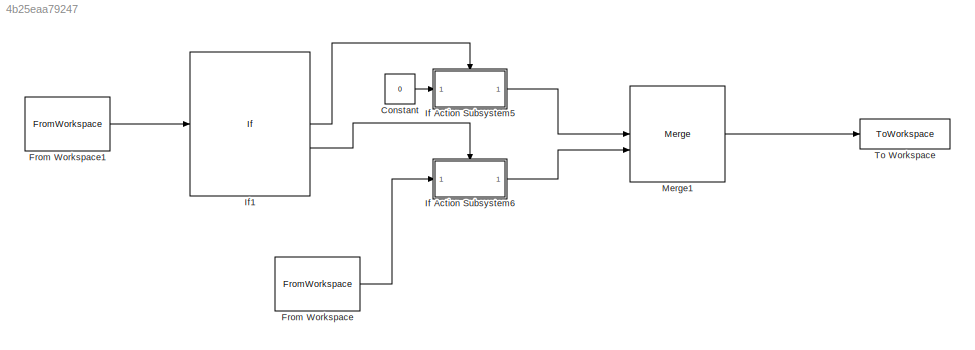
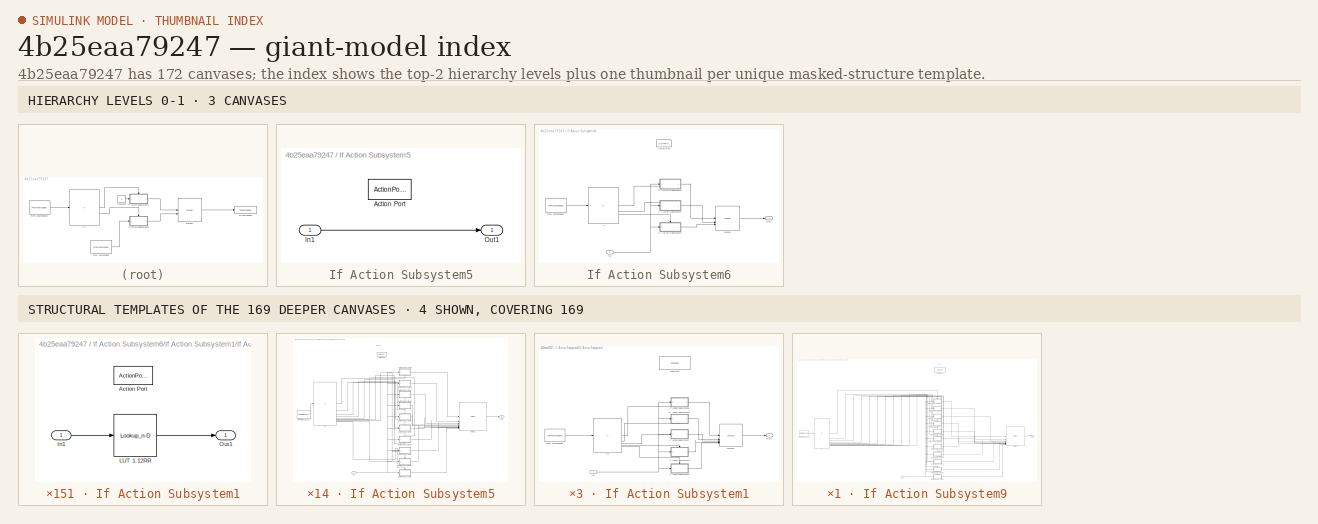
[diagram: thumbnail index - top-2 hierarchy levels (3 canvases) + 4 structural-template representatives of the remaining 169 canvases]
MODEL slx_4b25eaa79247
KIND model
CONFIG AbsTol = auto
CONFIG EnableMultiTasking = off
CONFIG FixedStep = Timegap
CONFIG MaxStep = auto
CONFIG MinStep = auto
CONFIG RelTol = 1e-3
CONFIG SampleTimeConstraint = Unconstrained
CONFIG SolverName = FixedStepAuto
CONFIG StartTime = 0
CONFIG StopTime = 10.1
WORKSPACE source: mxarray member
WORKSPACE T1_input = 1.34
BLOCK [Constant] Constant
  Value = 0
BLOCK [FromWorkspace] From Workspace
  Interpolate = off
  OutputAfterFinalValue = Setting to zero
  VariableName = SimInputT1
BLOCK [FromWorkspace] From Workspace1
  Interpolate = off
  OutputAfterFinalValue = Setting to zero
  VariableName = SimInputT1
BLOCK [SubSystem] If Action Subsystem5
  TreatAsAtomicUnit = on
BLOCK [ActionPort] If Action Subsystem5/Action Port
  ActionPortLabel = if(u1 == 0)
BLOCK [Inport] If Action Subsystem5/In1
BLOCK [Outport] If Action Subsystem5/Out1
BLOCK [SubSystem] If Action Subsystem6
  TreatAsAtomicUnit = on
BLOCK [ActionPort] If Action Subsystem6/Action Port
  ActionPortLabel = else
BLOCK [FromWorkspace] If Action Subsystem6/From Workspace1
  Interpolate = off
  OutputAfterFinalValue = Setting to zero
  VariableName = SimInputHR
BLOCK [If] If Action Subsystem6/If
  ElseIfExpressions = u1 >= 0.995
  IfExpression = u1 >= 1.495
BLOCK [SubSystem] If Action Subsystem6/If Action Subsystem1
  TreatAsAtomicUnit = on
BLOCK [ActionPort] If Action Subsystem6/If Action Subsystem1/Action Port
  ActionPortLabel = elseif(u1 >= 0.995)
BLOCK [FromWorkspace] If Action Subsystem6/If Action Subsystem1/From Workspace2
  Interpolate = off
  OutputAfterFinalValue = Setting to zero
  VariableName = SimInputHR
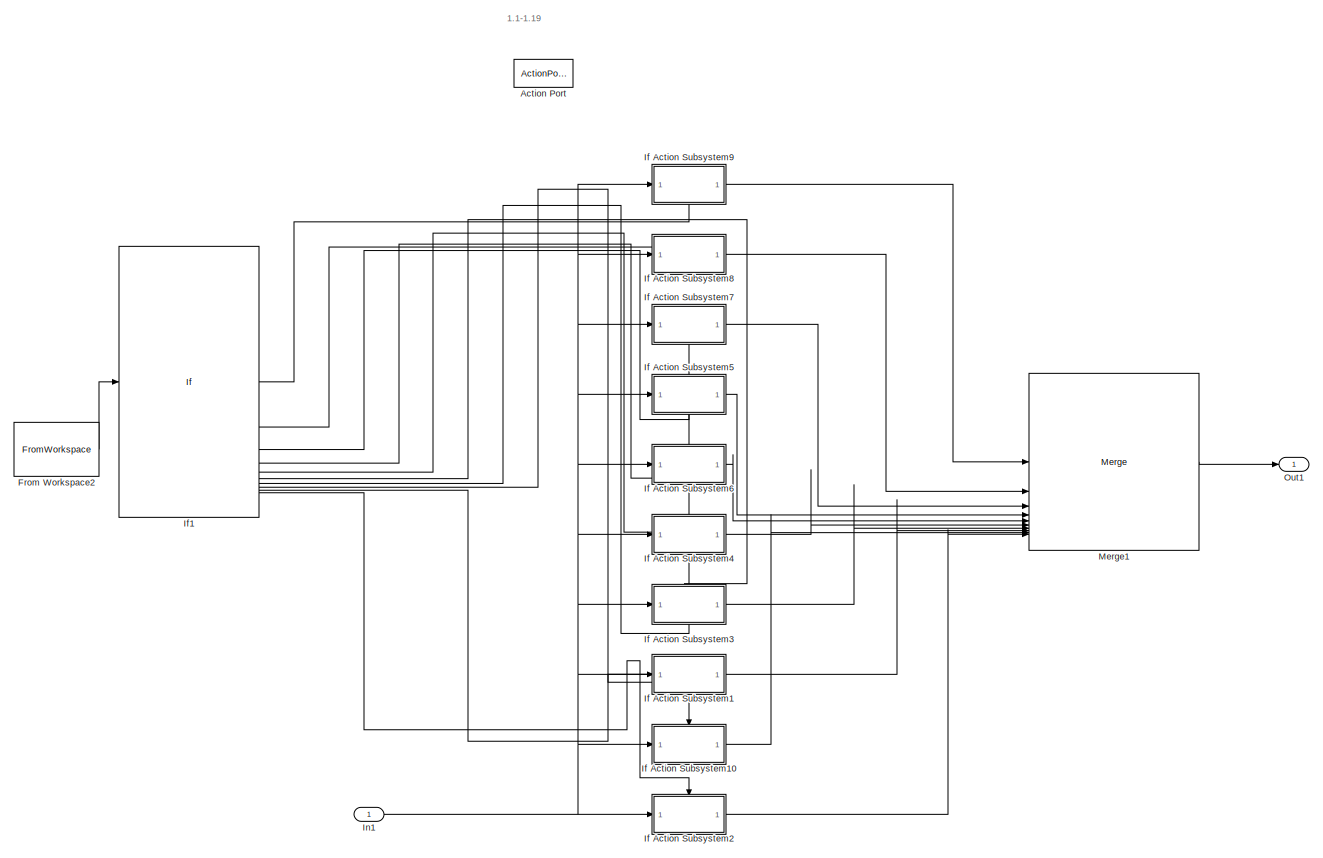
[diagram: If Action Subsystem6/If Action Subsystem1/If Action Subsystem5 - part 1/1, most of the canvas]
BLOCK [SubSystem] If Action Subsystem6/If Action Subsystem1/If Action Subsystem5
  TreatAsAtomicUnit = on
BLOCK [ActionPort] If Action Subsystem6/If Action Subsystem1/If Action Subsystem5/Action Port
  ActionPortLabel = elseif( u1 >= 1.095)
BLOCK [FromWorkspace] If Action Subsystem6/If Action Subsystem1/If Action Subsystem5/From Workspace2
  Interpolate = off
  OutputAfterFinalValue = Setting to zero
  VariableName = SimInputHR
BLOCK [SubSystem] If Action Subsystem6/If Action Subsystem1/If Action Subsystem5/If Action Subsystem1
  TreatAsAtomicUnit = on
BLOCK [ActionPort] If Action Subsystem6/If Action Subsystem1/If Action Subsystem5/If Action Subsystem1/Action Port
  ActionPortLabel = elseif( u1 >= 1.115)
BLOCK [Inport] If Action Subsystem6/If Action Subsystem1/If Action Subsystem5/If Action Subsystem1/In1
BLOCK [Lookup_n-D] If Action Subsystem6/If Action Subsystem1/If Action Subsystem5/If Action Subsystem1/LUT 1.12RR
  BreakpointsForDimension1 = [402.3432;510.8916;609.2833;707.7954;806.2198;904.5642;1002.848;1101.089;1199.296;1297.479;1395.643;1493.792;1591.929;1690.056;1788.173;1886.28;1984.374]
  InputPortMap = u0
  InternalRulePriority = Speed
  NumberOfTableDimensions = 1
  RndMeth = Simplest
  Table = [400;500;600;700;800;900;1000;1100;1200;1300;1400;1500;1600;1700;1800;1900;2000]
BLOCK [Outport] If Action Subsystem6/If Action Subsystem1/If Action Subsystem5/If Action Subsystem1/Out1
BLOCK [SubSystem] If Action Subsystem6/If Action Subsystem1/If Action Subsystem5/If Action Subsystem10
  TreatAsAtomicUnit = on
BLOCK [ActionPort] If Action Subsystem6/If Action Subsystem1/If Action Subsystem5/If Action Subsystem10/Action Port
  ActionPortLabel = elseif( u1 >= 1.105)
BLOCK [Inport] If Action Subsystem6/If Action Subsystem1/If Action Subsystem5/If Action Subsystem10/In1
BLOCK [Lookup_n-D] If Action Subsystem6/If Action Subsystem1/If Action Subsystem5/If Action Subsystem10/LUT 1.11RR
  BreakpointsForDimension1 = [402.4254;511.03;609.4791;708.0554;806.5484;904.9641;1003.322;1101.636;1199.919;1298.179;1396.419;1494.646;1592.86;1691.064;1789.259;1887.444;1985.614]
  InputPortMap = u0
  InternalRulePriority = Speed
  NumberOfTableDimensions = 1
  RndMeth = Simplest
  Table = [400;500;600;700;800;900;1000;1100;1200;1300;1400;1500;1600;1700;1800;1900;2000]
BLOCK [Outport] If Action Subsystem6/If Action Subsystem1/If Action Subsystem5/If Action Subsystem10/Out1
BLOCK [SubSystem] If Action Subsystem6/If Action Subsystem1/If Action Subsystem5/If Action Subsystem2
  TreatAsAtomicUnit = on
BLOCK [ActionPort] If Action Subsystem6/If Action Subsystem1/If Action Subsystem5/If Action Subsystem2/Action Port
  ActionPortLabel = else
BLOCK [Inport] If Action Subsystem6/If Action Subsystem1/If Action Subsystem5/If Action Subsystem2/In1
BLOCK [Lookup_n-D] If Action Subsystem6/If Action Subsystem1/If Action Subsystem5/If Action Subsystem2/LUT 1.10RR
  BreakpointsForDimension1 = [402.5094;511.172;609.6799;708.3222;806.8853;905.3738;1003.806;1102.197;1200.557;1298.894;1397.213;1495.518;1593.811;1692.095;1790.369;1888.633;1986.88]
  InputPortMap = u0
  InternalRulePriority = Speed
  NumberOfTableDimensions = 1
  RndMeth = Simplest
  Table = [400;500;600;700;800;900;1000;1100;1200;1300;1400;1500;1600;1700;1800;1900;2000]
BLOCK [Outport] If Action Subsystem6/If Action Subsystem1/If Action Subsystem5/If Action Subsystem2/Out1
BLOCK [SubSystem] If Action Subsystem6/If Action Subsystem1/If Action Subsystem5/If Action Subsystem3
  TreatAsAtomicUnit = on
BLOCK [ActionPort] If Action Subsystem6/If Action Subsystem1/If Action Subsystem5/If Action Subsystem3/Action Port
  ActionPortLabel = elseif( u1 >= 1.125)
BLOCK [Inport] If Action Subsystem6/If Action Subsystem1/If Action Subsystem5/If Action Subsystem3/In1
BLOCK [Lookup_n-D] If Action Subsystem6/If Action Subsystem1/If Action Subsystem5/If Action Subsystem3/LUT 1.13RR
  BreakpointsForDimension1 = [402.2628;510.7566;609.0925;707.5418;805.8992;904.1738;1002.386;1100.554;1198.687;1296.796;1394.885;1492.958;1591.019;1689.069;1787.11;1885.141;1983.16]
  InputPortMap = u0
  InternalRulePriority = Speed
  NumberOfTableDimensions = 1
  RndMeth = Simplest
  Table = [400;500;600;700;800;900;1000;1100;1200;1300;1400;1500;1600;1700;1800;1900;2000]
BLOCK [Outport] If Action Subsystem6/If Action Subsystem1/If Action Subsystem5/If Action Subsystem3/Out1
BLOCK [SubSystem] If Action Subsystem6/If Action Subsystem1/If Action Subsystem5/If Action Subsystem4
  TreatAsAtomicUnit = on
BLOCK [ActionPort] If Action Subsystem6/If Action Subsystem1/If Action Subsystem5/If Action Subsystem4/Action Port
  ActionPortLabel = elseif( u1 >= 1.135)
BLOCK [Inport] If Action Subsystem6/If Action Subsystem1/If Action Subsystem5/If Action Subsystem4/In1
BLOCK [Lookup_n-D] If Action Subsystem6/If Action Subsystem1/If Action Subsystem5/If Action Subsystem4/LUT 1.14RR
  BreakpointsForDimension1 = [402.1842;510.6248;608.9064;707.2944;805.5863;903.7926;1001.935;1100.031;1198.092;1296.127;1394.142;1492.142;1590.128;1688.104;1786.07;1884.026;1981.971]
  InputPortMap = u0
  InternalRulePriority = Speed
  NumberOfTableDimensions = 1
  RndMeth = Simplest
  Table = [400;500;600;700;800;900;1000;1100;1200;1300;1400;1500;1600;1700;1800;1900;2000]
BLOCK [Outport] If Action Subsystem6/If Action Subsystem1/If Action Subsystem5/If Action Subsystem4/Out1
BLOCK [SubSystem] If Action Subsystem6/If Action Subsystem1/If Action Subsystem5/If Action Subsystem5
  TreatAsAtomicUnit = on
BLOCK [ActionPort] If Action Subsystem6/If Action Subsystem1/If Action Subsystem5/If Action Subsystem5/Action Port
  ActionPortLabel = elseif( u1 >= 1.155)
BLOCK [Inport] If Action Subsystem6/If Action Subsystem1/If Action Subsystem5/If Action Subsystem5/In1
BLOCK [Lookup_n-D] If Action Subsystem6/If Action Subsystem1/If Action Subsystem5/If Action Subsystem5/LUT 1.16RR
  BreakpointsForDimension1 = [402.0318;510.3708;608.5479;706.8176;804.9828;903.0568;1001.063;1099.02;1196.941;1294.834;1392.706;1490.561;1588.403;1686.233;1784.054;1881.865;1979.665]
  InputPortMap = u0
  InternalRulePriority = Speed
  NumberOfTableDimensions = 1
  RndMeth = Simplest
  Table = [400;500;600;700;800;900;1000;1100;1200;1300;1400;1500;1600;1700;1800;1900;2000]
BLOCK [Outport] If Action Subsystem6/If Action Subsystem1/If Action Subsystem5/If Action Subsystem5/Out1
BLOCK [SubSystem] If Action Subsystem6/If Action Subsystem1/If Action Subsystem5/If Action Subsystem6
  TreatAsAtomicUnit = on
BLOCK [ActionPort] If Action Subsystem6/If Action Subsystem1/If Action Subsystem5/If Action Subsystem6/Action Port
  ActionPortLabel = elseif( u1 >= 1.145)
BLOCK [Inport] If Action Subsystem6/If Action Subsystem1/If Action Subsystem5/If Action Subsystem6/In1
BLOCK [Lookup_n-D] If Action Subsystem6/If Action Subsystem1/If Action Subsystem5/If Action Subsystem6/LUT 1.15RR
  BreakpointsForDimension1 = [402.1072;510.4963;608.725;707.0531;805.2809;903.4204;1001.494;1099.52;1197.51;1295.473;1393.416;1491.343;1589.256;1687.159;1785.051;1882.934;1980.806]
  InputPortMap = u0
  InternalRulePriority = Speed
  NumberOfTableDimensions = 1
  RndMeth = Simplest
  Table = [400;500;600;700;800;900;1000;1100;1200;1300;1400;1500;1600;1700;1800;1900;2000]
BLOCK [Outport] If Action Subsystem6/If Action Subsystem1/If Action Subsystem5/If Action Subsystem6/Out1
BLOCK [SubSystem] If Action Subsystem6/If Action Subsystem1/If Action Subsystem5/If Action Subsystem7
  TreatAsAtomicUnit = on
BLOCK [ActionPort] If Action Subsystem6/If Action Subsystem1/If Action Subsystem5/If Action Subsystem7/Action Port
  ActionPortLabel = elseif( u1 >= 1.165)
BLOCK [Inport] If Action Subsystem6/If Action Subsystem1/If Action Subsystem5/If Action Subsystem7/In1
BLOCK [Lookup_n-D] If Action Subsystem6/If Action Subsystem1/If Action Subsystem5/If Action Subsystem7/LUT 1.17RR
  BreakpointsForDimension1 = [401.9578;510.2483;608.3752;706.5878;804.6917;902.7017;1000.642;1098.532;1196.384;1294.208;1392.01;1489.796;1587.567;1685.327;1783.077;1880.817;1978.547]
  InputPortMap = u0
  InternalRulePriority = Speed
  NumberOfTableDimensions = 1
  RndMeth = Simplest
  Table = [400;500;600;700;800;900;1000;1100;1200;1300;1400;1500;1600;1700;1800;1900;2000]
BLOCK [Outport] If Action Subsystem6/If Action Subsystem1/If Action Subsystem5/If Action Subsystem7/Out1
BLOCK [SubSystem] If Action Subsystem6/If Action Subsystem1/If Action Subsystem5/If Action Subsystem8
  TreatAsAtomicUnit = on
BLOCK [ActionPort] If Action Subsystem6/If Action Subsystem1/If Action Subsystem5/If Action Subsystem8/Action Port
  ActionPortLabel = elseif(u1 >= 1.175)
BLOCK [Inport] If Action Subsystem6/If Action Subsystem1/If Action Subsystem5/If Action Subsystem8/In1
BLOCK [Lookup_n-D] If Action Subsystem6/If Action Subsystem1/If Action Subsystem5/If Action Subsystem8/LUT 1.18RR
  BreakpointsForDimension1 = [401.8854;510.1287;608.2066;706.3635;804.4074;902.3547;1000.231;1098.054;1195.84;1293.596;1391.33;1489.046;1586.749;1684.44;1782.12;1879.791;1977.452]
  InputPortMap = u0
  InternalRulePriority = Speed
  NumberOfTableDimensions = 1
  RndMeth = Simplest
  Table = [400;500;600;700;800;900;1000;1100;1200;1300;1400;1500;1600;1700;1800;1900;2000]
BLOCK [Outport] If Action Subsystem6/If Action Subsystem1/If Action Subsystem5/If Action Subsystem8/Out1
BLOCK [SubSystem] If Action Subsystem6/If Action Subsystem1/If Action Subsystem5/If Action Subsystem9
  TreatAsAtomicUnit = on
BLOCK [ActionPort] If Action Subsystem6/If Action Subsystem1/If Action Subsystem5/If Action Subsystem9/Action Port
  ActionPortLabel = if(u1 >= 1.185)
BLOCK [Inport] If Action Subsystem6/If Action Subsystem1/If Action Subsystem5/If Action Subsystem9/In1
BLOCK [Lookup_n-D] If Action Subsystem6/If Action Subsystem1/If Action Subsystem5/If Action Subsystem9/LUT 1.19RR
  BreakpointsForDimension1 = [401.8144;510.0117;608.042;706.1445;804.1298;902.0156;999.8281;1097.587;1195.307;1292.997;1390.664;1488.313;1585.948;1683.57;1781.183;1878.785;1976.378]
  InputPortMap = u0
  InternalRulePriority = Speed
  NumberOfTableDimensions = 1
  RndMeth = Simplest
  Table = [400;500;600;700;800;900;1000;1100;1200;1300;1400;1500;1600;1700;1800;1900;2000]
BLOCK [Outport] If Action Subsystem6/If Action Subsystem1/If Action Subsystem5/If Action Subsystem9/Out1
BLOCK [If] If Action Subsystem6/If Action Subsystem1/If Action Subsystem5/If1
  ElseIfExpressions = u1 >= 1.175, u1 >= 1.165, u1 >= 1.155, u1 >= 1.145, u1 >= 1.135, u1 >= 1.125, u1 >= 1.115, u1 >= 1.105
  IfExpression = u1 >= 1.185
BLOCK [Inport] If Action Subsystem6/If Action Subsystem1/If Action Subsystem5/In1
BLOCK [Merge] If Action Subsystem6/If Action Subsystem1/If Action Subsystem5/Merge1
  Inputs = 10
BLOCK [Outport] If Action Subsystem6/If Action Subsystem1/If Action Subsystem5/Out1
BLOCK [SubSystem] If Action Subsystem6/If Action Subsystem1/If Action Subsystem6
  TreatAsAtomicUnit = on
BLOCK [ActionPort] If Action Subsystem6/If Action Subsystem1/If Action Subsystem6/Action Port
  ActionPortLabel = else
BLOCK [FromWorkspace] If Action Subsystem6/If Action Subsystem1/If Action Subsystem6/From Workspace2
  Interpolate = off
  OutputAfterFinalValue = Setting to zero
  VariableName = SimInputHR
BLOCK [SubSystem] If Action Subsystem6/If Action Subsystem1/If Action Subsystem6/If Action Subsystem1
  TreatAsAtomicUnit = on
BLOCK [ActionPort] If Action Subsystem6/If Action Subsystem1/If Action Subsystem6/If Action Subsystem1/Action Port
  ActionPortLabel = elseif( u1 >= 1.015)
BLOCK [Inport] If Action Subsystem6/If Action Subsystem1/If Action Subsystem6/If Action Subsystem1/In1
BLOCK [Lookup_n-D] If Action Subsystem6/If Action Subsystem1/If Action Subsystem6/If Action Subsystem1/LUT 1.02RR
  BreakpointsForDimension1 = [403.2604;512.4553;611.496;710.7287;809.9161;909.0507;1008.144;1107.206;1206.244;1305.266;1404.274;1503.271;1602.26;1701.24;1800.21;1899.163;1998.054]
  InputPortMap = u0
  InternalRulePriority = Speed
  NumberOfTableDimensions = 1
  RndMeth = Simplest
  Table = [400;500;600;700;800;900;1000;1100;1200;1300;1400;1500;1600;1700;1800;1900;2000]
BLOCK [Outport] If Action Subsystem6/If Action Subsystem1/If Action Subsystem6/If Action Subsystem1/Out1
BLOCK [SubSystem] If Action Subsystem6/If Action Subsystem1/If Action Subsystem6/If Action Subsystem10
  TreatAsAtomicUnit = on
BLOCK [ActionPort] If Action Subsystem6/If Action Subsystem1/If Action Subsystem6/If Action Subsystem10/Action Port
  ActionPortLabel = elseif( u1 >= 1.005)
BLOCK [Inport] If Action Subsystem6/If Action Subsystem1/If Action Subsystem6/If Action Subsystem10/In1
BLOCK [Lookup_n-D] If Action Subsystem6/If Action Subsystem1/If Action Subsystem6/If Action Subsystem10/LUT 1.01RR
  BreakpointsForDimension1 = [403.3658;512.6369;611.7529;711.0682;810.3426;909.5667;1008.751;1107.905;1207.038;1306.153;1405.256;1504.349;1603.433;1702.509;1801.575;1900.621;1999.585]
  InputPortMap = u0
  InternalRulePriority = Speed
  NumberOfTableDimensions = 1
  RndMeth = Simplest
  Table = [400;500;600;700;800;900;1000;1100;1200;1300;1400;1500;1600;1700;1800;1900;2000]
BLOCK [Outport] If Action Subsystem6/If Action Subsystem1/If Action Subsystem6/If Action Subsystem10/Out1
BLOCK [SubSystem] If Action Subsystem6/If Action Subsystem1/If Action Subsystem6/If Action Subsystem2
  TreatAsAtomicUnit = on
BLOCK [ActionPort] If Action Subsystem6/If Action Subsystem1/If Action Subsystem6/If Action Subsystem2/Action Port
  ActionPortLabel = else
BLOCK [Inport] If Action Subsystem6/If Action Subsystem1/If Action Subsystem6/If Action Subsystem2/In1
BLOCK [Lookup_n-D] If Action Subsystem6/If Action Subsystem1/If Action Subsystem6/If Action Subsystem2/LUT 1.00RR
  BreakpointsForDimension1 = [403.4742;512.824;612.0175;711.4176;810.781;910.0968;1009.375;1108.624;1207.852;1307.064;1406.264;1505.454;1604.636;1703.811;1802.974;1902.114;2001.141]
  InputPortMap = u0
  InternalRulePriority = Speed
  NumberOfTableDimensions = 1
  RndMeth = Simplest
  Table = [400;500;600;700;800;900;1000;1100;1200;1300;1400;1500;1600;1700;1800;1900;2000]
BLOCK [Outport] If Action Subsystem6/If Action Subsystem1/If Action Subsystem6/If Action Subsystem2/Out1
BLOCK [SubSystem] If Action Subsystem6/If Action Subsystem1/If Action Subsystem6/If Action Subsystem3
  TreatAsAtomicUnit = on
BLOCK [ActionPort] If Action Subsystem6/If Action Subsystem1/If Action Subsystem6/If Action Subsystem3/Action Port
  ActionPortLabel = elseif( u1 >= 1.025)
BLOCK [Inport] If Action Subsystem6/If Action Subsystem1/If Action Subsystem6/If Action Subsystem3/In1
BLOCK [Lookup_n-D] If Action Subsystem6/If Action Subsystem1/If Action Subsystem6/If Action Subsystem3/LUT 1.03RR
  BreakpointsForDimension1 = [403.1578;512.2788;611.2464;710.3985;809.5013;908.5484;1007.552;1106.523;1205.471;1304.4;1403.315;1502.219;1601.114;1700.001;1798.878;1897.738;1996.552]
  InputPortMap = u0
  InternalRulePriority = Speed
  NumberOfTableDimensions = 1
  RndMeth = Simplest
  Table = [400;500;600;700;800;900;1000;1100;1200;1300;1400;1500;1600;1700;1800;1900;2000]
BLOCK [Outport] If Action Subsystem6/If Action Subsystem1/If Action Subsystem6/If Action Subsystem3/Out1
BLOCK [SubSystem] If Action Subsystem6/If Action Subsystem1/If Action Subsystem6/If Action Subsystem4
  TreatAsAtomicUnit = on
BLOCK [ActionPort] If Action Subsystem6/If Action Subsystem1/If Action Subsystem6/If Action Subsystem4/Action Port
  ActionPortLabel = elseif( u1 >= 1.035)
BLOCK [Inport] If Action Subsystem6/If Action Subsystem1/If Action Subsystem6/If Action Subsystem4/In1
BLOCK [Lookup_n-D] If Action Subsystem6/If Action Subsystem1/If Action Subsystem6/If Action Subsystem4/LUT 1.04RR
  BreakpointsForDimension1 = [403.058;512.1074;611.0037;710.0774;809.0975;908.0593;1006.976;1105.859;1204.716;1303.555;1402.38;1501.193;1599.996;1698.791;1797.577;1896.347;1995.079]
  InputPortMap = u0
  InternalRulePriority = Speed
  NumberOfTableDimensions = 1
  RndMeth = Simplest
  Table = [400;500;600;700;800;900;1000;1100;1200;1300;1400;1500;1600;1700;1800;1900;2000]
BLOCK [Outport] If Action Subsystem6/If Action Subsystem1/If Action Subsystem6/If Action Subsystem4/Out1
BLOCK [SubSystem] If Action Subsystem6/If Action Subsystem1/If Action Subsystem6/If Action Subsystem5
  TreatAsAtomicUnit = on
BLOCK [ActionPort] If Action Subsystem6/If Action Subsystem1/If Action Subsystem6/If Action Subsystem5/Action Port
  ActionPortLabel = elseif( u1 >= 1.055)
BLOCK [Inport] If Action Subsystem6/If Action Subsystem1/If Action Subsystem6/If Action Subsystem5/In1
BLOCK [Lookup_n-D] If Action Subsystem6/If Action Subsystem1/If Action Subsystem6/If Action Subsystem5/LUT 1.06RR
  BreakpointsForDimension1 = [402.866;511.7786;610.5383;709.461;808.3215;907.1183;1005.866;1104.578;1203.263;1301.927;1400.576;1499.212;1597.839;1696.456;1795.064;1893.659;1992.228]
  InputPortMap = u0
  InternalRulePriority = Speed
  NumberOfTableDimensions = 1
  RndMeth = Simplest
  Table = [400;500;600;700;800;900;1000;1100;1200;1300;1400;1500;1600;1700;1800;1900;2000]
BLOCK [Outport] If Action Subsystem6/If Action Subsystem1/If Action Subsystem6/If Action Subsystem5/Out1
BLOCK [SubSystem] If Action Subsystem6/If Action Subsystem1/If Action Subsystem6/If Action Subsystem6
  TreatAsAtomicUnit = on
BLOCK [ActionPort] If Action Subsystem6/If Action Subsystem1/If Action Subsystem6/If Action Subsystem6/Action Port
  ActionPortLabel = elseif( u1 >= 1.045)
BLOCK [Inport] If Action Subsystem6/If Action Subsystem1/If Action Subsystem6/If Action Subsystem6/In1
BLOCK [Lookup_n-D] If Action Subsystem6/If Action Subsystem1/If Action Subsystem6/If Action Subsystem6/LUT 1.05RR
  BreakpointsForDimension1 = [402.9608;511.9407;610.7678;709.765;808.7044;907.5827;1006.414;1105.21;1203.981;1302.731;1401.467;1500.191;1598.905;1697.61;1796.306;1894.988;1993.638]
  InputPortMap = u0
  InternalRulePriority = Speed
  NumberOfTableDimensions = 1
  RndMeth = Simplest
  Table = [400;500;600;700;800;900;1000;1100;1200;1300;1400;1500;1600;1700;1800;1900;2000]
BLOCK [Outport] If Action Subsystem6/If Action Subsystem1/If Action Subsystem6/If Action Subsystem6/Out1
BLOCK [SubSystem] If Action Subsystem6/If Action Subsystem1/If Action Subsystem6/If Action Subsystem7
  TreatAsAtomicUnit = on
BLOCK [ActionPort] If Action Subsystem6/If Action Subsystem1/If Action Subsystem6/If Action Subsystem7/Action Port
  ActionPortLabel = elseif( u1 >= 1.065)
BLOCK [Inport] If Action Subsystem6/If Action Subsystem1/If Action Subsystem6/If Action Subsystem7/In1
BLOCK [Lookup_n-D] If Action Subsystem6/If Action Subsystem1/If Action Subsystem6/If Action Subsystem7/LUT 1.07RR
  BreakpointsForDimension1 = [402.7736;511.6208;610.315;709.165;807.9485;906.6656;1005.332;1103.961;1202.562;1301.142;1399.706;1498.257;1596.797;1695.328;1793.85;1892.36;1990.847]
  InputPortMap = u0
  InternalRulePriority = Speed
  NumberOfTableDimensions = 1
  RndMeth = Simplest
  Table = [400;500;600;700;800;900;1000;1100;1200;1300;1400;1500;1600;1700;1800;1900;2000]
BLOCK [Outport] If Action Subsystem6/If Action Subsystem1/If Action Subsystem6/If Action Subsystem7/Out1
BLOCK [SubSystem] If Action Subsystem6/If Action Subsystem1/If Action Subsystem6/If Action Subsystem8
  TreatAsAtomicUnit = on
BLOCK [ActionPort] If Action Subsystem6/If Action Subsystem1/If Action Subsystem6/If Action Subsystem8/Action Port
  ActionPortLabel = elseif(u1 >= 1.075)
BLOCK [Inport] If Action Subsystem6/If Action Subsystem1/If Action Subsystem6/If Action Subsystem8/In1
BLOCK [Lookup_n-D] If Action Subsystem6/If Action Subsystem1/If Action Subsystem6/If Action Subsystem8/LUT 1.08RR
  BreakpointsForDimension1 = [402.6834;511.4673;610.0977;708.8767;807.585;906.2243;1004.811;1103.359;1201.878;1300.375;1398.855;1497.323;1595.779;1694.226;1792.664;1891.09;1989.496]
  InputPortMap = u0
  InternalRulePriority = Speed
  NumberOfTableDimensions = 1
  RndMeth = Simplest
  Table = [400;500;600;700;800;900;1000;1100;1200;1300;1400;1500;1600;1700;1800;1900;2000]
BLOCK [Outport] If Action Subsystem6/If Action Subsystem1/If Action Subsystem6/If Action Subsystem8/Out1
BLOCK [SubSystem] If Action Subsystem6/If Action Subsystem1/If Action Subsystem6/If Action Subsystem9
  TreatAsAtomicUnit = on
BLOCK [ActionPort] If Action Subsystem6/If Action Subsystem1/If Action Subsystem6/If Action Subsystem9/Action Port
  ActionPortLabel = if(u1 >= 1.085)
BLOCK [Inport] If Action Subsystem6/If Action Subsystem1/If Action Subsystem6/If Action Subsystem9/In1
BLOCK [Lookup_n-D] If Action Subsystem6/If Action Subsystem1/If Action Subsystem6/If Action Subsystem9/LUT 1.09RR
  BreakpointsForDimension1 = [402.5954;511.3177;609.886;708.5958;807.2308;905.7938;1004.302;1102.771;1201.21;1299.626;1398.025;1496.41;1594.784;1693.149;1791.504;1889.848;1988.174]
  InputPortMap = u0
  InternalRulePriority = Speed
  NumberOfTableDimensions = 1
  RndMeth = Simplest
  Table = [400;500;600;700;800;900;1000;1100;1200;1300;1400;1500;1600;1700;1800;1900;2000]
BLOCK [Outport] If Action Subsystem6/If Action Subsystem1/If Action Subsystem6/If Action Subsystem9/Out1
BLOCK [If] If Action Subsystem6/If Action Subsystem1/If Action Subsystem6/If1
  ElseIfExpressions = u1 >= 1.075, u1 >= 1.065, u1 >= 1.055, u1 >= 1.045, u1 >= 1.035, u1 >= 1.025, u1 >= 1.015, u1 >= 1.005
  IfExpression = u1 >= 1.085
BLOCK [Inport] If Action Subsystem6/If Action Subsystem1/If Action Subsystem6/In1
BLOCK [Merge] If Action Subsystem6/If Action Subsystem1/If Action Subsystem6/Merge1
  Inputs = 10
BLOCK [Outport] If Action Subsystem6/If Action Subsystem1/If Action Subsystem6/Out1
BLOCK [SubSystem] If Action Subsystem6/If Action Subsystem1/If Action Subsystem7
  TreatAsAtomicUnit = on
BLOCK [ActionPort] If Action Subsystem6/If Action Subsystem1/If Action Subsystem7/Action Port
  ActionPortLabel = elseif( u1 >= 1.195)
BLOCK [FromWorkspace] If Action Subsystem6/If Action Subsystem1/If Action Subsystem7/From Workspace2
  Interpolate = off
  OutputAfterFinalValue = Setting to zero
  VariableName = SimInputHR
BLOCK [SubSystem] If Action Subsystem6/If Action Subsystem1/If Action Subsystem7/If Action Subsystem1
  TreatAsAtomicUnit = on
BLOCK [ActionPort] If Action Subsystem6/If Action Subsystem1/If Action Subsystem7/If Action Subsystem1/Action Port
  ActionPortLabel = elseif( u1 >= 1.215)
BLOCK [Inport] If Action Subsystem6/If Action Subsystem1/If Action Subsystem7/If Action Subsystem1/In1
BLOCK [Lookup_n-D] If Action Subsystem6/If Action Subsystem1/If Action Subsystem7/If Action Subsystem1/LUT 1.22RR
  BreakpointsForDimension1 = [401.6092;509.6767;607.5712;705.5178;803.3346;901.0436;998.6735;1096.246;1193.776;1291.274;1388.747;1486.201;1583.64;1681.066;1778.481;1875.887;1973.283]
  InputPortMap = u0
  InternalRulePriority = Speed
  NumberOfTableDimensions = 1
  RndMeth = Simplest
  Table = [400;500;600;700;800;900;1000;1100;1200;1300;1400;1500;1600;1700;1800;1900;2000]
BLOCK [Outport] If Action Subsystem6/If Action Subsystem1/If Action Subsystem7/If Action Subsystem1/Out1
BLOCK [SubSystem] If Action Subsystem6/If Action Subsystem1/If Action Subsystem7/If Action Subsystem10
  TreatAsAtomicUnit = on
BLOCK [ActionPort] If Action Subsystem6/If Action Subsystem1/If Action Subsystem7/If Action Subsystem10/Action Port
  ActionPortLabel = elseif( u1 >= 1.205)
BLOCK [Inport] If Action Subsystem6/If Action Subsystem1/If Action Subsystem7/If Action Subsystem10/In1
BLOCK [Lookup_n-D] If Action Subsystem6/If Action Subsystem1/If Action Subsystem7/If Action Subsystem10/LUT 1.21RR
  BreakpointsForDimension1 = [401.6763;509.7858;607.7244;705.7218;803.5935;901.3603;999.0498;1096.683;1194.275;1291.836;1389.373;1486.891;1584.394;1681.884;1779.364;1876.834;1974.294]
  InputPortMap = u0
  InternalRulePriority = Speed
  NumberOfTableDimensions = 1
  RndMeth = Simplest
  Table = [400;500;600;700;800;900;1000;1100;1200;1300;1400;1500;1600;1700;1800;1900;2000]
BLOCK [Outport] If Action Subsystem6/If Action Subsystem1/If Action Subsystem7/If Action Subsystem10/Out1
BLOCK [SubSystem] If Action Subsystem6/If Action Subsystem1/If Action Subsystem7/If Action Subsystem2
  TreatAsAtomicUnit = on
BLOCK [ActionPort] If Action Subsystem6/If Action Subsystem1/If Action Subsystem7/If Action Subsystem2/Action Port
  ActionPortLabel = else
BLOCK [Inport] If Action Subsystem6/If Action Subsystem1/If Action Subsystem7/If Action Subsystem2/In1
BLOCK [Lookup_n-D] If Action Subsystem6/If Action Subsystem1/If Action Subsystem7/If Action Subsystem2/LUT 1.20RR
  BreakpointsForDimension1 = [401.7447;509.8975;607.8813;705.9306;803.8585;901.6842;999.4346;1097.13;1194.785;1292.41;1390.012;1487.594;1585.163;1682.719;1780.264;1877.8;1975.326]
  InputPortMap = u0
  InternalRulePriority = Speed
  NumberOfTableDimensions = 1
  RndMeth = Simplest
  Table = [400;500;600;700;800;900;1000;1100;1200;1300;1400;1500;1600;1700;1800;1900;2000]
BLOCK [Outport] If Action Subsystem6/If Action Subsystem1/If Action Subsystem7/If Action Subsystem2/Out1
BLOCK [SubSystem] If Action Subsystem6/If Action Subsystem1/If Action Subsystem7/If Action Subsystem3
  TreatAsAtomicUnit = on
BLOCK [ActionPort] If Action Subsystem6/If Action Subsystem1/If Action Subsystem7/If Action Subsystem3/Action Port
  ActionPortLabel = elseif( u1 >= 1.225)
BLOCK [Inport] If Action Subsystem6/If Action Subsystem1/If Action Subsystem7/If Action Subsystem3/In1
BLOCK [Lookup_n-D] If Action Subsystem6/If Action Subsystem1/If Action Subsystem7/If Action Subsystem3/LUT 1.23RR
  BreakpointsForDimension1 = [401.5433;509.5699;607.4215;705.3185;803.0815;900.7339;998.3054;1095.818;1193.287;1290.723;1388.135;1485.526;1582.902;1680.265;1777.616;1874.958;1972.291]
  InputPortMap = u0
  InternalRulePriority = Speed
  NumberOfTableDimensions = 1
  RndMeth = Simplest
  Table = [400;500;600;700;800;900;1000;1100;1200;1300;1400;1500;1600;1700;1800;1900;2000]
BLOCK [Outport] If Action Subsystem6/If Action Subsystem1/If Action Subsystem7/If Action Subsystem3/Out1
BLOCK [SubSystem] If Action Subsystem6/If Action Subsystem1/If Action Subsystem7/If Action Subsystem4
  TreatAsAtomicUnit = on
BLOCK [ActionPort] If Action Subsystem6/If Action Subsystem1/If Action Subsystem7/If Action Subsystem4/Action Port
  ActionPortLabel = elseif( u1 >= 1.235)
BLOCK [Inport] If Action Subsystem6/If Action Subsystem1/If Action Subsystem7/If Action Subsystem4/In1
BLOCK [Lookup_n-D] If Action Subsystem6/If Action Subsystem1/If Action Subsystem7/If Action Subsystem4/LUT 1.24RR
  BreakpointsForDimension1 = [401.4785;509.4655;607.2752;705.1238;802.8342;900.4312;997.9452;1095.399;1192.808;1290.184;1387.534;1484.864;1582.178;1679.479;1776.768;1874.048;1971.318]
  InputPortMap = u0
  InternalRulePriority = Speed
  NumberOfTableDimensions = 1
  RndMeth = Simplest
  Table = [400;500;600;700;800;900;1000;1100;1200;1300;1400;1500;1600;1700;1800;1900;2000]
BLOCK [Outport] If Action Subsystem6/If Action Subsystem1/If Action Subsystem7/If Action Subsystem4/Out1
BLOCK [SubSystem] If Action Subsystem6/If Action Subsystem1/If Action Subsystem7/If Action Subsystem5
  TreatAsAtomicUnit = on
BLOCK [ActionPort] If Action Subsystem6/If Action Subsystem1/If Action Subsystem7/If Action Subsystem5/Action Port
  ActionPortLabel = elseif( u1 >= 1.255)
BLOCK [Inport] If Action Subsystem6/If Action Subsystem1/If Action Subsystem7/If Action Subsystem5/In1
BLOCK [Lookup_n-D] If Action Subsystem6/If Action Subsystem1/If Action Subsystem7/If Action Subsystem5/LUT 1.26RR
  BreakpointsForDimension1 = [401.3524;509.2634;606.9926;704.7476;802.3561;899.8455;997.2481;1094.588;1191.881;1289.139;1386.37;1483.58;1580.774;1677.953;1775.121;1872.279;1969.428]
  InputPortMap = u0
  InternalRulePriority = Speed
  NumberOfTableDimensions = 1
  RndMeth = Simplest
  Table = [400;500;600;700;800;900;1000;1100;1200;1300;1400;1500;1600;1700;1800;1900;2000]
BLOCK [Outport] If Action Subsystem6/If Action Subsystem1/If Action Subsystem7/If Action Subsystem5/Out1
BLOCK [SubSystem] If Action Subsystem6/If Action Subsystem1/If Action Subsystem7/If Action Subsystem6
  TreatAsAtomicUnit = on
BLOCK [ActionPort] If Action Subsystem6/If Action Subsystem1/If Action Subsystem7/If Action Subsystem6/Action Port
  ActionPortLabel = elseif( u1 >= 1.245)
BLOCK [Inport] If Action Subsystem6/If Action Subsystem1/If Action Subsystem7/If Action Subsystem6/In1
BLOCK [Lookup_n-D] If Action Subsystem6/If Action Subsystem1/If Action Subsystem7/If Action Subsystem6/LUT 1.25RR
  BreakpointsForDimension1 = [401.4149;509.3633;607.1323;704.9335;802.5924;900.1351;997.5929;1094.989;1192.34;1289.656;1386.946;1484.216;1581.469;1678.709;1775.937;1873.155;1970.364]
  InputPortMap = u0
  InternalRulePriority = Speed
  NumberOfTableDimensions = 1
  RndMeth = Simplest
  Table = [400;500;600;700;800;900;1000;1100;1200;1300;1400;1500;1600;1700;1800;1900;2000]
BLOCK [Outport] If Action Subsystem6/If Action Subsystem1/If Action Subsystem7/If Action Subsystem6/Out1
BLOCK [SubSystem] If Action Subsystem6/If Action Subsystem1/If Action Subsystem7/If Action Subsystem7
  TreatAsAtomicUnit = on
BLOCK [ActionPort] If Action Subsystem6/If Action Subsystem1/If Action Subsystem7/If Action Subsystem7/Action Port
  ActionPortLabel = elseif( u1 >= 1.265)
BLOCK [Inport] If Action Subsystem6/If Action Subsystem1/If Action Subsystem7/If Action Subsystem7/In1
BLOCK [Lookup_n-D] If Action Subsystem6/If Action Subsystem1/If Action Subsystem7/If Action Subsystem7/LUT 1.27RR
  BreakpointsForDimension1 = [401.291;509.1656;606.856;704.5658;802.125;899.5622;996.9107;1094.195;1191.431;1288.632;1385.806;1482.957;1580.092;1677.213;1774.322;1871.42;1968.51]
  InputPortMap = u0
  InternalRulePriority = Speed
  NumberOfTableDimensions = 1
  RndMeth = Simplest
  Table = [400;500;600;700;800;900;1000;1100;1200;1300;1400;1500;1600;1700;1800;1900;2000]
BLOCK [Outport] If Action Subsystem6/If Action Subsystem1/If Action Subsystem7/If Action Subsystem7/Out1
BLOCK [SubSystem] If Action Subsystem6/If Action Subsystem1/If Action Subsystem7/If Action Subsystem8
  TreatAsAtomicUnit = on
BLOCK [ActionPort] If Action Subsystem6/If Action Subsystem1/If Action Subsystem7/If Action Subsystem8/Action Port
  ActionPortLabel = elseif(u1 >= 1.275)
BLOCK [Inport] If Action Subsystem6/If Action Subsystem1/If Action Subsystem7/If Action Subsystem8/In1
BLOCK [Lookup_n-D] If Action Subsystem6/If Action Subsystem1/If Action Subsystem7/If Action Subsystem8/LUT 1.28RR
  BreakpointsForDimension1 = [401.2306;509.0698;606.7226;704.3882;801.899;899.2851;996.5805;1093.81;1190.991;1288.136;1385.252;1482.347;1579.424;1676.486;1773.537;1870.577;1967.608]
  InputPortMap = u0
  InternalRulePriority = Speed
  NumberOfTableDimensions = 1
  RndMeth = Simplest
  Table = [400;500;600;700;800;900;1000;1100;1200;1300;1400;1500;1600;1700;1800;1900;2000]
BLOCK [Outport] If Action Subsystem6/If Action Subsystem1/If Action Subsystem7/If Action Subsystem8/Out1
BLOCK [SubSystem] If Action Subsystem6/If Action Subsystem1/If Action Subsystem7/If Action Subsystem9
  TreatAsAtomicUnit = on
BLOCK [ActionPort] If Action Subsystem6/If Action Subsystem1/If Action Subsystem7/If Action Subsystem9/Action Port
  ActionPortLabel = if(u1 >= 1.285)
BLOCK [Inport] If Action Subsystem6/If Action Subsystem1/If Action Subsystem7/If Action Subsystem9/In1
BLOCK [Lookup_n-D] If Action Subsystem6/If Action Subsystem1/If Action Subsystem7/If Action Subsystem9/LUT 1.29RR
  BreakpointsForDimension1 = [401.1711;508.9761;606.5921;704.2145;801.678;899.014;996.2573;1093.433;1190.56;1287.649;1384.71;1481.748;1578.768;1675.774;1772.767;1869.751;1966.724]
  InputPortMap = u0
  InternalRulePriority = Speed
  NumberOfTableDimensions = 1
  RndMeth = Simplest
  Table = [400;500;600;700;800;900;1000;1100;1200;1300;1400;1500;1600;1700;1800;1900;2000]
BLOCK [Outport] If Action Subsystem6/If Action Subsystem1/If Action Subsystem7/If Action Subsystem9/Out1
BLOCK [If] If Action Subsystem6/If Action Subsystem1/If Action Subsystem7/If1
  ElseIfExpressions = u1 >= 1.275, u1 >= 1.265, u1 >= 1.255, u1 >= 1.245, u1 >= 1.235, u1 >= 1.225, u1 >= 1.215, u1 >= 1.205
  IfExpression = u1 >= 1.285
BLOCK [Inport] If Action Subsystem6/If Action Subsystem1/If Action Subsystem7/In2
BLOCK [Merge] If Action Subsystem6/If Action Subsystem1/If Action Subsystem7/Merge1
  Inputs = 10
BLOCK [Outport] If Action Subsystem6/If Action Subsystem1/If Action Subsystem7/Out2
BLOCK [SubSystem] If Action Subsystem6/If Action Subsystem1/If Action Subsystem8
  TreatAsAtomicUnit = on
BLOCK [ActionPort] If Action Subsystem6/If Action Subsystem1/If Action Subsystem8/Action Port
  ActionPortLabel = elseif(u1 >= 1.295)
BLOCK [FromWorkspace] If Action Subsystem6/If Action Subsystem1/If Action Subsystem8/From Workspace2
  Interpolate = off
  OutputAfterFinalValue = Setting to zero
  VariableName = SimInputHR
BLOCK [SubSystem] If Action Subsystem6/If Action Subsystem1/If Action Subsystem8/If Action Subsystem1
  TreatAsAtomicUnit = on
BLOCK [ActionPort] If Action Subsystem6/If Action Subsystem1/If Action Subsystem8/If Action Subsystem1/Action Port
  ActionPortLabel = elseif( u1 >= 1.315)
BLOCK [Inport] If Action Subsystem6/If Action Subsystem1/If Action Subsystem8/If Action Subsystem1/In1
BLOCK [Lookup_n-D] If Action Subsystem6/If Action Subsystem1/If Action Subsystem8/If Action Subsystem1/LUT 1.32RR
  BreakpointsForDimension1 = [400.9985;508.7063;606.2176;703.7164;801.0438;898.2352;995.328;1092.349;1189.318;1286.247;1383.146;1480.021;1576.876;1673.717;1770.544;1867.361;1964.168]
  InputPortMap = u0
  InternalRulePriority = Speed
  NumberOfTableDimensions = 1
  RndMeth = Simplest
  Table = [400;500;600;700;800;900;1000;1100;1200;1300;1400;1500;1600;1700;1800;1900;2000]
BLOCK [Outport] If Action Subsystem6/If Action Subsystem1/If Action Subsystem8/If Action Subsystem1/Out1
BLOCK [SubSystem] If Action Subsystem6/If Action Subsystem1/If Action Subsystem8/If Action Subsystem10
  TreatAsAtomicUnit = on
BLOCK [ActionPort] If Action Subsystem6/If Action Subsystem1/If Action Subsystem8/If Action Subsystem10/Action Port
  ActionPortLabel = elseif( u1 >= 1.305)
BLOCK [Inport] If Action Subsystem6/If Action Subsystem1/If Action Subsystem8/If Action Subsystem10/In1
BLOCK [Lookup_n-D] If Action Subsystem6/If Action Subsystem1/If Action Subsystem8/If Action Subsystem10/LUT 1.31RR
  BreakpointsForDimension1 = [401.0551;508.7943;606.3397;703.8787;801.2505;898.4892;995.6313;1092.703;1189.724;1286.705;1383.657;1480.585;1577.495;1674.389;1771.272;1868.143;1965.004]
  InputPortMap = u0
  InternalRulePriority = Speed
  NumberOfTableDimensions = 1
  RndMeth = Simplest
  Table = [400;500;600;700;800;900;1000;1100;1200;1300;1400;1500;1600;1700;1800;1900;2000]
BLOCK [Outport] If Action Subsystem6/If Action Subsystem1/If Action Subsystem8/If Action Subsystem10/Out1
BLOCK [SubSystem] If Action Subsystem6/If Action Subsystem1/If Action Subsystem8/If Action Subsystem2
  TreatAsAtomicUnit = on
BLOCK [ActionPort] If Action Subsystem6/If Action Subsystem1/If Action Subsystem8/If Action Subsystem2/Action Port
  ActionPortLabel = else
BLOCK [Inport] If Action Subsystem6/If Action Subsystem1/If Action Subsystem8/If Action Subsystem2/In1
BLOCK [Lookup_n-D] If Action Subsystem6/If Action Subsystem1/If Action Subsystem8/If Action Subsystem2/LUT 1.30RR
  BreakpointsForDimension1 = [401.1126;508.8843;606.4645;704.0447;801.4619;898.7488;995.941;1093.065;1190.137;1287.172;1384.178;1481.161;1578.125;1675.075;1772.012;1868.939;1965.856]
  InputPortMap = u0
  InternalRulePriority = Speed
  NumberOfTableDimensions = 1
  RndMeth = Simplest
  Table = [400;500;600;700;800;900;1000;1100;1200;1300;1400;1500;1600;1700;1800;1900;2000]
BLOCK [Outport] If Action Subsystem6/If Action Subsystem1/If Action Subsystem8/If Action Subsystem2/Out1
BLOCK [SubSystem] If Action Subsystem6/If Action Subsystem1/If Action Subsystem8/If Action Subsystem3
  TreatAsAtomicUnit = on
BLOCK [ActionPort] If Action Subsystem6/If Action Subsystem1/If Action Subsystem8/If Action Subsystem3/Action Port
  ActionPortLabel = elseif( u1 >= 1.325)
BLOCK [Inport] If Action Subsystem6/If Action Subsystem1/If Action Subsystem8/If Action Subsystem3/In1
BLOCK [Lookup_n-D] If Action Subsystem6/If Action Subsystem1/If Action Subsystem8/If Action Subsystem3/LUT 1.33RR
  BreakpointsForDimension1 = [400.9427;508.62;606.0983;703.5577;800.8415;897.9866;995.0311;1092.003;1188.921;1285.798;1382.645;1479.467;1576.27;1673.057;1769.831;1866.594;1963.347]
  InputPortMap = u0
  InternalRulePriority = Speed
  NumberOfTableDimensions = 1
  RndMeth = Simplest
  Table = [400;500;600;700;800;900;1000;1100;1200;1300;1400;1500;1600;1700;1800;1900;2000]
BLOCK [Outport] If Action Subsystem6/If Action Subsystem1/If Action Subsystem8/If Action Subsystem3/Out1
BLOCK [SubSystem] If Action Subsystem6/If Action Subsystem1/If Action Subsystem8/If Action Subsystem4
  TreatAsAtomicUnit = on
BLOCK [ActionPort] If Action Subsystem6/If Action Subsystem1/If Action Subsystem8/If Action Subsystem4/Action Port
  ActionPortLabel = elseif( u1 >= 1.335)
BLOCK [Inport] If Action Subsystem6/If Action Subsystem1/If Action Subsystem8/If Action Subsystem4/In1
BLOCK [Lookup_n-D] If Action Subsystem6/If Action Subsystem1/If Action Subsystem8/If Action Subsystem4/LUT 1.34RR
  BreakpointsForDimension1 = [400.8878;508.5354;605.9815;703.4024;800.6436;897.7433;994.7404;1091.663;1188.531;1285.358;1382.153;1478.924;1575.674;1672.409;1769.131;1865.841;1962.541]
  InputPortMap = u0
  InternalRulePriority = Speed
  NumberOfTableDimensions = 1
  RndMeth = Simplest
  Table = [400;500;600;700;800;900;1000;1100;1200;1300;1400;1500;1600;1700;1800;1900;2000]
BLOCK [Outport] If Action Subsystem6/If Action Subsystem1/If Action Subsystem8/If Action Subsystem4/Out1
BLOCK [SubSystem] If Action Subsystem6/If Action Subsystem1/If Action Subsystem8/If Action Subsystem5
  TreatAsAtomicUnit = on
BLOCK [ActionPort] If Action Subsystem6/If Action Subsystem1/If Action Subsystem8/If Action Subsystem5/Action Port
  ActionPortLabel = elseif( u1 >= 1.355)
BLOCK [Inport] If Action Subsystem6/If Action Subsystem1/If Action Subsystem8/If Action Subsystem5/In1
BLOCK [Lookup_n-D] If Action Subsystem6/If Action Subsystem1/If Action Subsystem8/If Action Subsystem5/LUT 1.36RR
  BreakpointsForDimension1 = [400.7805;508.3714;605.7554;703.102;800.2606;897.272;994.1769;1091.005;1187.775;1284.503;1381.198;1477.868;1574.517;1671.149;1767.768;1864.375;1960.972]
  InputPortMap = u0
  InternalRulePriority = Speed
  NumberOfTableDimensions = 1
  RndMeth = Simplest
  Table = [400;500;600;700;800;900;1000;1100;1200;1300;1400;1500;1600;1700;1800;1900;2000]
BLOCK [Outport] If Action Subsystem6/If Action Subsystem1/If Action Subsystem8/If Action Subsystem5/Out1
BLOCK [SubSystem] If Action Subsystem6/If Action Subsystem1/If Action Subsystem8/If Action Subsystem6
  TreatAsAtomicUnit = on
BLOCK [ActionPort] If Action Subsystem6/If Action Subsystem1/If Action Subsystem8/If Action Subsystem6/Action Port
  ActionPortLabel = elseif( u1 >= 1.345)
BLOCK [Inport] If Action Subsystem6/If Action Subsystem1/If Action Subsystem8/If Action Subsystem6/In1
BLOCK [Lookup_n-D] If Action Subsystem6/If Action Subsystem1/If Action Subsystem8/If Action Subsystem6/LUT 1.35RR
  BreakpointsForDimension1 = [400.8337;508.4526;605.8672;703.2505;800.4501;897.5052;994.4557;1091.331;1188.15;1284.926;1381.671;1478.391;1575.09;1671.773;1768.443;1865.101;1961.75]
  InputPortMap = u0
  InternalRulePriority = Speed
  NumberOfTableDimensions = 1
  RndMeth = Simplest
  Table = [400;500;600;700;800;900;1000;1100;1200;1300;1400;1500;1600;1700;1800;1900;2000]
BLOCK [Outport] If Action Subsystem6/If Action Subsystem1/If Action Subsystem8/If Action Subsystem6/Out1
BLOCK [SubSystem] If Action Subsystem6/If Action Subsystem1/If Action Subsystem8/If Action Subsystem7
  TreatAsAtomicUnit = on
BLOCK [ActionPort] If Action Subsystem6/If Action Subsystem1/If Action Subsystem8/If Action Subsystem7/Action Port
  ActionPortLabel = elseif( u1 >= 1.365)
BLOCK [Inport] If Action Subsystem6/If Action Subsystem1/If Action Subsystem8/If Action Subsystem7/In1
BLOCK [Lookup_n-D] If Action Subsystem6/If Action Subsystem1/If Action Subsystem8/If Action Subsystem7/LUT 1.37RR
  BreakpointsForDimension1 = [400.728;508.2918;605.646;702.9566;800.0753;897.0438;993.9039;1090.685;1187.409;1284.088;1380.735;1477.355;1573.954;1670.537;1767.105;1863.662;1960.209]
  InputPortMap = u0
  InternalRulePriority = Speed
  NumberOfTableDimensions = 1
  RndMeth = Simplest
  Table = [400;500;600;700;800;900;1000;1100;1200;1300;1400;1500;1600;1700;1800;1900;2000]
BLOCK [Outport] If Action Subsystem6/If Action Subsystem1/If Action Subsystem8/If Action Subsystem7/Out1
BLOCK [SubSystem] If Action Subsystem6/If Action Subsystem1/If Action Subsystem8/If Action Subsystem8
  TreatAsAtomicUnit = on
BLOCK [ActionPort] If Action Subsystem6/If Action Subsystem1/If Action Subsystem8/If Action Subsystem8/Action Port
  ActionPortLabel = elseif(u1 >= 1.375)
BLOCK [Inport] If Action Subsystem6/If Action Subsystem1/If Action Subsystem8/If Action Subsystem8/In1
BLOCK [Lookup_n-D] If Action Subsystem6/If Action Subsystem1/If Action Subsystem8/If Action Subsystem8/LUT 1.38RR
  BreakpointsForDimension1 = [400.6763;508.2137;605.539;702.8145;799.8939;896.8204;993.6364;1090.372;1187.049;1283.682;1380.28;1476.852;1573.402;1669.936;1766.455;1862.962;1959.459]
  InputPortMap = u0
  InternalRulePriority = Speed
  NumberOfTableDimensions = 1
  RndMeth = Simplest
  Table = [400;500;600;700;800;900;1000;1100;1200;1300;1400;1500;1600;1700;1800;1900;2000]
BLOCK [Outport] If Action Subsystem6/If Action Subsystem1/If Action Subsystem8/If Action Subsystem8/Out1
BLOCK [SubSystem] If Action Subsystem6/If Action Subsystem1/If Action Subsystem8/If Action Subsystem9
  TreatAsAtomicUnit = on
BLOCK [ActionPort] If Action Subsystem6/If Action Subsystem1/If Action Subsystem8/If Action Subsystem9/Action Port
  ActionPortLabel = if(u1 >= 1.385)
BLOCK [Inport] If Action Subsystem6/If Action Subsystem1/If Action Subsystem8/If Action Subsystem9/In1
BLOCK [Lookup_n-D] If Action Subsystem6/If Action Subsystem1/If Action Subsystem8/If Action Subsystem9/LUT 1.39RR
  BreakpointsForDimension1 = [400.6253;508.1372;605.4342;702.6754;799.7164;896.6017;993.3744;1090.066;1186.697;1283.283;1379.834;1476.358;1572.86;1669.345;1765.816;1862.275;1958.723]
  InputPortMap = u0
  InternalRulePriority = Speed
  NumberOfTableDimensions = 1
  RndMeth = Simplest
  Table = [400;500;600;700;800;900;1000;1100;1200;1300;1400;1500;1600;1700;1800;1900;2000]
BLOCK [Outport] If Action Subsystem6/If Action Subsystem1/If Action Subsystem8/If Action Subsystem9/Out1
BLOCK [If] If Action Subsystem6/If Action Subsystem1/If Action Subsystem8/If1
  ElseIfExpressions = u1 >= 1.375, u1 >= 1.365, u1 >= 1.355, u1 >= 1.345, u1 >= 1.335, u1 >= 1.325, u1 >= 1.315, u1 >= 1.305
  IfExpression = u1 >= 1.385
BLOCK [Inport] If Action Subsystem6/If Action Subsystem1/If Action Subsystem8/In1
BLOCK [Merge] If Action Subsystem6/If Action Subsystem1/If Action Subsystem8/Merge1
  Inputs = 10
BLOCK [Outport] If Action Subsystem6/If Action Subsystem1/If Action Subsystem8/Out1
BLOCK [SubSystem] If Action Subsystem6/If Action Subsystem1/If Action Subsystem9
  TreatAsAtomicUnit = on
BLOCK [ActionPort] If Action Subsystem6/If Action Subsystem1/If Action Subsystem9/Action Port
  ActionPortLabel = if(u1 >= 1.395)
BLOCK [FromWorkspace] If Action Subsystem6/If Action Subsystem1/If Action Subsystem9/From Workspace2
  Interpolate = off
  OutputAfterFinalValue = Setting to zero
  VariableName = SimInputHR
BLOCK [SubSystem] If Action Subsystem6/If Action Subsystem1/If Action Subsystem9/If Action Subsystem1
  TreatAsAtomicUnit = on
BLOCK [ActionPort] If Action Subsystem6/If Action Subsystem1/If Action Subsystem9/If Action Subsystem1/Action Port
  ActionPortLabel = elseif( u1 >= 1.415)
BLOCK [Inport] If Action Subsystem6/If Action Subsystem1/If Action Subsystem9/If Action Subsystem1/In1
BLOCK [Lookup_n-D] If Action Subsystem6/If Action Subsystem1/If Action Subsystem9/If Action Subsystem1/LUT 1.42RR
  BreakpointsForDimension1 = [400.4767;507.9164;605.133;702.2758;799.2063;895.9725;992.6201;1089.182;1185.68;1282.131;1378.545;1474.931;1571.293;1667.638;1763.967;1860.284;1956.59]
  InputPortMap = u0
  InternalRulePriority = Speed
  NumberOfTableDimensions = 1
  RndMeth = Simplest
  Table = [400;500;600;700;800;900;1000;1100;1200;1300;1400;1500;1600;1700;1800;1900;2000]
BLOCK [Outport] If Action Subsystem6/If Action Subsystem1/If Action Subsystem9/If Action Subsystem1/Out1
BLOCK [SubSystem] If Action Subsystem6/If Action Subsystem1/If Action Subsystem9/If Action Subsystem10
  TreatAsAtomicUnit = on
BLOCK [ActionPort] If Action Subsystem6/If Action Subsystem1/If Action Subsystem9/If Action Subsystem10/Action Port
  ActionPortLabel = elseif( u1 >= 1.405)
BLOCK [Inport] If Action Subsystem6/If Action Subsystem1/If Action Subsystem9/If Action Subsystem10/In1
BLOCK [Lookup_n-D] If Action Subsystem6/If Action Subsystem1/If Action Subsystem9/If Action Subsystem10/LUT 1.41RR
  BreakpointsForDimension1 = [400.5255;507.9886;605.2312;702.4061;799.3727;896.1778;992.8664;1089.471;1186.012;1282.507;1378.966;1475.397;1571.806;1668.197;1764.572;1860.936;1957.288]
  InputPortMap = u0
  InternalRulePriority = Speed
  NumberOfTableDimensions = 1
  RndMeth = Simplest
  Table = [400;500;600;700;800;900;1000;1100;1200;1300;1400;1500;1600;1700;1800;1900;2000]
BLOCK [Outport] If Action Subsystem6/If Action Subsystem1/If Action Subsystem9/If Action Subsystem10/Out1
BLOCK [SubSystem] If Action Subsystem6/If Action Subsystem1/If Action Subsystem9/If Action Subsystem2
  TreatAsAtomicUnit = on
BLOCK [ActionPort] If Action Subsystem6/If Action Subsystem1/If Action Subsystem9/If Action Subsystem2/Action Port
  ActionPortLabel = else
BLOCK [Inport] If Action Subsystem6/If Action Subsystem1/If Action Subsystem9/If Action Subsystem2/In1
BLOCK [Lookup_n-D] If Action Subsystem6/If Action Subsystem1/If Action Subsystem9/If Action Subsystem2/LUT 1.40RR
  BreakpointsForDimension1 = [400.5751;508.0622;605.3316;702.5393;799.5427;896.3875;993.1178;1089.765;1186.351;1282.891;1379.396;1475.873;1572.328;1668.766;1765.189;1861.599;1957.999]
  InputPortMap = u0
  InternalRulePriority = Speed
  NumberOfTableDimensions = 1
  RndMeth = Simplest
  Table = [400;500;600;700;800;900;1000;1100;1200;1300;1400;1500;1600;1700;1800;1900;2000]
BLOCK [Outport] If Action Subsystem6/If Action Subsystem1/If Action Subsystem9/If Action Subsystem2/Out1
BLOCK [SubSystem] If Action Subsystem6/If Action Subsystem1/If Action Subsystem9/If Action Subsystem3
  TreatAsAtomicUnit = on
BLOCK [ActionPort] If Action Subsystem6/If Action Subsystem1/If Action Subsystem9/If Action Subsystem3/Action Port
  ActionPortLabel = elseif( u1 >= 1.425)
BLOCK [Inport] If Action Subsystem6/If Action Subsystem1/If Action Subsystem9/If Action Subsystem3/In1
BLOCK [Lookup_n-D] If Action Subsystem6/If Action Subsystem1/If Action Subsystem9/If Action Subsystem3/LUT 1.43RR
  BreakpointsForDimension1 = [400.4285;507.8455;605.0367;702.1483;799.0434;895.7714;992.3788;1088.899;1185.354;1281.762;1378.131;1474.472;1570.79;1667.089;1763.373;1859.643;1955.903]
  InputPortMap = u0
  InternalRulePriority = Speed
  NumberOfTableDimensions = 1
  RndMeth = Simplest
  Table = [400;500;600;700;800;900;1000;1100;1200;1300;1400;1500;1600;1700;1800;1900;2000]
BLOCK [Outport] If Action Subsystem6/If Action Subsystem1/If Action Subsystem9/If Action Subsystem3/Out1
BLOCK [SubSystem] If Action Subsystem6/If Action Subsystem1/If Action Subsystem9/If Action Subsystem4
  TreatAsAtomicUnit = on
BLOCK [ActionPort] If Action Subsystem6/If Action Subsystem1/If Action Subsystem9/If Action Subsystem4/Action Port
  ActionPortLabel = elseif( u1 >= 1.435)
BLOCK [Inport] If Action Subsystem6/If Action Subsystem1/If Action Subsystem9/If Action Subsystem4/In1
BLOCK [Lookup_n-D] If Action Subsystem6/If Action Subsystem1/If Action Subsystem9/If Action Subsystem4/LUT 1.44RR
  BreakpointsForDimension1 = [400.381;507.776;604.9425;702.0235;798.884;895.5745;992.1424;1088.621;1185.035;1281.399;1377.726;1474.022;1570.296;1666.55;1762.789;1859.014;1955.229]
  InputPortMap = u0
  InternalRulePriority = Speed
  NumberOfTableDimensions = 1
  RndMeth = Simplest
  Table = [400;500;600;700;800;900;1000;1100;1200;1300;1400;1500;1600;1700;1800;1900;2000]
BLOCK [Outport] If Action Subsystem6/If Action Subsystem1/If Action Subsystem9/If Action Subsystem4/Out1
BLOCK [SubSystem] If Action Subsystem6/If Action Subsystem1/If Action Subsystem9/If Action Subsystem5
  TreatAsAtomicUnit = on
BLOCK [ActionPort] If Action Subsystem6/If Action Subsystem1/If Action Subsystem9/If Action Subsystem5/Action Port
  ActionPortLabel = elseif( u1 >= 1.455)
BLOCK [Inport] If Action Subsystem6/If Action Subsystem1/If Action Subsystem9/If Action Subsystem5/In1
BLOCK [Lookup_n-D] If Action Subsystem6/If Action Subsystem1/If Action Subsystem9/If Action Subsystem5/LUT 1.46RR
  BreakpointsForDimension1 = [400.2879;507.6409;604.76;701.7818;798.5751;895.1928;991.6838;1088.083;1184.414;1280.695;1376.936;1473.147;1569.333;1665.5;1761.651;1857.788;1953.914]
  InputPortMap = u0
  InternalRulePriority = Speed
  NumberOfTableDimensions = 1
  RndMeth = Simplest
  Table = [400;500;600;700;800;900;1000;1100;1200;1300;1400;1500;1600;1700;1800;1900;2000]
BLOCK [Outport] If Action Subsystem6/If Action Subsystem1/If Action Subsystem9/If Action Subsystem5/Out1
BLOCK [SubSystem] If Action Subsystem6/If Action Subsystem1/If Action Subsystem9/If Action Subsystem6
  TreatAsAtomicUnit = on
BLOCK [ActionPort] If Action Subsystem6/If Action Subsystem1/If Action Subsystem9/If Action Subsystem6/Action Port
  ActionPortLabel = elseif( u1 >= 1.445)
BLOCK [Inport] If Action Subsystem6/If Action Subsystem1/If Action Subsystem9/If Action Subsystem6/In1
BLOCK [Lookup_n-D] If Action Subsystem6/If Action Subsystem1/If Action Subsystem9/If Action Subsystem6/LUT 1.45RR
  BreakpointsForDimension1 = [400.3341;507.7078;604.8503;701.9014;798.7279;895.3816;991.9107;1088.35;1184.722;1281.044;1377.327;1473.581;1569.81;1666.02;1762.215;1858.396;1954.566]
  InputPortMap = u0
  InternalRulePriority = Speed
  NumberOfTableDimensions = 1
  RndMeth = Simplest
  Table = [400;500;600;700;800;900;1000;1100;1200;1300;1400;1500;1600;1700;1800;1900;2000]
BLOCK [Outport] If Action Subsystem6/If Action Subsystem1/If Action Subsystem9/If Action Subsystem6/Out1
BLOCK [SubSystem] If Action Subsystem6/If Action Subsystem1/If Action Subsystem9/If Action Subsystem7
  TreatAsAtomicUnit = on
BLOCK [ActionPort] If Action Subsystem6/If Action Subsystem1/If Action Subsystem9/If Action Subsystem7/Action Port
  ActionPortLabel = elseif( u1 >= 1.465)
BLOCK [Inport] If Action Subsystem6/If Action Subsystem1/If Action Subsystem9/If Action Subsystem7/In1
BLOCK [Lookup_n-D] If Action Subsystem6/If Action Subsystem1/If Action Subsystem9/If Action Subsystem7/LUT 1.47RR
  BreakpointsForDimension1 = [400.2422;507.5752;604.6715;701.6648;798.4255;895.0078;991.4613;1087.822;1184.113;1280.353;1376.552;1472.721;1568.865;1664.989;1761.097;1857.191;1953.274]
  InputPortMap = u0
  InternalRulePriority = Speed
  NumberOfTableDimensions = 1
  RndMeth = Simplest
  Table = [400;500;600;700;800;900;1000;1100;1200;1300;1400;1500;1600;1700;1800;1900;2000]
BLOCK [Outport] If Action Subsystem6/If Action Subsystem1/If Action Subsystem9/If Action Subsystem7/Out1
BLOCK [SubSystem] If Action Subsystem6/If Action Subsystem1/If Action Subsystem9/If Action Subsystem8
  TreatAsAtomicUnit = on
BLOCK [ActionPort] If Action Subsystem6/If Action Subsystem1/If Action Subsystem9/If Action Subsystem8/Action Port
  ActionPortLabel = elseif(u1 >= 1.475)
BLOCK [Inport] If Action Subsystem6/If Action Subsystem1/If Action Subsystem9/If Action Subsystem8/In1
BLOCK [Lookup_n-D] If Action Subsystem6/If Action Subsystem1/If Action Subsystem9/If Action Subsystem8/LUT 1.48RR
  BreakpointsForDimension1 = [400.1972;507.5108;604.5849;701.5503;798.2791;894.8266;991.2434;1087.565;1183.817;1280.017;1376.176;1472.303;1568.405;1664.487;1760.553;1856.604;1952.644]
  InputPortMap = u0
  InternalRulePriority = Speed
  NumberOfTableDimensions = 1
  RndMeth = Simplest
  Table = [400;500;600;700;800;900;1000;1100;1200;1300;1400;1500;1600;1700;1800;1900;2000]
BLOCK [Outport] If Action Subsystem6/If Action Subsystem1/If Action Subsystem9/If Action Subsystem8/Out1
BLOCK [SubSystem] If Action Subsystem6/If Action Subsystem1/If Action Subsystem9/If Action Subsystem9
  TreatAsAtomicUnit = on
BLOCK [ActionPort] If Action Subsystem6/If Action Subsystem1/If Action Subsystem9/If Action Subsystem9/Action Port
  ActionPortLabel = if(u1 >= 1.485)
BLOCK [Inport] If Action Subsystem6/If Action Subsystem1/If Action Subsystem9/If Action Subsystem9/In1
BLOCK [Lookup_n-D] If Action Subsystem6/If Action Subsystem1/If Action Subsystem9/If Action Subsystem9/LUT 1.49RR
  BreakpointsForDimension1 = [400.1527;507.4475;604.5;701.4382;798.1357;894.6491;991.0298;1087.314;1183.527;1279.687;1375.806;1471.893;1567.954;1663.994;1760.018;1856.028;1952.025]
  InputPortMap = u0
  InternalRulePriority = Speed
  NumberOfTableDimensions = 1
  RndMeth = Simplest
  Table = [400;500;600;700;800;900;1000;1100;1200;1300;1400;1500;1600;1700;1800;1900;2000]
BLOCK [Outport] If Action Subsystem6/If Action Subsystem1/If Action Subsystem9/If Action Subsystem9/Out1
BLOCK [If] If Action Subsystem6/If Action Subsystem1/If Action Subsystem9/If1
  ElseIfExpressions = u1 >= 1.475, u1 >= 1.465, u1 >= 1.455, u1 >= 1.445, u1 >= 1.435, u1 >= 1.425, u1 >= 1.415, u1 >= 1.405
  IfExpression = u1 >= 1.485
BLOCK [Inport] If Action Subsystem6/If Action Subsystem1/If Action Subsystem9/In1
BLOCK [Merge] If Action Subsystem6/If Action Subsystem1/If Action Subsystem9/Merge1
  Inputs = 10
BLOCK [Outport] If Action Subsystem6/If Action Subsystem1/If Action Subsystem9/Out1
BLOCK [If] If Action Subsystem6/If Action Subsystem1/If1
  ElseIfExpressions = u1 >= 1.295, u1 >= 1.195, u1 >= 1.095
  IfExpression = u1 >= 1.395
BLOCK [Inport] If Action Subsystem6/If Action Subsystem1/In1
BLOCK [Merge] If Action Subsystem6/If Action Subsystem1/Merge1
  Inputs = 5
BLOCK [Outport] If Action Subsystem6/If Action Subsystem1/Out1
BLOCK [SubSystem] If Action Subsystem6/If Action Subsystem2
  TreatAsAtomicUnit = on
BLOCK [ActionPort] If Action Subsystem6/If Action Subsystem2/Action Port
  ActionPortLabel = if(u1 >= 1.495)
BLOCK [FromWorkspace] If Action Subsystem6/If Action Subsystem2/From Workspace2
  Interpolate = off
  OutputAfterFinalValue = Setting to zero
  VariableName = SimInputHR
BLOCK [SubSystem] If Action Subsystem6/If Action Subsystem2/If Action Subsystem5
  TreatAsAtomicUnit = on
BLOCK [ActionPort] If Action Subsystem6/If Action Subsystem2/If Action Subsystem5/Action Port
  ActionPortLabel = elseif( u1 >= 1.595)
BLOCK [FromWorkspace] If Action Subsystem6/If Action Subsystem2/If Action Subsystem5/From Workspace2
  Interpolate = off
  OutputAfterFinalValue = Setting to zero
  VariableName = SimInputHR
BLOCK [SubSystem] If Action Subsystem6/If Action Subsystem2/If Action Subsystem5/If Action Subsystem1
  TreatAsAtomicUnit = on
BLOCK [ActionPort] If Action Subsystem6/If Action Subsystem2/If Action Subsystem5/If Action Subsystem1/Action Port
  ActionPortLabel = elseif( u1 >= 1.615)
BLOCK [Inport] If Action Subsystem6/If Action Subsystem2/If Action Subsystem5/If Action Subsystem1/In1
BLOCK [Lookup_n-D] If Action Subsystem6/If Action Subsystem2/If Action Subsystem5/If Action Subsystem1/LUT 1.62RR
  BreakpointsForDimension1 = [399.6228;506.7204;603.542;700.1784;796.523;892.6467;988.6108;1084.459;1180.221;1275.919;1371.567;1467.176;1562.753;1658.306;1753.839;1849.355;1944.857]
  InputPortMap = u0
  InternalRulePriority = Speed
  NumberOfTableDimensions = 1
  RndMeth = Simplest
  Table = [400;500;600;700;800;900;1000;1100;1200;1300;1400;1500;1600;1700;1800;1900;2000]
BLOCK [Outport] If Action Subsystem6/If Action Subsystem2/If Action Subsystem5/If Action Subsystem1/Out1
BLOCK [SubSystem] If Action Subsystem6/If Action Subsystem2/If Action Subsystem5/If Action Subsystem10
  TreatAsAtomicUnit = on
BLOCK [ActionPort] If Action Subsystem6/If Action Subsystem2/If Action Subsystem5/If Action Subsystem10/Action Port
  ActionPortLabel = elseif( u1>= 1.605)
BLOCK [Inport] If Action Subsystem6/If Action Subsystem2/If Action Subsystem5/If Action Subsystem10/In1
BLOCK [Lookup_n-D] If Action Subsystem6/If Action Subsystem2/If Action Subsystem5/If Action Subsystem10/LUT 1.61RR
  BreakpointsForDimension1 = [399.6606;506.7706;603.607;700.2634;796.632;892.7824;988.7753;1084.654;1180.448;1276.178;1371.858;1467.501;1563.113;1658.7;1754.268;1849.818;1945.355]
  InputPortMap = u0
  InternalRulePriority = Speed
  NumberOfTableDimensions = 1
  RndMeth = Simplest
  Table = [400;500;600;700;800;900;1000;1100;1200;1300;1400;1500;1600;1700;1800;1900;2000]
BLOCK [Outport] If Action Subsystem6/If Action Subsystem2/If Action Subsystem5/If Action Subsystem10/Out1
BLOCK [SubSystem] If Action Subsystem6/If Action Subsystem2/If Action Subsystem5/If Action Subsystem2
  TreatAsAtomicUnit = on
BLOCK [ActionPort] If Action Subsystem6/If Action Subsystem2/If Action Subsystem5/If Action Subsystem2/Action Port
  ActionPortLabel = else
BLOCK [Inport] If Action Subsystem6/If Action Subsystem2/If Action Subsystem5/If Action Subsystem2/In1
BLOCK [Lookup_n-D] If Action Subsystem6/If Action Subsystem2/If Action Subsystem5/If Action Subsystem2/LUT 1.60RR
  BreakpointsForDimension1 = [399.699;506.8217;603.6734;700.3504;796.7433;892.9209;988.9432;1084.853;1180.678;1276.441;1372.156;1467.832;1563.479;1659.101;1754.703;1850.289;1945.862]
  InputPortMap = u0
  InternalRulePriority = Speed
  NumberOfTableDimensions = 1
  RndMeth = Simplest
  Table = [400;500;600;700;800;900;1000;1100;1200;1300;1400;1500;1600;1700;1800;1900;2000]
BLOCK [Outport] If Action Subsystem6/If Action Subsystem2/If Action Subsystem5/If Action Subsystem2/Out1
BLOCK [SubSystem] If Action Subsystem6/If Action Subsystem2/If Action Subsystem5/If Action Subsystem3
  TreatAsAtomicUnit = on
BLOCK [ActionPort] If Action Subsystem6/If Action Subsystem2/If Action Subsystem5/If Action Subsystem3/Action Port
  ActionPortLabel = elseif( u1 >= 1.625)
BLOCK [Inport] If Action Subsystem6/If Action Subsystem2/If Action Subsystem5/If Action Subsystem3/In1
BLOCK [Lookup_n-D] If Action Subsystem6/If Action Subsystem2/If Action Subsystem5/If Action Subsystem3/LUT 1.63RR
  BreakpointsForDimension1 = [399.5853;506.671;603.4782;700.095;796.4163;892.5137;988.4495;1084.268;1179.999;1275.665;1371.28;1466.856;1562.4;1657.919;1753.418;1848.899;1944.366]
  InputPortMap = u0
  InternalRulePriority = Speed
  NumberOfTableDimensions = 1
  RndMeth = Simplest
  Table = [400;500;600;700;800;900;1000;1100;1200;1300;1400;1500;1600;1700;1800;1900;2000]
BLOCK [Outport] If Action Subsystem6/If Action Subsystem2/If Action Subsystem5/If Action Subsystem3/Out1
BLOCK [SubSystem] If Action Subsystem6/If Action Subsystem2/If Action Subsystem5/If Action Subsystem4
  TreatAsAtomicUnit = on
BLOCK [ActionPort] If Action Subsystem6/If Action Subsystem2/If Action Subsystem5/If Action Subsystem4/Action Port
  ActionPortLabel = elseif( u1 >= 1.635)
BLOCK [Inport] If Action Subsystem6/If Action Subsystem2/If Action Subsystem5/If Action Subsystem4/In1
BLOCK [Lookup_n-D] If Action Subsystem6/If Action Subsystem2/If Action Subsystem5/If Action Subsystem4/LUT 1.64RR
  BreakpointsForDimension1 = [399.5483;506.6225;603.4157;700.0135;796.3117;892.3834;988.2914;1084.08;1179.781;1275.415;1370.998;1466.542;1562.053;1657.538;1753.003;1848.451;1943.883]
  InputPortMap = u0
  InternalRulePriority = Speed
  NumberOfTableDimensions = 1
  RndMeth = Simplest
  Table = [400;500;600;700;800;900;1000;1100;1200;1300;1400;1500;1600;1700;1800;1900;2000]
BLOCK [Outport] If Action Subsystem6/If Action Subsystem2/If Action Subsystem5/If Action Subsystem4/Out1
BLOCK [SubSystem] If Action Subsystem6/If Action Subsystem2/If Action Subsystem5/If Action Subsystem5
  TreatAsAtomicUnit = on
BLOCK [ActionPort] If Action Subsystem6/If Action Subsystem2/If Action Subsystem5/If Action Subsystem5/Action Port
  ActionPortLabel = elseif( u1 >= 1.655)
BLOCK [Inport] If Action Subsystem6/If Action Subsystem2/If Action Subsystem5/If Action Subsystem5/In1
BLOCK [Lookup_n-D] If Action Subsystem6/If Action Subsystem2/If Action Subsystem5/If Action Subsystem5/LUT 1.66RR
  BreakpointsForDimension1 = [399.4756;506.5279;603.2945;699.8554;796.1092;892.1308;987.9845;1083.716;1179.357;1274.93;1370.45;1465.929;1561.376;1656.796;1752.195;1847.575;1942.941]
  InputPortMap = u0
  InternalRulePriority = Speed
  NumberOfTableDimensions = 1
  RndMeth = Simplest
  Table = [400;500;600;700;800;900;1000;1100;1200;1300;1400;1500;1600;1700;1800;1900;2000]
BLOCK [Outport] If Action Subsystem6/If Action Subsystem2/If Action Subsystem5/If Action Subsystem5/Out1
BLOCK [SubSystem] If Action Subsystem6/If Action Subsystem2/If Action Subsystem5/If Action Subsystem6
  TreatAsAtomicUnit = on
BLOCK [ActionPort] If Action Subsystem6/If Action Subsystem2/If Action Subsystem5/If Action Subsystem6/Action Port
  ActionPortLabel = elseif( u1 >= 1.645)
BLOCK [Inport] If Action Subsystem6/If Action Subsystem2/If Action Subsystem5/If Action Subsystem6/In1
BLOCK [Lookup_n-D] If Action Subsystem6/If Action Subsystem2/If Action Subsystem5/If Action Subsystem6/LUT 1.65RR
  BreakpointsForDimension1 = [399.5117;506.5748;603.3545;699.9336;796.2094;892.2558;988.1364;1083.896;1179.567;1275.17;1370.722;1466.233;1561.711;1657.164;1752.596;1848.009;1943.409]
  InputPortMap = u0
  InternalRulePriority = Speed
  NumberOfTableDimensions = 1
  RndMeth = Simplest
  Table = [400;500;600;700;800;900;1000;1100;1200;1300;1400;1500;1600;1700;1800;1900;2000]
BLOCK [Outport] If Action Subsystem6/If Action Subsystem2/If Action Subsystem5/If Action Subsystem6/Out1
BLOCK [SubSystem] If Action Subsystem6/If Action Subsystem2/If Action Subsystem5/If Action Subsystem7
  TreatAsAtomicUnit = on
BLOCK [ActionPort] If Action Subsystem6/If Action Subsystem2/If Action Subsystem5/If Action Subsystem7/Action Port
  ActionPortLabel = elseif( u1 >= 1.665)
BLOCK [Inport] If Action Subsystem6/If Action Subsystem2/If Action Subsystem5/If Action Subsystem7/In1
BLOCK [Lookup_n-D] If Action Subsystem6/If Action Subsystem2/If Action Subsystem5/If Action Subsystem7/LUT 1.67RR
  BreakpointsForDimension1 = [399.4398;506.4817;603.2356;699.7788;796.0111;892.0083;987.8356;1083.539;1179.151;1274.694;1370.183;1465.631;1561.046;1656.434;1751.8;1847.148;1942.482]
  InputPortMap = u0
  InternalRulePriority = Speed
  NumberOfTableDimensions = 1
  RndMeth = Simplest
  Table = [400;500;600;700;800;900;1000;1100;1200;1300;1400;1500;1600;1700;1800;1900;2000]
BLOCK [Outport] If Action Subsystem6/If Action Subsystem2/If Action Subsystem5/If Action Subsystem7/Out1
BLOCK [SubSystem] If Action Subsystem6/If Action Subsystem2/If Action Subsystem5/If Action Subsystem8
  TreatAsAtomicUnit = on
BLOCK [ActionPort] If Action Subsystem6/If Action Subsystem2/If Action Subsystem5/If Action Subsystem8/Action Port
  ActionPortLabel = elseif(u1 >= 1.675)
BLOCK [Inport] If Action Subsystem6/If Action Subsystem2/If Action Subsystem5/If Action Subsystem8/In1
BLOCK [Lookup_n-D] If Action Subsystem6/If Action Subsystem2/If Action Subsystem5/If Action Subsystem8/LUT 1.68RR
  BreakpointsForDimension1 = [399.4045;506.4364;603.1779;699.7038;795.915;891.8883;987.6896;1083.366;1178.949;1274.462;1369.921;1465.338;1560.722;1656.078;1751.412;1846.728;1942.029]
  InputPortMap = u0
  InternalRulePriority = Speed
  NumberOfTableDimensions = 1
  RndMeth = Simplest
  Table = [400;500;600;700;800;900;1000;1100;1200;1300;1400;1500;1600;1700;1800;1900;2000]
BLOCK [Outport] If Action Subsystem6/If Action Subsystem2/If Action Subsystem5/If Action Subsystem8/Out1
BLOCK [SubSystem] If Action Subsystem6/If Action Subsystem2/If Action Subsystem5/If Action Subsystem9
  TreatAsAtomicUnit = on
BLOCK [ActionPort] If Action Subsystem6/If Action Subsystem2/If Action Subsystem5/If Action Subsystem9/Action Port
  ActionPortLabel = if(u1 >= 1.685)
BLOCK [Inport] If Action Subsystem6/If Action Subsystem2/If Action Subsystem5/If Action Subsystem9/In1
BLOCK [Lookup_n-D] If Action Subsystem6/If Action Subsystem2/If Action Subsystem5/If Action Subsystem9/LUT 1.69RR
  BreakpointsForDimension1 = [399.3695;506.3918;603.1214;699.6304;795.8209;891.7708;987.5466;1083.196;1178.75;1274.234;1369.664;1465.05;1560.403;1655.728;1751.031;1846.315;1941.584]
  InputPortMap = u0
  InternalRulePriority = Speed
  NumberOfTableDimensions = 1
  RndMeth = Simplest
  Table = [400;500;600;700;800;900;1000;1100;1200;1300;1400;1500;1600;1700;1800;1900;2000]
BLOCK [Outport] If Action Subsystem6/If Action Subsystem2/If Action Subsystem5/If Action Subsystem9/Out1
BLOCK [If] If Action Subsystem6/If Action Subsystem2/If Action Subsystem5/If1
  ElseIfExpressions = u1 >= 1.675, u1 >= 1.665, u1 >= 1.655, u1 >= 1.645, u1 >= 1.635, u1 >= 1.625, u1 >= 1.615, u1>= 1.605
  IfExpression = u1 >= 1.685
BLOCK [Inport] If Action Subsystem6/If Action Subsystem2/If Action Subsystem5/In1
BLOCK [Merge] If Action Subsystem6/If Action Subsystem2/If Action Subsystem5/Merge1
  Inputs = 10
BLOCK [Outport] If Action Subsystem6/If Action Subsystem2/If Action Subsystem5/Out1
BLOCK [SubSystem] If Action Subsystem6/If Action Subsystem2/If Action Subsystem6
  TreatAsAtomicUnit = on
BLOCK [ActionPort] If Action Subsystem6/If Action Subsystem2/If Action Subsystem6/Action Port
  ActionPortLabel = else
BLOCK [FromWorkspace] If Action Subsystem6/If Action Subsystem2/If Action Subsystem6/From Workspace2
  Interpolate = off
  OutputAfterFinalValue = Setting to zero
  VariableName = SimInputHR
BLOCK [SubSystem] If Action Subsystem6/If Action Subsystem2/If Action Subsystem6/If Action Subsystem1
  TreatAsAtomicUnit = on
BLOCK [ActionPort] If Action Subsystem6/If Action Subsystem2/If Action Subsystem6/If Action Subsystem1/Action Port
  ActionPortLabel = elseif( u1 >= 1.515)
BLOCK [Inport] If Action Subsystem6/If Action Subsystem2/If Action Subsystem6/If Action Subsystem1/In1
BLOCK [Lookup_n-D] If Action Subsystem6/If Action Subsystem2/If Action Subsystem6/If Action Subsystem1/LUT 1.52RR
  BreakpointsForDimension1 = [400.0228;507.2644;604.2558;701.1159;797.7234;894.1383;990.4143;1086.589;1182.69;1278.735;1374.737;1470.705;1566.646;1662.566;1758.468;1854.355;1950.231]
  InputPortMap = u0
  InternalRulePriority = Speed
  NumberOfTableDimensions = 1
  RndMeth = Simplest
  Table = [400;500;600;700;800;900;1000;1100;1200;1300;1400;1500;1600;1700;1800;1900;2000]
BLOCK [Outport] If Action Subsystem6/If Action Subsystem2/If Action Subsystem6/If Action Subsystem1/Out1
BLOCK [SubSystem] If Action Subsystem6/If Action Subsystem2/If Action Subsystem6/If Action Subsystem10
  TreatAsAtomicUnit = on
BLOCK [ActionPort] If Action Subsystem6/If Action Subsystem2/If Action Subsystem6/If Action Subsystem10/Action Port
  ActionPortLabel = elseif( u1 >= 1.505)
BLOCK [Inport] If Action Subsystem6/If Action Subsystem2/If Action Subsystem6/If Action Subsystem10/In1
BLOCK [Lookup_n-D] If Action Subsystem6/If Action Subsystem2/If Action Subsystem6/If Action Subsystem10/LUT 1.51RR
  BreakpointsForDimension1 = [400.0655;507.3243;604.3355;701.2211;797.858;894.3051;990.6153;1086.826;1182.964;1279.046;1375.087;1471.094;1567.074;1663.034;1758.976;1854.903;1950.819]
  InputPortMap = u0
  InternalRulePriority = Speed
  NumberOfTableDimensions = 1
  RndMeth = Simplest
  Table = [400;500;600;700;800;900;1000;1100;1200;1300;1400;1500;1600;1700;1800;1900;2000]
BLOCK [Outport] If Action Subsystem6/If Action Subsystem2/If Action Subsystem6/If Action Subsystem10/Out1
BLOCK [SubSystem] If Action Subsystem6/If Action Subsystem2/If Action Subsystem6/If Action Subsystem2
  TreatAsAtomicUnit = on
BLOCK [ActionPort] If Action Subsystem6/If Action Subsystem2/If Action Subsystem6/If Action Subsystem2/Action Port
  ActionPortLabel = else
BLOCK [Inport] If Action Subsystem6/If Action Subsystem2/If Action Subsystem6/If Action Subsystem2/In1
BLOCK [Lookup_n-D] If Action Subsystem6/If Action Subsystem2/If Action Subsystem6/If Action Subsystem2/LUT 1.50RR
  BreakpointsForDimension1 = [400.1089;507.3853;604.4169;701.3285;797.9954;894.4753;990.8205;1087.068;1183.243;1279.364;1375.443;1471.489;1567.51;1663.51;1759.492;1855.461;1951.417]
  InputPortMap = u0
  InternalRulePriority = Speed
  NumberOfTableDimensions = 1
  RndMeth = Simplest
  Table = [400;500;600;700;800;900;1000;1100;1200;1300;1400;1500;1600;1700;1800;1900;2000]
BLOCK [Outport] If Action Subsystem6/If Action Subsystem2/If Action Subsystem6/If Action Subsystem2/Out1
BLOCK [SubSystem] If Action Subsystem6/If Action Subsystem2/If Action Subsystem6/If Action Subsystem3
  TreatAsAtomicUnit = on
BLOCK [ActionPort] If Action Subsystem6/If Action Subsystem2/If Action Subsystem6/If Action Subsystem3/Action Port
  ActionPortLabel = elseif( u1 >= 1.525)
BLOCK [Inport] If Action Subsystem6/If Action Subsystem2/If Action Subsystem6/If Action Subsystem3/In1
BLOCK [Lookup_n-D] If Action Subsystem6/If Action Subsystem2/If Action Subsystem6/If Action Subsystem3/LUT 1.53RR
  BreakpointsForDimension1 = [399.9805;507.2055;604.1777;701.013;797.5917;893.9749;990.2172;1086.357;1182.422;1278.429;1374.393;1470.323;1566.225;1662.106;1757.969;1853.817;1949.652]
  InputPortMap = u0
  InternalRulePriority = Speed
  NumberOfTableDimensions = 1
  RndMeth = Simplest
  Table = [400;500;600;700;800;900;1000;1100;1200;1300;1400;1500;1600;1700;1800;1900;2000]
BLOCK [Outport] If Action Subsystem6/If Action Subsystem2/If Action Subsystem6/If Action Subsystem3/Out1
BLOCK [SubSystem] If Action Subsystem6/If Action Subsystem2/If Action Subsystem6/If Action Subsystem4
  TreatAsAtomicUnit = on
BLOCK [ActionPort] If Action Subsystem6/If Action Subsystem2/If Action Subsystem6/If Action Subsystem4/Action Port
  ActionPortLabel = elseif( u1 >= 1.535)
BLOCK [Inport] If Action Subsystem6/If Action Subsystem2/If Action Subsystem6/If Action Subsystem4/In1
BLOCK [Lookup_n-D] If Action Subsystem6/If Action Subsystem2/If Action Subsystem6/If Action Subsystem4/LUT 1.54RR
  BreakpointsForDimension1 = [399.9388;507.1478;604.1012;700.9122;797.4627;893.8149;990.0241;1086.129;1182.158;1278.129;1374.056;1469.948;1565.812;1661.654;1757.478;1853.287;1949.083]
  InputPortMap = u0
  InternalRulePriority = Speed
  NumberOfTableDimensions = 1
  RndMeth = Simplest
  Table = [400;500;600;700;800;900;1000;1100;1200;1300;1400;1500;1600;1700;1800;1900;2000]
BLOCK [Outport] If Action Subsystem6/If Action Subsystem2/If Action Subsystem6/If Action Subsystem4/Out1
BLOCK [SubSystem] If Action Subsystem6/If Action Subsystem2/If Action Subsystem6/If Action Subsystem5
  TreatAsAtomicUnit = on
BLOCK [ActionPort] If Action Subsystem6/If Action Subsystem2/If Action Subsystem6/If Action Subsystem5/Action Port
  ActionPortLabel = elseif( u1 >= 1.555)
BLOCK [Inport] If Action Subsystem6/If Action Subsystem2/If Action Subsystem6/If Action Subsystem5/In1
BLOCK [Lookup_n-D] If Action Subsystem6/If Action Subsystem2/If Action Subsystem6/If Action Subsystem5/LUT 1.56RR
  BreakpointsForDimension1 = [399.8569;507.0352;603.9527;700.7169;797.2127;893.5046;989.6493;1085.687;1181.646;1277.546;1373.399;1469.217;1565.007;1660.774;1756.522;1852.254;1947.974]
  InputPortMap = u0
  InternalRulePriority = Speed
  NumberOfTableDimensions = 1
  RndMeth = Simplest
  Table = [400;500;600;700;800;900;1000;1100;1200;1300;1400;1500;1600;1700;1800;1900;2000]
BLOCK [Outport] If Action Subsystem6/If Action Subsystem2/If Action Subsystem6/If Action Subsystem5/Out1
BLOCK [SubSystem] If Action Subsystem6/If Action Subsystem2/If Action Subsystem6/If Action Subsystem6
  TreatAsAtomicUnit = on
BLOCK [ActionPort] If Action Subsystem6/If Action Subsystem2/If Action Subsystem6/If Action Subsystem6/Action Port
  ActionPortLabel = elseif( u1 >= 1.545)
BLOCK [Inport] If Action Subsystem6/If Action Subsystem2/If Action Subsystem6/If Action Subsystem6/In1
BLOCK [Lookup_n-D] If Action Subsystem6/If Action Subsystem2/If Action Subsystem6/If Action Subsystem6/LUT 1.55RR
  BreakpointsForDimension1 = [399.8976;507.091;604.0262;700.8135;797.3364;893.6581;989.8348;1085.906;1181.9;1277.835;1373.725;1469.579;1565.406;1661.21;1756.996;1852.766;1948.524]
  InputPortMap = u0
  InternalRulePriority = Speed
  NumberOfTableDimensions = 1
  RndMeth = Simplest
  Table = [400;500;600;700;800;900;1000;1100;1200;1300;1400;1500;1600;1700;1800;1900;2000]
BLOCK [Outport] If Action Subsystem6/If Action Subsystem2/If Action Subsystem6/If Action Subsystem6/Out1
BLOCK [SubSystem] If Action Subsystem6/If Action Subsystem2/If Action Subsystem6/If Action Subsystem7
  TreatAsAtomicUnit = on
BLOCK [ActionPort] If Action Subsystem6/If Action Subsystem2/If Action Subsystem6/If Action Subsystem7/Action Port
  ActionPortLabel = elseif( u1 >= 1.565)
BLOCK [Inport] If Action Subsystem6/If Action Subsystem2/If Action Subsystem6/If Action Subsystem7/In1
BLOCK [Lookup_n-D] If Action Subsystem6/If Action Subsystem2/If Action Subsystem6/If Action Subsystem7/LUT 1.57RR
  BreakpointsForDimension1 = [399.8167;506.9804;603.8807;700.6224;797.0917;893.3541;989.4674;1085.472;1181.397;1277.262;1373.08;1468.862;1564.615;1660.345;1756.056;1851.751;1947.433]
  InputPortMap = u0
  InternalRulePriority = Speed
  NumberOfTableDimensions = 1
  RndMeth = Simplest
  Table = [400;500;600;700;800;900;1000;1100;1200;1300;1400;1500;1600;1700;1800;1900;2000]
BLOCK [Outport] If Action Subsystem6/If Action Subsystem2/If Action Subsystem6/If Action Subsystem7/Out1
BLOCK [SubSystem] If Action Subsystem6/If Action Subsystem2/If Action Subsystem6/If Action Subsystem8
  TreatAsAtomicUnit = on
BLOCK [ActionPort] If Action Subsystem6/If Action Subsystem2/If Action Subsystem6/If Action Subsystem8/Action Port
  ActionPortLabel = elseif(u1 >= 1.575)
BLOCK [Inport] If Action Subsystem6/If Action Subsystem2/If Action Subsystem6/If Action Subsystem8/In1
BLOCK [Lookup_n-D] If Action Subsystem6/If Action Subsystem2/If Action Subsystem6/If Action Subsystem8/LUT 1.58RR
  BreakpointsForDimension1 = [399.777;506.9266;603.8102;700.5298;796.9731;893.2068;989.2892;1085.262;1181.153;1276.983;1372.766;1468.512;1564.23;1659.923;1755.597;1851.256;1946.9]
  InputPortMap = u0
  InternalRulePriority = Speed
  NumberOfTableDimensions = 1
  RndMeth = Simplest
  Table = [400;500;600;700;800;900;1000;1100;1200;1300;1400;1500;1600;1700;1800;1900;2000]
BLOCK [Outport] If Action Subsystem6/If Action Subsystem2/If Action Subsystem6/If Action Subsystem8/Out1
BLOCK [SubSystem] If Action Subsystem6/If Action Subsystem2/If Action Subsystem6/If Action Subsystem9
  TreatAsAtomicUnit = on
BLOCK [ActionPort] If Action Subsystem6/If Action Subsystem2/If Action Subsystem6/If Action Subsystem9/Action Port
  ActionPortLabel = if(u1 >= 1.585)
BLOCK [Inport] If Action Subsystem6/If Action Subsystem2/If Action Subsystem6/If Action Subsystem9/In1
BLOCK [Lookup_n-D] If Action Subsystem6/If Action Subsystem2/If Action Subsystem6/If Action Subsystem9/LUT 1.59RR
  BreakpointsForDimension1 = [399.7377;506.8737;603.7411;700.4391;796.857;893.0624;989.1145;1085.055;1180.913;1276.71;1372.458;1468.169;1563.851;1659.508;1755.147;1850.768;1946.377]
  InputPortMap = u0
  InternalRulePriority = Speed
  NumberOfTableDimensions = 1
  RndMeth = Simplest
  Table = [400;500;600;700;800;900;1000;1100;1200;1300;1400;1500;1600;1700;1800;1900;2000]
BLOCK [Outport] If Action Subsystem6/If Action Subsystem2/If Action Subsystem6/If Action Subsystem9/Out1
BLOCK [If] If Action Subsystem6/If Action Subsystem2/If Action Subsystem6/If1
  ElseIfExpressions = u1 >= 1.575, u1 >= 1.565, u1 >= 1.555, u1 >= 1.545, u1 >= 1.535, u1 >= 1.525, u1 >= 1.515, u1 >= 1.505
  IfExpression = u1 >= 1.585
BLOCK [Inport] If Action Subsystem6/If Action Subsystem2/If Action Subsystem6/In1
BLOCK [Merge] If Action Subsystem6/If Action Subsystem2/If Action Subsystem6/Merge1
  Inputs = 10
BLOCK [Outport] If Action Subsystem6/If Action Subsystem2/If Action Subsystem6/Out1
BLOCK [SubSystem] If Action Subsystem6/If Action Subsystem2/If Action Subsystem7
  TreatAsAtomicUnit = on
BLOCK [ActionPort] If Action Subsystem6/If Action Subsystem2/If Action Subsystem7/Action Port
  ActionPortLabel = elseif( u1 >= 1.695)
BLOCK [FromWorkspace] If Action Subsystem6/If Action Subsystem2/If Action Subsystem7/From Workspace2
  Interpolate = off
  OutputAfterFinalValue = Setting to zero
  VariableName = SimInputHR
BLOCK [SubSystem] If Action Subsystem6/If Action Subsystem2/If Action Subsystem7/If Action Subsystem1
  TreatAsAtomicUnit = on
BLOCK [ActionPort] If Action Subsystem6/If Action Subsystem2/If Action Subsystem7/If Action Subsystem1/Action Port
  ActionPortLabel = elseif( u1 >= 1.715)
BLOCK [Inport] If Action Subsystem6/If Action Subsystem2/If Action Subsystem7/If Action Subsystem1/In1
BLOCK [Lookup_n-D] If Action Subsystem6/If Action Subsystem2/If Action Subsystem7/If Action Subsystem1/LUT 1.72RR
  BreakpointsForDimension1 = [399.2669;506.2623;602.9584;699.4192;795.5504;891.4324;987.1341;1082.704;1178.177;1273.576;1368.918;1464.216;1559.478;1654.712;1749.923;1845.114;1940.289]
  InputPortMap = u0
  InternalRulePriority = Speed
  NumberOfTableDimensions = 1
  RndMeth = Simplest
  Table = [400;500;600;700;800;900;1000;1100;1200;1300;1400;1500;1600;1700;1800;1900;2000]
BLOCK [Outport] If Action Subsystem6/If Action Subsystem2/If Action Subsystem7/If Action Subsystem1/Out1
BLOCK [SubSystem] If Action Subsystem6/If Action Subsystem2/If Action Subsystem7/If Action Subsystem10
  TreatAsAtomicUnit = on
BLOCK [ActionPort] If Action Subsystem6/If Action Subsystem2/If Action Subsystem7/If Action Subsystem10/Action Port
  ActionPortLabel = elseif( u1>= 1.705)
BLOCK [Inport] If Action Subsystem6/If Action Subsystem2/If Action Subsystem7/If Action Subsystem10/In1
BLOCK [Lookup_n-D] If Action Subsystem6/If Action Subsystem2/If Action Subsystem7/If Action Subsystem10/LUT 1.71RR
  BreakpointsForDimension1 = [399.3007;506.3047;603.0117;699.4881;795.6386;891.5429;987.2688;1082.865;1178.365;1273.791;1369.162;1464.489;1559.781;1655.045;1750.286;1845.508;1940.714]
  InputPortMap = u0
  InternalRulePriority = Speed
  NumberOfTableDimensions = 1
  RndMeth = Simplest
  Table = [400;500;600;700;800;900;1000;1100;1200;1300;1400;1500;1600;1700;1800;1900;2000]
BLOCK [Outport] If Action Subsystem6/If Action Subsystem2/If Action Subsystem7/If Action Subsystem10/Out1
BLOCK [SubSystem] If Action Subsystem6/If Action Subsystem2/If Action Subsystem7/If Action Subsystem2
  TreatAsAtomicUnit = on
BLOCK [ActionPort] If Action Subsystem6/If Action Subsystem2/If Action Subsystem7/If Action Subsystem2/Action Port
  ActionPortLabel = else
BLOCK [Inport] If Action Subsystem6/If Action Subsystem2/If Action Subsystem7/If Action Subsystem2/In1
BLOCK [Lookup_n-D] If Action Subsystem6/If Action Subsystem2/If Action Subsystem7/If Action Subsystem2/LUT 1.70RR
  BreakpointsForDimension1 = [399.3349;506.3479;603.066;699.5585;795.7288;891.6556;987.4063;1083.029;1178.556;1274.011;1369.411;1464.767;1560.089;1655.384;1750.655;1845.908;1941.145]
  InputPortMap = u0
  InternalRulePriority = Speed
  NumberOfTableDimensions = 1
  RndMeth = Simplest
  Table = [400;500;600;700;800;900;1000;1100;1200;1300;1400;1500;1600;1700;1800;1900;2000]
BLOCK [Outport] If Action Subsystem6/If Action Subsystem2/If Action Subsystem7/If Action Subsystem2/Out1
BLOCK [SubSystem] If Action Subsystem6/If Action Subsystem2/If Action Subsystem7/If Action Subsystem3
  TreatAsAtomicUnit = on
BLOCK [ActionPort] If Action Subsystem6/If Action Subsystem2/If Action Subsystem7/If Action Subsystem3/Action Port
  ActionPortLabel = elseif( u1 >= 1.725)
BLOCK [Inport] If Action Subsystem6/If Action Subsystem2/If Action Subsystem7/If Action Subsystem3/In1
BLOCK [Lookup_n-D] If Action Subsystem6/If Action Subsystem2/If Action Subsystem7/If Action Subsystem3/LUT 1.73RR
  BreakpointsForDimension1 = [399.2335;506.2205;602.9062;699.3518;795.4639;891.3242;987.002;1082.547;1177.993;1273.364;1368.678;1463.947;1559.18;1654.385;1749.565;1844.727;1939.872]
  InputPortMap = u0
  InternalRulePriority = Speed
  NumberOfTableDimensions = 1
  RndMeth = Simplest
  Table = [400;500;600;700;800;900;1000;1100;1200;1300;1400;1500;1600;1700;1800;1900;2000]
BLOCK [Outport] If Action Subsystem6/If Action Subsystem2/If Action Subsystem7/If Action Subsystem3/Out1
BLOCK [SubSystem] If Action Subsystem6/If Action Subsystem2/If Action Subsystem7/If Action Subsystem4
  TreatAsAtomicUnit = on
BLOCK [ActionPort] If Action Subsystem6/If Action Subsystem2/If Action Subsystem7/If Action Subsystem4/Action Port
  ActionPortLabel = elseif( u1 >= 1.735)
BLOCK [Inport] If Action Subsystem6/If Action Subsystem2/If Action Subsystem7/If Action Subsystem4/In1
BLOCK [Lookup_n-D] If Action Subsystem6/If Action Subsystem2/If Action Subsystem7/If Action Subsystem4/LUT 1.74RR
  BreakpointsForDimension1 = [399.2004;506.1794;602.855;699.2857;795.3793;891.2182;986.8726;1082.392;1177.812;1273.157;1368.443;1463.683;1558.887;1654.062;1749.214;1844.345;1939.46]
  InputPortMap = u0
  InternalRulePriority = Speed
  NumberOfTableDimensions = 1
  RndMeth = Simplest
  Table = [400;500;600;700;800;900;1000;1100;1200;1300;1400;1500;1600;1700;1800;1900;2000]
BLOCK [Outport] If Action Subsystem6/If Action Subsystem2/If Action Subsystem7/If Action Subsystem4/Out1
BLOCK [SubSystem] If Action Subsystem6/If Action Subsystem2/If Action Subsystem7/If Action Subsystem5
  TreatAsAtomicUnit = on
BLOCK [ActionPort] If Action Subsystem6/If Action Subsystem2/If Action Subsystem7/If Action Subsystem5/Action Port
  ActionPortLabel = elseif( u1 >= 1.755)
BLOCK [Inport] If Action Subsystem6/If Action Subsystem2/If Action Subsystem7/If Action Subsystem5/In1
BLOCK [Lookup_n-D] If Action Subsystem6/If Action Subsystem2/If Action Subsystem7/If Action Subsystem5/LUT 1.76RR
  BreakpointsForDimension1 = [399.1352;506.0992;602.7556;699.1577;795.2153;891.0127;986.6214;1082.092;1177.461;1272.752;1367.984;1463.169;1558.316;1653.434;1748.527;1843.6;1938.657]
  InputPortMap = u0
  InternalRulePriority = Speed
  NumberOfTableDimensions = 1
  RndMeth = Simplest
  Table = [400;500;600;700;800;900;1000;1100;1200;1300;1400;1500;1600;1700;1800;1900;2000]
BLOCK [Outport] If Action Subsystem6/If Action Subsystem2/If Action Subsystem7/If Action Subsystem5/Out1
BLOCK [SubSystem] If Action Subsystem6/If Action Subsystem2/If Action Subsystem7/If Action Subsystem6
  TreatAsAtomicUnit = on
BLOCK [ActionPort] If Action Subsystem6/If Action Subsystem2/If Action Subsystem7/If Action Subsystem6/Action Port
  ActionPortLabel = elseif( u1 >= 1.745)
BLOCK [Inport] If Action Subsystem6/If Action Subsystem2/If Action Subsystem7/If Action Subsystem6/In1
BLOCK [Lookup_n-D] If Action Subsystem6/If Action Subsystem2/If Action Subsystem7/If Action Subsystem6/LUT 1.75RR
  BreakpointsForDimension1 = [399.1676;506.139;602.8048;699.221;795.2964;891.1144;986.7457;1082.241;1177.635;1272.952;1368.211;1463.424;1558.599;1653.746;1748.868;1843.97;1939.055]
  InputPortMap = u0
  InternalRulePriority = Speed
  NumberOfTableDimensions = 1
  RndMeth = Simplest
  Table = [400;500;600;700;800;900;1000;1100;1200;1300;1400;1500;1600;1700;1800;1900;2000]
BLOCK [Outport] If Action Subsystem6/If Action Subsystem2/If Action Subsystem7/If Action Subsystem6/Out1
BLOCK [SubSystem] If Action Subsystem6/If Action Subsystem2/If Action Subsystem7/If Action Subsystem7
  TreatAsAtomicUnit = on
BLOCK [ActionPort] If Action Subsystem6/If Action Subsystem2/If Action Subsystem7/If Action Subsystem7/Action Port
  ActionPortLabel = elseif( u1 >= 1.765)
BLOCK [Inport] If Action Subsystem6/If Action Subsystem2/If Action Subsystem7/If Action Subsystem7/In1
BLOCK [Lookup_n-D] If Action Subsystem6/If Action Subsystem2/If Action Subsystem7/If Action Subsystem7/LUT 1.77RR
  BreakpointsForDimension1 = [399.1032;506.0601;602.7073;699.0957;795.1359;890.9131;986.4995;1081.947;1177.29;1272.555;1367.76;1462.918;1558.038;1653.127;1748.192;1843.237;1938.264]
  InputPortMap = u0
  InternalRulePriority = Speed
  NumberOfTableDimensions = 1
  RndMeth = Simplest
  Table = [400;500;600;700;800;900;1000;1100;1200;1300;1400;1500;1600;1700;1800;1900;2000]
BLOCK [Outport] If Action Subsystem6/If Action Subsystem2/If Action Subsystem7/If Action Subsystem7/Out1
BLOCK [SubSystem] If Action Subsystem6/If Action Subsystem2/If Action Subsystem7/If Action Subsystem8
  TreatAsAtomicUnit = on
BLOCK [ActionPort] If Action Subsystem6/If Action Subsystem2/If Action Subsystem7/If Action Subsystem8/Action Port
  ActionPortLabel = elseif(u1 >= 1.775)
BLOCK [Inport] If Action Subsystem6/If Action Subsystem2/If Action Subsystem7/If Action Subsystem8/In1
BLOCK [Lookup_n-D] If Action Subsystem6/If Action Subsystem2/If Action Subsystem7/If Action Subsystem8/LUT 1.78RR
  BreakpointsForDimension1 = [399.0715;506.0216;602.66;699.035;795.0582;890.8156;986.3801;1081.804;1177.123;1272.362;1367.541;1462.671;1557.764;1652.826;1747.863;1842.879;1937.878]
  InputPortMap = u0
  InternalRulePriority = Speed
  NumberOfTableDimensions = 1
  RndMeth = Simplest
  Table = [400;500;600;700;800;900;1000;1100;1200;1300;1400;1500;1600;1700;1800;1900;2000]
BLOCK [Outport] If Action Subsystem6/If Action Subsystem2/If Action Subsystem7/If Action Subsystem8/Out1
BLOCK [SubSystem] If Action Subsystem6/If Action Subsystem2/If Action Subsystem7/If Action Subsystem9
  TreatAsAtomicUnit = on
BLOCK [ActionPort] If Action Subsystem6/If Action Subsystem2/If Action Subsystem7/If Action Subsystem9/Action Port
  ActionPortLabel = if(u1 >= 1.785)
BLOCK [Inport] If Action Subsystem6/If Action Subsystem2/If Action Subsystem7/If Action Subsystem9/In1
BLOCK [Lookup_n-D] If Action Subsystem6/If Action Subsystem2/If Action Subsystem7/If Action Subsystem9/LUT 1.79RR
  BreakpointsForDimension1 = [399.0401;505.9837;602.6136;698.9756;794.9821;890.72;986.263;1081.664;1176.958;1272.173;1367.325;1462.429;1557.495;1652.529;1747.539;1842.527;1937.497]
  InputPortMap = u0
  InternalRulePriority = Speed
  NumberOfTableDimensions = 1
  RndMeth = Simplest
  Table = [400;500;600;700;800;900;1000;1100;1200;1300;1400;1500;1600;1700;1800;1900;2000]
BLOCK [Outport] If Action Subsystem6/If Action Subsystem2/If Action Subsystem7/If Action Subsystem9/Out1
BLOCK [If] If Action Subsystem6/If Action Subsystem2/If Action Subsystem7/If1
  ElseIfExpressions = u1 >= 1.775, u1 >= 1.765, u1 >= 1.755, u1 >= 1.745, u1 >= 1.735, u1 >= 1.725, u1 >= 1.715, u1>= 1.705
  IfExpression = u1 >= 1.785
BLOCK [Inport] If Action Subsystem6/If Action Subsystem2/If Action Subsystem7/In1
BLOCK [Merge] If Action Subsystem6/If Action Subsystem2/If Action Subsystem7/Merge1
  Inputs = 10
BLOCK [Outport] If Action Subsystem6/If Action Subsystem2/If Action Subsystem7/Out1
BLOCK [SubSystem] If Action Subsystem6/If Action Subsystem2/If Action Subsystem8
  TreatAsAtomicUnit = on
BLOCK [ActionPort] If Action Subsystem6/If Action Subsystem2/If Action Subsystem8/Action Port
  ActionPortLabel = elseif(u1 >= 1.795)
BLOCK [FromWorkspace] If Action Subsystem6/If Action Subsystem2/If Action Subsystem8/From Workspace2
  Interpolate = off
  OutputAfterFinalValue = Setting to zero
  VariableName = SimInputHR
BLOCK [SubSystem] If Action Subsystem6/If Action Subsystem2/If Action Subsystem8/If Action Subsystem1
  TreatAsAtomicUnit = on
BLOCK [ActionPort] If Action Subsystem6/If Action Subsystem2/If Action Subsystem8/If Action Subsystem1/Action Port
  ActionPortLabel = elseif( u1 >= 1.815)
BLOCK [Inport] If Action Subsystem6/If Action Subsystem2/If Action Subsystem8/If Action Subsystem1/In1
BLOCK [Lookup_n-D] If Action Subsystem6/If Action Subsystem2/If Action Subsystem8/If Action Subsystem1/LUT 1.82RR
  BreakpointsForDimension1 = [398.948;505.8734;602.4798;698.8047;794.7633;890.4452;985.9258;1081.259;1176.483;1271.624;1366.701;1461.727;1556.714;1651.668;1746.597;1841.503;1936.391]
  InputPortMap = u0
  InternalRulePriority = Speed
  NumberOfTableDimensions = 1
  RndMeth = Simplest
  Table = [400;500;600;700;800;900;1000;1100;1200;1300;1400;1500;1600;1700;1800;1900;2000]
BLOCK [Outport] If Action Subsystem6/If Action Subsystem2/If Action Subsystem8/If Action Subsystem1/Out1
BLOCK [SubSystem] If Action Subsystem6/If Action Subsystem2/If Action Subsystem8/If Action Subsystem10
  TreatAsAtomicUnit = on
BLOCK [ActionPort] If Action Subsystem6/If Action Subsystem2/If Action Subsystem8/If Action Subsystem10/Action Port
  ActionPortLabel = elseif( u1>= 1.805)
BLOCK [Inport] If Action Subsystem6/If Action Subsystem2/If Action Subsystem8/If Action Subsystem10/In1
BLOCK [Lookup_n-D] If Action Subsystem6/If Action Subsystem2/If Action Subsystem8/If Action Subsystem10/LUT 1.81RR
  BreakpointsForDimension1 = [398.9784;505.9096;602.5235;698.8604;794.8347;890.5349;986.0359;1081.391;1176.638;1271.803;1366.905;1461.957;1556.97;1651.951;1746.906;1841.839;1936.754]
  InputPortMap = u0
  InternalRulePriority = Speed
  NumberOfTableDimensions = 1
  RndMeth = Simplest
  Table = [400;500;600;700;800;900;1000;1100;1200;1300;1400;1500;1600;1700;1800;1900;2000]
BLOCK [Outport] If Action Subsystem6/If Action Subsystem2/If Action Subsystem8/If Action Subsystem10/Out1
BLOCK [SubSystem] If Action Subsystem6/If Action Subsystem2/If Action Subsystem8/If Action Subsystem2
  TreatAsAtomicUnit = on
BLOCK [ActionPort] If Action Subsystem6/If Action Subsystem2/If Action Subsystem8/If Action Subsystem2/Action Port
  ActionPortLabel = else
BLOCK [Inport] If Action Subsystem6/If Action Subsystem2/If Action Subsystem8/If Action Subsystem2/In1
BLOCK [Lookup_n-D] If Action Subsystem6/If Action Subsystem2/If Action Subsystem8/If Action Subsystem2/LUT 1.80RR
  BreakpointsForDimension1 = [399.0091;505.9463;602.5681;698.9174;794.9076;890.6265;986.1483;1081.526;1176.797;1271.986;1367.113;1462.191;1557.23;1652.238;1747.219;1842.18;1937.123]
  InputPortMap = u0
  InternalRulePriority = Speed
  NumberOfTableDimensions = 1
  RndMeth = Simplest
  Table = [400;500;600;700;800;900;1000;1100;1200;1300;1400;1500;1600;1700;1800;1900;2000]
BLOCK [Outport] If Action Subsystem6/If Action Subsystem2/If Action Subsystem8/If Action Subsystem2/Out1
BLOCK [SubSystem] If Action Subsystem6/If Action Subsystem2/If Action Subsystem8/If Action Subsystem3
  TreatAsAtomicUnit = on
BLOCK [ActionPort] If Action Subsystem6/If Action Subsystem2/If Action Subsystem8/If Action Subsystem3/Action Port
  ActionPortLabel = elseif( u1 >= 1.825)
BLOCK [Inport] If Action Subsystem6/If Action Subsystem2/If Action Subsystem8/If Action Subsystem3/In1
BLOCK [Lookup_n-D] If Action Subsystem6/If Action Subsystem2/If Action Subsystem8/If Action Subsystem3/LUT 1.83RR
  BreakpointsForDimension1 = [398.9179;505.8378;602.4369;698.7501;794.6935;890.3573;985.8178;1081.13;1176.33;1271.447;1366.5;1461.501;1556.462;1651.391;1746.293;1841.172;1936.034]
  InputPortMap = u0
  InternalRulePriority = Speed
  NumberOfTableDimensions = 1
  RndMeth = Simplest
  Table = [400;500;600;700;800;900;1000;1100;1200;1300;1400;1500;1600;1700;1800;1900;2000]
BLOCK [Outport] If Action Subsystem6/If Action Subsystem2/If Action Subsystem8/If Action Subsystem3/Out1
BLOCK [SubSystem] If Action Subsystem6/If Action Subsystem2/If Action Subsystem8/If Action Subsystem4
  TreatAsAtomicUnit = on
BLOCK [ActionPort] If Action Subsystem6/If Action Subsystem2/If Action Subsystem8/If Action Subsystem4/Action Port
  ActionPortLabel = elseif( u1 >= 1.835)
BLOCK [Inport] If Action Subsystem6/If Action Subsystem2/If Action Subsystem8/If Action Subsystem4/In1
BLOCK [Lookup_n-D] If Action Subsystem6/If Action Subsystem2/If Action Subsystem8/If Action Subsystem4/LUT 1.84RR
  BreakpointsForDimension1 = [398.8881;505.8028;602.3948;698.6967;794.6252;890.2713;985.7121;1081.002;1176.181;1271.274;1366.302;1461.279;1556.215;1651.117;1745.993;1840.847;1935.682]
  InputPortMap = u0
  InternalRulePriority = Speed
  NumberOfTableDimensions = 1
  RndMeth = Simplest
  Table = [400;500;600;700;800;900;1000;1100;1200;1300;1400;1500;1600;1700;1800;1900;2000]
BLOCK [Outport] If Action Subsystem6/If Action Subsystem2/If Action Subsystem8/If Action Subsystem4/Out1
BLOCK [SubSystem] If Action Subsystem6/If Action Subsystem2/If Action Subsystem8/If Action Subsystem5
  TreatAsAtomicUnit = on
BLOCK [ActionPort] If Action Subsystem6/If Action Subsystem2/If Action Subsystem8/If Action Subsystem5/Action Port
  ActionPortLabel = elseif( u1 >= 1.855)
BLOCK [Inport] If Action Subsystem6/If Action Subsystem2/If Action Subsystem8/If Action Subsystem5/In1
BLOCK [Lookup_n-D] If Action Subsystem6/If Action Subsystem2/If Action Subsystem8/If Action Subsystem5/LUT 1.86RR
  BreakpointsForDimension1 = [398.8294;505.7343;602.3132;698.5932;794.4928;890.1047;985.5069;1080.756;1175.89;1270.937;1365.918;1460.846;1555.732;1650.584;1745.409;1840.211;1934.994]
  InputPortMap = u0
  InternalRulePriority = Speed
  NumberOfTableDimensions = 1
  RndMeth = Simplest
  Table = [400;500;600;700;800;900;1000;1100;1200;1300;1400;1500;1600;1700;1800;1900;2000]
BLOCK [Outport] If Action Subsystem6/If Action Subsystem2/If Action Subsystem8/If Action Subsystem5/Out1
BLOCK [SubSystem] If Action Subsystem6/If Action Subsystem2/If Action Subsystem8/If Action Subsystem6
  TreatAsAtomicUnit = on
BLOCK [ActionPort] If Action Subsystem6/If Action Subsystem2/If Action Subsystem8/If Action Subsystem6/Action Port
  ActionPortLabel = elseif( u1 >= 1.845)
BLOCK [Inport] If Action Subsystem6/If Action Subsystem2/If Action Subsystem8/If Action Subsystem6/In1
BLOCK [Lookup_n-D] If Action Subsystem6/If Action Subsystem2/If Action Subsystem8/If Action Subsystem6/LUT 1.85RR
  BreakpointsForDimension1 = [398.8586;505.7683;602.3536;698.6444;794.5583;890.1871;985.6084;1080.878;1176.034;1271.104;1366.108;1461.06;1555.971;1650.849;1745.699;1840.527;1935.336]
  InputPortMap = u0
  InternalRulePriority = Speed
  NumberOfTableDimensions = 1
  RndMeth = Simplest
  Table = [400;500;600;700;800;900;1000;1100;1200;1300;1400;1500;1600;1700;1800;1900;2000]
BLOCK [Outport] If Action Subsystem6/If Action Subsystem2/If Action Subsystem8/If Action Subsystem6/Out1
BLOCK [SubSystem] If Action Subsystem6/If Action Subsystem2/If Action Subsystem8/If Action Subsystem7
  TreatAsAtomicUnit = on
BLOCK [ActionPort] If Action Subsystem6/If Action Subsystem2/If Action Subsystem8/If Action Subsystem7/Action Port
  ActionPortLabel = elseif( u1 >= 1.865)
BLOCK [Inport] If Action Subsystem6/If Action Subsystem2/If Action Subsystem8/If Action Subsystem7/In1
BLOCK [Lookup_n-D] If Action Subsystem6/If Action Subsystem2/If Action Subsystem8/If Action Subsystem7/LUT 1.87RR
  BreakpointsForDimension1 = [398.8005;505.7008;602.2735;698.5431;794.4288;890.0239;985.4074;1080.636;1175.748;1270.773;1365.731;1460.635;1555.496;1650.324;1745.124;1839.901;1934.658]
  InputPortMap = u0
  InternalRulePriority = Speed
  NumberOfTableDimensions = 1
  RndMeth = Simplest
  Table = [400;500;600;700;800;900;1000;1100;1200;1300;1400;1500;1600;1700;1800;1900;2000]
BLOCK [Outport] If Action Subsystem6/If Action Subsystem2/If Action Subsystem8/If Action Subsystem7/Out1
BLOCK [SubSystem] If Action Subsystem6/If Action Subsystem2/If Action Subsystem8/If Action Subsystem8
  TreatAsAtomicUnit = on
BLOCK [ActionPort] If Action Subsystem6/If Action Subsystem2/If Action Subsystem8/If Action Subsystem8/Action Port
  ActionPortLabel = elseif(u1 >= 1.875)
BLOCK [Inport] If Action Subsystem6/If Action Subsystem2/If Action Subsystem8/If Action Subsystem8/In1
BLOCK [Lookup_n-D] If Action Subsystem6/If Action Subsystem2/If Action Subsystem8/If Action Subsystem8/LUT 1.88RR
  BreakpointsForDimension1 = [398.7719;505.6679;602.2346;698.4941;794.3661;889.9449;985.31;1080.518;1175.61;1270.612;1365.547;1460.427;1555.265;1650.068;1744.843;1839.595;1934.328]
  InputPortMap = u0
  InternalRulePriority = Speed
  NumberOfTableDimensions = 1
  RndMeth = Simplest
  Table = [400;500;600;700;800;900;1000;1100;1200;1300;1400;1500;1600;1700;1800;1900;2000]
BLOCK [Outport] If Action Subsystem6/If Action Subsystem2/If Action Subsystem8/If Action Subsystem8/Out1
BLOCK [SubSystem] If Action Subsystem6/If Action Subsystem2/If Action Subsystem8/If Action Subsystem9
  TreatAsAtomicUnit = on
BLOCK [ActionPort] If Action Subsystem6/If Action Subsystem2/If Action Subsystem8/If Action Subsystem9/Action Port
  ActionPortLabel = if(u1 >= 1.885)
BLOCK [Inport] If Action Subsystem6/If Action Subsystem2/If Action Subsystem8/If Action Subsystem9/In1
BLOCK [Lookup_n-D] If Action Subsystem6/If Action Subsystem2/If Action Subsystem8/If Action Subsystem9/LUT 1.89RR
  BreakpointsForDimension1 = [398.7436;505.6354;602.1965;698.4461;794.3048;889.8676;985.2145;1080.403;1175.474;1270.454;1365.366;1460.223;1555.037;1649.816;1744.567;1839.294;1934.002]
  InputPortMap = u0
  InternalRulePriority = Speed
  NumberOfTableDimensions = 1
  RndMeth = Simplest
  Table = [400;500;600;700;800;900;1000;1100;1200;1300;1400;1500;1600;1700;1800;1900;2000]
BLOCK [Outport] If Action Subsystem6/If Action Subsystem2/If Action Subsystem8/If Action Subsystem9/Out1
BLOCK [If] If Action Subsystem6/If Action Subsystem2/If Action Subsystem8/If1
  ElseIfExpressions = u1 >= 1.875, u1 >= 1.865, u1 >= 1.855, u1 >= 1.845, u1 >= 1.835, u1 >= 1.825, u1 >= 1.815, u1>= 1.805
  IfExpression = u1 >= 1.885
BLOCK [Inport] If Action Subsystem6/If Action Subsystem2/If Action Subsystem8/In1
BLOCK [Merge] If Action Subsystem6/If Action Subsystem2/If Action Subsystem8/Merge1
  Inputs = 10
BLOCK [Outport] If Action Subsystem6/If Action Subsystem2/If Action Subsystem8/Out1
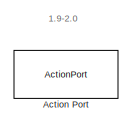
[diagram: If Action Subsystem6/If Action Subsystem2/If Action Subsystem9 - part 1/3, top center region]
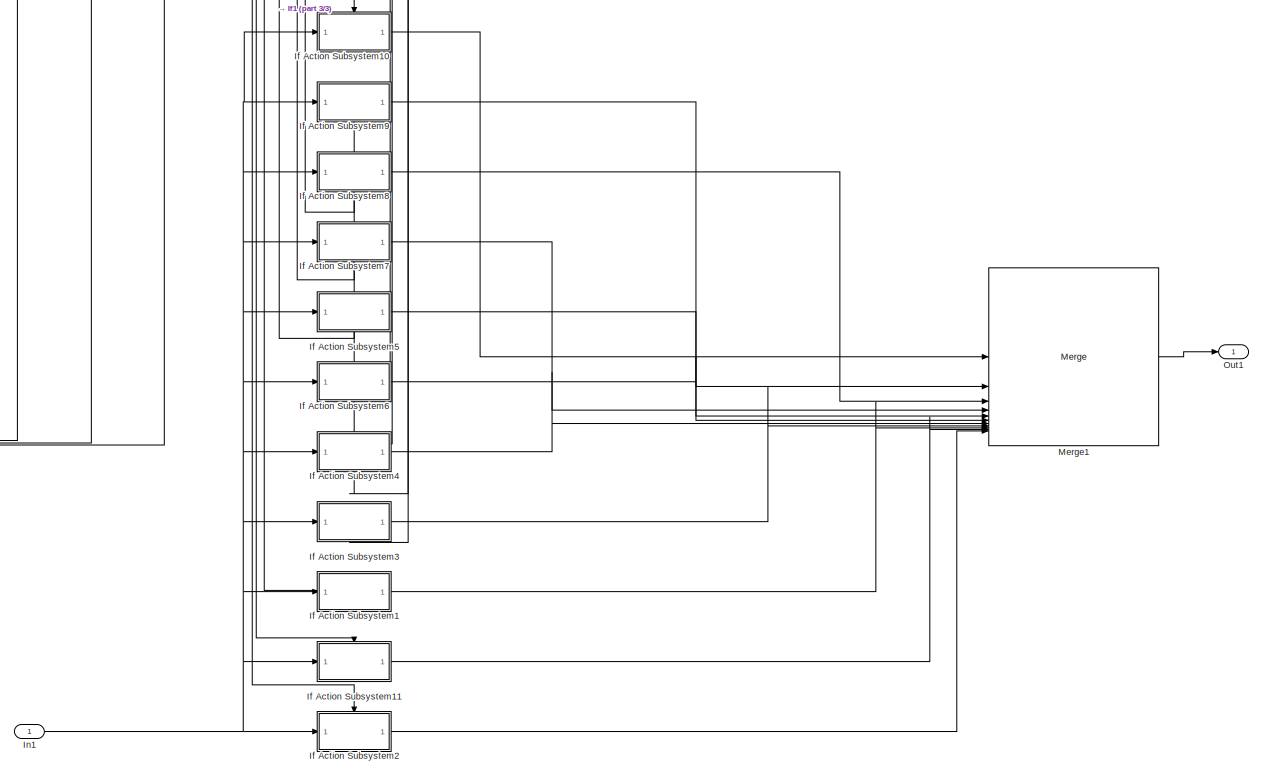
[diagram: If Action Subsystem6/If Action Subsystem2/If Action Subsystem9 - part 2/3, middle right region]
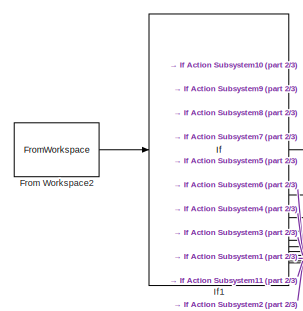
[diagram: If Action Subsystem6/If Action Subsystem2/If Action Subsystem9 - part 3/3, middle left region]
BLOCK [SubSystem] If Action Subsystem6/If Action Subsystem2/If Action Subsystem9
  TreatAsAtomicUnit = on
BLOCK [ActionPort] If Action Subsystem6/If Action Subsystem2/If Action Subsystem9/Action Port
  ActionPortLabel = if(u1 >= 1.895)
BLOCK [FromWorkspace] If Action Subsystem6/If Action Subsystem2/If Action Subsystem9/From Workspace2
  Interpolate = off
  OutputAfterFinalValue = Setting to zero
  VariableName = SimInputHR
BLOCK [SubSystem] If Action Subsystem6/If Action Subsystem2/If Action Subsystem9/If Action Subsystem1
  TreatAsAtomicUnit = on
BLOCK [ActionPort] If Action Subsystem6/If Action Subsystem2/If Action Subsystem9/If Action Subsystem1/Action Port
  ActionPortLabel = elseif( u1 >= 1.915)
BLOCK [Inport] If Action Subsystem6/If Action Subsystem2/If Action Subsystem9/If Action Subsystem1/In1
BLOCK [Lookup_n-D] If Action Subsystem6/If Action Subsystem2/If Action Subsystem9/If Action Subsystem1/LUT 1.92RR
  BreakpointsForDimension1 = [398.6604;505.5409;602.0864;698.3082;794.1288;889.6453;984.9397;1080.071;1175.08;1269.997;1364.843;1459.632;1554.377;1649.085;1743.765;1838.419;1933.054]
  InputPortMap = u0
  InternalRulePriority = Speed
  NumberOfTableDimensions = 1
  RndMeth = Simplest
  Table = [400;500;600;700;800;900;1000;1100;1200;1300;1400;1500;1600;1700;1800;1900;2000]
BLOCK [Outport] If Action Subsystem6/If Action Subsystem2/If Action Subsystem9/If Action Subsystem1/Out1
BLOCK [SubSystem] If Action Subsystem6/If Action Subsystem2/If Action Subsystem9/If Action Subsystem10
  TreatAsAtomicUnit = on
BLOCK [ActionPort] If Action Subsystem6/If Action Subsystem2/If Action Subsystem9/If Action Subsystem10/Action Port
  ActionPortLabel = if(u1 >= 1.995)
BLOCK [Inport] If Action Subsystem6/If Action Subsystem2/If Action Subsystem9/If Action Subsystem10/In1
BLOCK [Lookup_n-D] If Action Subsystem6/If Action Subsystem2/If Action Subsystem9/If Action Subsystem10/LUT 2.00RR
  BreakpointsForDimension1 = [398.4498;505.3086;601.8224;697.9817;793.713;889.1189;984.286;1079.277;1174.137;1268.896;1363.577;1458.198;1552.77;1647.302;1741.803;1836.277;1930.729]
  InputPortMap = u0
  InternalRulePriority = Speed
  NumberOfTableDimensions = 1
  RndMeth = Simplest
  Table = [400;500;600;700;800;900;1000;1100;1200;1300;1400;1500;1600;1700;1800;1900;2000]
BLOCK [Outport] If Action Subsystem6/If Action Subsystem2/If Action Subsystem9/If Action Subsystem10/Out1
BLOCK [SubSystem] If Action Subsystem6/If Action Subsystem2/If Action Subsystem9/If Action Subsystem11
  TreatAsAtomicUnit = on
BLOCK [ActionPort] If Action Subsystem6/If Action Subsystem2/If Action Subsystem9/If Action Subsystem11/Action Port
  ActionPortLabel = elseif( u1 >= 1.905)
BLOCK [Inport] If Action Subsystem6/If Action Subsystem2/If Action Subsystem9/If Action Subsystem11/In1
BLOCK [Lookup_n-D] If Action Subsystem6/If Action Subsystem2/If Action Subsystem9/If Action Subsystem11/LUT 1.91RR
  BreakpointsForDimension1 = [398.6878;505.5719;602.1224;698.3532;794.1862;889.7178;985.0294;1080.179;1175.209;1270.147;1365.014;1459.826;1554.593;1649.325;1744.028;1838.706;1933.365]
  InputPortMap = u0
  InternalRulePriority = Speed
  NumberOfTableDimensions = 1
  RndMeth = Simplest
  Table = [400;500;600;700;800;900;1000;1100;1200;1300;1400;1500;1600;1700;1800;1900;2000]
BLOCK [Outport] If Action Subsystem6/If Action Subsystem2/If Action Subsystem9/If Action Subsystem11/Out1
BLOCK [SubSystem] If Action Subsystem6/If Action Subsystem2/If Action Subsystem9/If Action Subsystem2
  TreatAsAtomicUnit = on
BLOCK [ActionPort] If Action Subsystem6/If Action Subsystem2/If Action Subsystem9/If Action Subsystem2/Action Port
  ActionPortLabel = else
BLOCK [Inport] If Action Subsystem6/If Action Subsystem2/If Action Subsystem9/If Action Subsystem2/In1
BLOCK [Lookup_n-D] If Action Subsystem6/If Action Subsystem2/If Action Subsystem9/If Action Subsystem2/LUT 1.90RR
  BreakpointsForDimension1 = [398.7156;505.6034;602.1591;698.3991;794.2449;889.7919;985.121;1080.29;1175.34;1270.299;1365.188;1460.023;1554.813;1649.569;1744.295;1838.998;1933.681]
  InputPortMap = u0
  InternalRulePriority = Speed
  NumberOfTableDimensions = 1
  RndMeth = Simplest
  Table = [400;500;600;700;800;900;1000;1100;1200;1300;1400;1500;1600;1700;1800;1900;2000]
BLOCK [Outport] If Action Subsystem6/If Action Subsystem2/If Action Subsystem9/If Action Subsystem2/Out1
BLOCK [SubSystem] If Action Subsystem6/If Action Subsystem2/If Action Subsystem9/If Action Subsystem3
  TreatAsAtomicUnit = on
BLOCK [ActionPort] If Action Subsystem6/If Action Subsystem2/If Action Subsystem9/If Action Subsystem3/Action Port
  ActionPortLabel = elseif( u1 >= 1.925)
BLOCK [Inport] If Action Subsystem6/If Action Subsystem2/If Action Subsystem9/If Action Subsystem3/In1
BLOCK [Lookup_n-D] If Action Subsystem6/If Action Subsystem2/If Action Subsystem9/If Action Subsystem3/LUT 1.93RR
  BreakpointsForDimension1 = [398.6331;505.5103;602.0511;698.2642;794.0727;889.5743;984.8519;1079.965;1174.954;1269.851;1364.675;1459.442;1554.164;1648.85;1743.505;1838.137;1932.747]
  InputPortMap = u0
  InternalRulePriority = Speed
  NumberOfTableDimensions = 1
  RndMeth = Simplest
  Table = [400;500;600;700;800;900;1000;1100;1200;1300;1400;1500;1600;1700;1800;1900;2000]
BLOCK [Outport] If Action Subsystem6/If Action Subsystem2/If Action Subsystem9/If Action Subsystem3/Out1
BLOCK [SubSystem] If Action Subsystem6/If Action Subsystem2/If Action Subsystem9/If Action Subsystem4
  TreatAsAtomicUnit = on
BLOCK [ActionPort] If Action Subsystem6/If Action Subsystem2/If Action Subsystem9/If Action Subsystem4/Action Port
  ActionPortLabel = elseif( u1 >= 1.935)
BLOCK [Inport] If Action Subsystem6/If Action Subsystem2/If Action Subsystem9/If Action Subsystem4/In1
BLOCK [Lookup_n-D] If Action Subsystem6/If Action Subsystem2/If Action Subsystem9/If Action Subsystem4/LUT 1.94RR
  BreakpointsForDimension1 = [398.6062;505.4802;602.0165;698.2211;794.0178;889.5049;984.7658;1079.86;1174.831;1269.706;1364.509;1459.255;1553.955;1648.618;1743.25;1837.858;1932.446]
  InputPortMap = u0
  InternalRulePriority = Speed
  NumberOfTableDimensions = 1
  RndMeth = Simplest
  Table = [400;500;600;700;800;900;1000;1100;1200;1300;1400;1500;1600;1700;1800;1900;2000]
BLOCK [Outport] If Action Subsystem6/If Action Subsystem2/If Action Subsystem9/If Action Subsystem4/Out1
BLOCK [SubSystem] If Action Subsystem6/If Action Subsystem2/If Action Subsystem9/If Action Subsystem5
  TreatAsAtomicUnit = on
BLOCK [ActionPort] If Action Subsystem6/If Action Subsystem2/If Action Subsystem9/If Action Subsystem5/Action Port
  ActionPortLabel = elseif( u1 >= 1.955)
BLOCK [Inport] If Action Subsystem6/If Action Subsystem2/If Action Subsystem9/If Action Subsystem5/In1
BLOCK [Lookup_n-D] If Action Subsystem6/If Action Subsystem2/If Action Subsystem9/If Action Subsystem5/LUT 1.96RR
  BreakpointsForDimension1 = [398.5531;505.4213;601.9493;698.1378;793.9116;889.3705;984.5991;1079.658;1174.59;1269.426;1364.187;1458.89;1553.546;1648.165;1742.752;1837.315;1931.856]
  InputPortMap = u0
  InternalRulePriority = Speed
  NumberOfTableDimensions = 1
  RndMeth = Simplest
  Table = [400;500;600;700;800;900;1000;1100;1200;1300;1400;1500;1600;1700;1800;1900;2000]
BLOCK [Outport] If Action Subsystem6/If Action Subsystem2/If Action Subsystem9/If Action Subsystem5/Out1
BLOCK [SubSystem] If Action Subsystem6/If Action Subsystem2/If Action Subsystem9/If Action Subsystem6
  TreatAsAtomicUnit = on
BLOCK [ActionPort] If Action Subsystem6/If Action Subsystem2/If Action Subsystem9/If Action Subsystem6/Action Port
  ActionPortLabel = elseif( u1 >= 1.945)
BLOCK [Inport] If Action Subsystem6/If Action Subsystem2/If Action Subsystem9/If Action Subsystem6/In1
BLOCK [Lookup_n-D] If Action Subsystem6/If Action Subsystem2/If Action Subsystem9/If Action Subsystem6/LUT 1.95RR
  BreakpointsForDimension1 = [398.5795;505.4506;601.9826;698.179;793.9641;889.437;984.6816;1079.758;1174.709;1269.565;1364.347;1459.071;1553.749;1648.389;1742.999;1837.585;1932.149]
  InputPortMap = u0
  InternalRulePriority = Speed
  NumberOfTableDimensions = 1
  RndMeth = Simplest
  Table = [400;500;600;700;800;900;1000;1100;1200;1300;1400;1500;1600;1700;1800;1900;2000]
BLOCK [Outport] If Action Subsystem6/If Action Subsystem2/If Action Subsystem9/If Action Subsystem6/Out1
BLOCK [SubSystem] If Action Subsystem6/If Action Subsystem2/If Action Subsystem9/If Action Subsystem7
  TreatAsAtomicUnit = on
BLOCK [ActionPort] If Action Subsystem6/If Action Subsystem2/If Action Subsystem9/If Action Subsystem7/Action Port
  ActionPortLabel = elseif( u1 >= 1.965)
BLOCK [Inport] If Action Subsystem6/If Action Subsystem2/If Action Subsystem9/If Action Subsystem7/In1
BLOCK [Lookup_n-D] If Action Subsystem6/If Action Subsystem2/If Action Subsystem9/If Action Subsystem7/LUT 1.97RR
  BreakpointsForDimension1 = [398.5269;505.3925;601.9166;698.0975;793.8603;889.3055;984.5183;1079.56;1174.473;1269.29;1364.031;1458.712;1553.347;1647.944;1742.509;1837.049;1931.568]
  InputPortMap = u0
  InternalRulePriority = Speed
  NumberOfTableDimensions = 1
  RndMeth = Simplest
  Table = [400;500;600;700;800;900;1000;1100;1200;1300;1400;1500;1600;1700;1800;1900;2000]
BLOCK [Outport] If Action Subsystem6/If Action Subsystem2/If Action Subsystem9/If Action Subsystem7/Out1
BLOCK [SubSystem] If Action Subsystem6/If Action Subsystem2/If Action Subsystem9/If Action Subsystem8
  TreatAsAtomicUnit = on
BLOCK [ActionPort] If Action Subsystem6/If Action Subsystem2/If Action Subsystem9/If Action Subsystem8/Action Port
  ActionPortLabel = elseif( u1 >= 1.975)
BLOCK [Inport] If Action Subsystem6/If Action Subsystem2/If Action Subsystem9/If Action Subsystem8/In1
BLOCK [Lookup_n-D] If Action Subsystem6/If Action Subsystem2/If Action Subsystem9/If Action Subsystem8/LUT 1.98RR
  BreakpointsForDimension1 = [398.501;505.3641;601.8846;698.058;793.8101;889.2419;984.4392;1079.464;1174.359;1269.156;1363.877;1458.538;1553.151;1647.726;1742.27;1836.788;1931.284]
  InputPortMap = u0
  InternalRulePriority = Speed
  NumberOfTableDimensions = 1
  RndMeth = Simplest
  Table = [400;500;600;700;800;900;1000;1100;1200;1300;1400;1500;1600;1700;1800;1900;2000]
BLOCK [Outport] If Action Subsystem6/If Action Subsystem2/If Action Subsystem9/If Action Subsystem8/Out1
BLOCK [SubSystem] If Action Subsystem6/If Action Subsystem2/If Action Subsystem9/If Action Subsystem9
  TreatAsAtomicUnit = on
BLOCK [ActionPort] If Action Subsystem6/If Action Subsystem2/If Action Subsystem9/If Action Subsystem9/Action Port
  ActionPortLabel = elseif(u1 >= 1.985)
BLOCK [Inport] If Action Subsystem6/If Action Subsystem2/If Action Subsystem9/If Action Subsystem9/In1
BLOCK [Lookup_n-D] If Action Subsystem6/If Action Subsystem2/If Action Subsystem9/If Action Subsystem9/LUT 1.99RR
  BreakpointsForDimension1 = [398.4753;505.3361;601.8532;698.0194;793.761;889.1797;984.3618;1079.369;1174.247;1269.025;1363.726;1458.366;1552.959;1647.513;1742.035;1836.53;1931.004]
  InputPortMap = u0
  InternalRulePriority = Speed
  NumberOfTableDimensions = 1
  RndMeth = Simplest
  Table = [400;500;600;700;800;900;1000;1100;1200;1300;1400;1500;1600;1700;1800;1900;2000]
BLOCK [Outport] If Action Subsystem6/If Action Subsystem2/If Action Subsystem9/If Action Subsystem9/Out1
BLOCK [If] If Action Subsystem6/If Action Subsystem2/If Action Subsystem9/If1
  ElseIfExpressions = u1 >= 1.985, u1 >= 1.975, u1 >= 1.965, u1 >= 1.955, u1 >= 1.945, u1 >= 1.935, u1 >= 1.925, u1 >= 1.915, u1 >= 1.905
  IfExpression = u1 >= 1.995
BLOCK [Inport] If Action Subsystem6/If Action Subsystem2/If Action Subsystem9/In1
BLOCK [Merge] If Action Subsystem6/If Action Subsystem2/If Action Subsystem9/Merge1
  Inputs = 11
BLOCK [Outport] If Action Subsystem6/If Action Subsystem2/If Action Subsystem9/Out1
BLOCK [If] If Action Subsystem6/If Action Subsystem2/If1
  ElseIfExpressions = u1 >= 1.795, u1 >= 1.695, u1 >= 1.595
  IfExpression = u1 >= 1.895
BLOCK [Inport] If Action Subsystem6/If Action Subsystem2/In1
BLOCK [Merge] If Action Subsystem6/If Action Subsystem2/Merge1
  Inputs = 5
BLOCK [Outport] If Action Subsystem6/If Action Subsystem2/Out1
BLOCK [SubSystem] If Action Subsystem6/If Action Subsystem3
  TreatAsAtomicUnit = on
BLOCK [ActionPort] If Action Subsystem6/If Action Subsystem3/Action Port
  ActionPortLabel = else
BLOCK [FromWorkspace] If Action Subsystem6/If Action Subsystem3/From Workspace2
  Interpolate = off
  OutputAfterFinalValue = Setting to zero
  VariableName = SimInputHR
BLOCK [SubSystem] If Action Subsystem6/If Action Subsystem3/If Action Subsystem5
  TreatAsAtomicUnit = on
BLOCK [ActionPort] If Action Subsystem6/If Action Subsystem3/If Action Subsystem5/Action Port
  ActionPortLabel = elseif( u1 >= 0595)
BLOCK [FromWorkspace] If Action Subsystem6/If Action Subsystem3/If Action Subsystem5/From Workspace2
  Interpolate = off
  OutputAfterFinalValue = Setting to zero
  VariableName = SimInputHR
BLOCK [SubSystem] If Action Subsystem6/If Action Subsystem3/If Action Subsystem5/If Action Subsystem1
  TreatAsAtomicUnit = on
BLOCK [ActionPort] If Action Subsystem6/If Action Subsystem3/If Action Subsystem5/If Action Subsystem1/Action Port
  ActionPortLabel = elseif( u1 >= 0.615)
BLOCK [Inport] If Action Subsystem6/If Action Subsystem3/If Action Subsystem5/If Action Subsystem1/In1
BLOCK [Lookup_n-D] If Action Subsystem6/If Action Subsystem3/If Action Subsystem5/If Action Subsystem1/LUT 0.62RR
  BreakpointsForDimension1 = [413.0526;530.6767;636.9684;743.5036;850.0094;956.4958;1063.005;1169.582;1276.273;1383.115;1490.11;1597.539;1705.059;1812.916;1921.116;2029.689;2138.661]
  InputPortMap = u0
  InternalRulePriority = Speed
  NumberOfTableDimensions = 1
  RndMeth = Simplest
  Table = [400;500;600;700;800;900;1000;1100;1200;1300;1400;1500;1600;1700;1800;1900;2000]
BLOCK [Outport] If Action Subsystem6/If Action Subsystem3/If Action Subsystem5/If Action Subsystem1/Out1
BLOCK [SubSystem] If Action Subsystem6/If Action Subsystem3/If Action Subsystem5/If Action Subsystem10
  TreatAsAtomicUnit = on
BLOCK [ActionPort] If Action Subsystem6/If Action Subsystem3/If Action Subsystem5/If Action Subsystem10/Action Port
  ActionPortLabel = elseif( u1 >= 0.605)
BLOCK [Inport] If Action Subsystem6/If Action Subsystem3/If Action Subsystem5/If Action Subsystem10/In1
BLOCK [Lookup_n-D] If Action Subsystem6/If Action Subsystem3/If Action Subsystem5/If Action Subsystem10/LUT 0.61RR
  BreakpointsForDimension1 = [413.6063;531.8654;638.6532;745.6537;852.6076;959.5359;1066.49;1173.523;1280.687;1388.021;1504.644;1603.565;1711.69;1820.197;1929.1;2038.429;2148.217]
  InputPortMap = u0
  InternalRulePriority = Speed
  NumberOfTableDimensions = 1
  RndMeth = Simplest
  Table = [400;500;600;700;800;900;1000;1100;1200;1300;1400;1500;1600;1700;1800;1900;2000]
BLOCK [Outport] If Action Subsystem6/If Action Subsystem3/If Action Subsystem5/If Action Subsystem10/Out1
BLOCK [SubSystem] If Action Subsystem6/If Action Subsystem3/If Action Subsystem5/If Action Subsystem2
  TreatAsAtomicUnit = on
BLOCK [ActionPort] If Action Subsystem6/If Action Subsystem3/If Action Subsystem5/If Action Subsystem2/Action Port
  ActionPortLabel = else
BLOCK [Inport] If Action Subsystem6/If Action Subsystem3/If Action Subsystem5/If Action Subsystem2/In1
BLOCK [Lookup_n-D] If Action Subsystem6/If Action Subsystem3/If Action Subsystem5/If Action Subsystem2/LUT 0.6RR
  BreakpointsForDimension1 = [414.1881;533.143;640.4713;747.9759;855.4138;962.8193;1070.254;1177.781;1285.457;1393.325;1505.695;1610.101;1718.894;1828.12;1937.801;2047.972;2158.67]
  InputPortMap = u0
  InternalRulePriority = Speed
  NumberOfTableDimensions = 1
  RndMeth = Simplest
  Table = [400;500;600;700;800;900;1000;1100;1200;1300;1400;1500;1600;1700;1800;1900;2000]
BLOCK [Outport] If Action Subsystem6/If Action Subsystem3/If Action Subsystem5/If Action Subsystem2/Out1
BLOCK [SubSystem] If Action Subsystem6/If Action Subsystem3/If Action Subsystem5/If Action Subsystem3
  TreatAsAtomicUnit = on
BLOCK [ActionPort] If Action Subsystem6/If Action Subsystem3/If Action Subsystem5/If Action Subsystem3/Action Port
  ActionPortLabel = elseif( u1 >= 0.625)
BLOCK [Inport] If Action Subsystem6/If Action Subsystem3/If Action Subsystem5/If Action Subsystem3/In1
BLOCK [Lookup_n-D] If Action Subsystem6/If Action Subsystem3/If Action Subsystem5/If Action Subsystem3/LUT 0.63RR
  BreakpointsForDimension1 = [412.5257;529.5692;635.4041;741.5087;847.5987;953.6745;1059.77;1165.926;1272.179;1378.566;1485.105;1591.969;1698.936;1806.202;1913.768;2021.658;2129.896]
  InputPortMap = u0
  InternalRulePriority = Speed
  NumberOfTableDimensions = 1
  RndMeth = Simplest
  Table = [400;500;600;700;800;900;1000;1100;1200;1300;1400;1500;1600;1700;1800;1900;2000]
BLOCK [Outport] If Action Subsystem6/If Action Subsystem3/If Action Subsystem5/If Action Subsystem3/Out1
BLOCK [SubSystem] If Action Subsystem6/If Action Subsystem3/If Action Subsystem5/If Action Subsystem4
  TreatAsAtomicUnit = on
BLOCK [ActionPort] If Action Subsystem6/If Action Subsystem3/If Action Subsystem5/If Action Subsystem4/Action Port
  ActionPortLabel = elseif( u1 >= 0.635)
BLOCK [Inport] If Action Subsystem6/If Action Subsystem3/If Action Subsystem5/If Action Subsystem4/In1
BLOCK [Lookup_n-D] If Action Subsystem6/If Action Subsystem3/If Action Subsystem5/If Action Subsystem4/LUT 0.64RR
  BreakpointsForDimension1 = [412.0245;528.5358;633.9491;739.6539;845.3569;951.0501;1056.761;1162.524;1268.371;1374.335;1480.441;1586.807;1693.265;1799.994;1906.983;2014.254;2121.83]
  InputPortMap = u0
  InternalRulePriority = Speed
  NumberOfTableDimensions = 1
  RndMeth = Simplest
  Table = [400;500;600;700;800;900;1000;1100;1200;1300;1400;1500;1600;1700;1800;1900;2000]
BLOCK [Outport] If Action Subsystem6/If Action Subsystem3/If Action Subsystem5/If Action Subsystem4/Out1
BLOCK [SubSystem] If Action Subsystem6/If Action Subsystem3/If Action Subsystem5/If Action Subsystem5
  TreatAsAtomicUnit = on
BLOCK [ActionPort] If Action Subsystem6/If Action Subsystem3/If Action Subsystem5/If Action Subsystem5/Action Port
  ActionPortLabel = elseif( u1 >= 0.655)
BLOCK [Inport] If Action Subsystem6/If Action Subsystem3/If Action Subsystem5/If Action Subsystem5/In1
BLOCK [Lookup_n-D] If Action Subsystem6/If Action Subsystem3/If Action Subsystem5/If Action Subsystem5/LUT 0.66RR
  BreakpointsForDimension1 = [411.0948;526.6663;631.3276;736.3133;841.3167;946.3174;1051.332;1156.386;1261.503;1366.708;1472.025;1580.011;1683.093;1788.878;1894.86;2001.057;2107.487]
  InputPortMap = u0
  InternalRulePriority = Speed
  NumberOfTableDimensions = 1
  RndMeth = Simplest
  Table = [400;500;600;700;800;900;1000;1100;1200;1300;1400;1500;1600;1700;1800;1900;2000]
BLOCK [Outport] If Action Subsystem6/If Action Subsystem3/If Action Subsystem5/If Action Subsystem5/Out1
BLOCK [SubSystem] If Action Subsystem6/If Action Subsystem3/If Action Subsystem5/If Action Subsystem6
  TreatAsAtomicUnit = on
BLOCK [ActionPort] If Action Subsystem6/If Action Subsystem3/If Action Subsystem5/If Action Subsystem6/Action Port
  ActionPortLabel = elseif( u1 >= 0.645)
BLOCK [Inport] If Action Subsystem6/If Action Subsystem3/If Action Subsystem5/If Action Subsystem6/In1
BLOCK [Lookup_n-D] If Action Subsystem6/If Action Subsystem3/If Action Subsystem5/If Action Subsystem6/LUT 0.65RR
  BreakpointsForDimension1 = [411.548;527.57;632.5933;737.9261;843.2677;948.6034;1053.955;1159.351;1264.821;1370.392;1476.091;1582.028;1687.998;1794.235;1900.698;2007.408;2114.383]
  InputPortMap = u0
  InternalRulePriority = Speed
  NumberOfTableDimensions = 1
  RndMeth = Simplest
  Table = [400;500;600;700;800;900;1000;1100;1200;1300;1400;1500;1600;1700;1800;1900;2000]
BLOCK [Outport] If Action Subsystem6/If Action Subsystem3/If Action Subsystem5/If Action Subsystem6/Out1
BLOCK [SubSystem] If Action Subsystem6/If Action Subsystem3/If Action Subsystem5/If Action Subsystem7
  TreatAsAtomicUnit = on
BLOCK [ActionPort] If Action Subsystem6/If Action Subsystem3/If Action Subsystem5/If Action Subsystem7/Action Port
  ActionPortLabel = elseif( u1 >= 0.665)
BLOCK [Inport] If Action Subsystem6/If Action Subsystem3/If Action Subsystem5/If Action Subsystem7/In1
BLOCK [Lookup_n-D] If Action Subsystem6/If Action Subsystem3/If Action Subsystem5/If Action Subsystem7/LUT 0.67RR
  BreakpointsForDimension1 = [410.6639;525.8193;630.1439;734.805;839.491;944.177;1048.876;1153.607;1258.394;1363.258;1468.219;1581.997;1678.512;1783.881;1889.421;1995.149;2101.08]
  InputPortMap = u0
  InternalRulePriority = Speed
  NumberOfTableDimensions = 1
  RndMeth = Simplest
  Table = [400;500;600;700;800;900;1000;1100;1200;1300;1400;1500;1600;1700;1800;1900;2000]
BLOCK [Outport] If Action Subsystem6/If Action Subsystem3/If Action Subsystem5/If Action Subsystem7/Out1
BLOCK [SubSystem] If Action Subsystem6/If Action Subsystem3/If Action Subsystem5/If Action Subsystem8
  TreatAsAtomicUnit = on
BLOCK [ActionPort] If Action Subsystem6/If Action Subsystem3/If Action Subsystem5/If Action Subsystem8/Action Port
  ActionPortLabel = elseif(u1 >= 0.675)
BLOCK [Inport] If Action Subsystem6/If Action Subsystem3/If Action Subsystem5/If Action Subsystem8/In1
BLOCK [Lookup_n-D] If Action Subsystem6/If Action Subsystem3/If Action Subsystem5/If Action Subsystem8/LUT 0.68RR
  BreakpointsForDimension1 = [410.2541;525.0244;629.0351;733.3917;837.7791;942.1686;1046.569;1150.998;1255.475;1360.018;1464.646;1569.375;1674.224;1779.207;1884.339;1989.636;2095.11]
  InputPortMap = u0
  InternalRulePriority = Speed
  NumberOfTableDimensions = 1
  RndMeth = Simplest
  Table = [400;500;600;700;800;900;1000;1100;1200;1300;1400;1500;1600;1700;1800;1900;2000]
BLOCK [Outport] If Action Subsystem6/If Action Subsystem3/If Action Subsystem5/If Action Subsystem8/Out1
BLOCK [SubSystem] If Action Subsystem6/If Action Subsystem3/If Action Subsystem5/If Action Subsystem9
  TreatAsAtomicUnit = on
BLOCK [ActionPort] If Action Subsystem6/If Action Subsystem3/If Action Subsystem5/If Action Subsystem9/Action Port
  ActionPortLabel = if(u1 >= 0.685)
BLOCK [Inport] If Action Subsystem6/If Action Subsystem3/If Action Subsystem5/If Action Subsystem9/In1
BLOCK [Lookup_n-D] If Action Subsystem6/If Action Subsystem3/If Action Subsystem5/If Action Subsystem9/LUT 0.69RR
  BreakpointsForDimension1 = [409.7732;524.2774;627.9946;732.0649;836.1708;940.2803;1044.4;1148.543;1252.728;1356.97;1461.285;1565.687;1670.201;1774.824;1879.579;1984.478;2089.532]
  InputPortMap = u0
  InternalRulePriority = Speed
  NumberOfTableDimensions = 1
  RndMeth = Simplest
  Table = [400;500;600;700;800;900;1000;1100;1200;1300;1400;1500;1600;1700;1800;1900;2000]
BLOCK [Outport] If Action Subsystem6/If Action Subsystem3/If Action Subsystem5/If Action Subsystem9/Out1
BLOCK [If] If Action Subsystem6/If Action Subsystem3/If Action Subsystem5/If1
  ElseIfExpressions = u1 >= 0.675, u1 >= 0.665, u1 >= 0.655, u1 >= 0.645, u1 >= 0.635, u1 >= 0.625, u1 >= 0.615, u1 >= 0.605
  IfExpression = u1 >= 0.685
BLOCK [Inport] If Action Subsystem6/If Action Subsystem3/If Action Subsystem5/In1
BLOCK [Merge] If Action Subsystem6/If Action Subsystem3/If Action Subsystem5/Merge1
  Inputs = 10
BLOCK [Outport] If Action Subsystem6/If Action Subsystem3/If Action Subsystem5/Out1
BLOCK [SubSystem] If Action Subsystem6/If Action Subsystem3/If Action Subsystem6
  TreatAsAtomicUnit = on
BLOCK [ActionPort] If Action Subsystem6/If Action Subsystem3/If Action Subsystem6/Action Port
  ActionPortLabel = else
BLOCK [FromWorkspace] If Action Subsystem6/If Action Subsystem3/If Action Subsystem6/From Workspace2
  Interpolate = off
  OutputAfterFinalValue = Setting to zero
  VariableName = SimInputHR
BLOCK [SubSystem] If Action Subsystem6/If Action Subsystem3/If Action Subsystem6/If Action Subsystem1
  TreatAsAtomicUnit = on
BLOCK [ActionPort] If Action Subsystem6/If Action Subsystem3/If Action Subsystem6/If Action Subsystem1/Action Port
  ActionPortLabel = elseif( u1 >= 0.515)
BLOCK [Inport] If Action Subsystem6/If Action Subsystem3/If Action Subsystem6/If Action Subsystem1/In1
BLOCK [Lookup_n-D] If Action Subsystem6/If Action Subsystem3/If Action Subsystem6/If Action Subsystem1/LUT 0.52RR
  BreakpointsForDimension1 = [419.925;547.8462;661.9676;775.6675;888.9962;1002.208;1115.536;1229.174;1343.225;1459.982;1574.478;1691.12;1808.984;1928.148;2048.731;2170.858;2294.661]
  InputPortMap = u0
  InternalRulePriority = Speed
  NumberOfTableDimensions = 1
  RndMeth = Simplest
  Table = [400;500;600;700;800;900;1000;1100;1200;1300;1400;1500;1600;1700;1800;1900;2000]
BLOCK [Outport] If Action Subsystem6/If Action Subsystem3/If Action Subsystem6/If Action Subsystem1/Out1
BLOCK [SubSystem] If Action Subsystem6/If Action Subsystem3/If Action Subsystem6/If Action Subsystem10
  TreatAsAtomicUnit = on
BLOCK [ActionPort] If Action Subsystem6/If Action Subsystem3/If Action Subsystem6/If Action Subsystem10/Action Port
  ActionPortLabel = elseif( u1 >= 0.505)
BLOCK [Inport] If Action Subsystem6/If Action Subsystem3/If Action Subsystem6/If Action Subsystem10/In1
BLOCK [Lookup_n-D] If Action Subsystem6/If Action Subsystem3/If Action Subsystem6/If Action Subsystem10/LUT 0.51RR
  BreakpointsForDimension1 = [420.7723;550.4608;665.9025;780.7905;895.2445;1009.57;1124.038;1238.87;1354.163;1471.848;1588.432;1706.804;1826.569;1947.837;2070.753;2195.464;2322.135]
  InputPortMap = u0
  InternalRulePriority = Speed
  NumberOfTableDimensions = 1
  RndMeth = Simplest
  Table = [400;500;600;700;800;900;1000;1100;1200;1300;1400;1500;1600;1700;1800;1900;2000]
BLOCK [Outport] If Action Subsystem6/If Action Subsystem3/If Action Subsystem6/If Action Subsystem10/Out1
BLOCK [SubSystem] If Action Subsystem6/If Action Subsystem3/If Action Subsystem6/If Action Subsystem2
  TreatAsAtomicUnit = on
BLOCK [ActionPort] If Action Subsystem6/If Action Subsystem3/If Action Subsystem6/If Action Subsystem2/Action Port
  ActionPortLabel = else
BLOCK [Inport] If Action Subsystem6/If Action Subsystem3/If Action Subsystem6/If Action Subsystem2/In1
BLOCK [Lookup_n-D] If Action Subsystem6/If Action Subsystem3/If Action Subsystem6/If Action Subsystem2/LUT 0.50RR
  BreakpointsForDimension1 = [421.6409;553.3122;670.2323;786.4478;902.1595;1017.731;1133.48;1249.661;1366.356;1485.421;1604.038;1724.383;1846.324;1970.008;2095.608;2223.304;2353.3]
  InputPortMap = u0
  InternalRulePriority = Speed
  NumberOfTableDimensions = 1
  RndMeth = Simplest
  Table = [400;500;600;700;800;900;1000;1100;1200;1300;1400;1500;1600;1700;1800;1900;2000]
BLOCK [Outport] If Action Subsystem6/If Action Subsystem3/If Action Subsystem6/If Action Subsystem2/Out1
BLOCK [SubSystem] If Action Subsystem6/If Action Subsystem3/If Action Subsystem6/If Action Subsystem3
  TreatAsAtomicUnit = on
BLOCK [ActionPort] If Action Subsystem6/If Action Subsystem3/If Action Subsystem6/If Action Subsystem3/Action Port
  ActionPortLabel = elseif( u1 >= 0.525)
BLOCK [Inport] If Action Subsystem6/If Action Subsystem3/If Action Subsystem6/If Action Subsystem3/In1
BLOCK [Lookup_n-D] If Action Subsystem6/If Action Subsystem3/If Action Subsystem6/If Action Subsystem3/LUT 0.53RR
  BreakpointsForDimension1 = [419.1032;545.4456;658.3845;771.0177;883.336;995.5501;1107.859;1220.432;1333.374;1450.068;1561.96;1677.078;1793.276;1910.599;2029.148;2149.026;2270.345]
  InputPortMap = u0
  InternalRulePriority = Speed
  NumberOfTableDimensions = 1
  RndMeth = Simplest
  Table = [400;500;600;700;800;900;1000;1100;1200;1300;1400;1500;1600;1700;1800;1900;2000]
BLOCK [Outport] If Action Subsystem6/If Action Subsystem3/If Action Subsystem6/If Action Subsystem3/Out1
BLOCK [SubSystem] If Action Subsystem6/If Action Subsystem3/If Action Subsystem6/If Action Subsystem4
  TreatAsAtomicUnit = on
BLOCK [ActionPort] If Action Subsystem6/If Action Subsystem3/If Action Subsystem6/If Action Subsystem4/Action Port
  ActionPortLabel = elseif( u1 >= 0.535)
BLOCK [Inport] If Action Subsystem6/If Action Subsystem3/If Action Subsystem6/If Action Subsystem4/In1
BLOCK [Lookup_n-D] If Action Subsystem6/If Action Subsystem3/If Action Subsystem6/If Action Subsystem4/LUT 0.54RR
  BreakpointsForDimension1 = [418.3095;543.2384;655.1154;766.7878;878.1954;989.5111;1100.905;1212.525;1324.473;1442.464;1550.696;1664.462;1779.194;1894.902;2011.67;2129.586;2248.743]
  InputPortMap = u0
  InternalRulePriority = Speed
  NumberOfTableDimensions = 1
  RndMeth = Simplest
  Table = [400;500;600;700;800;900;1000;1100;1200;1300;1400;1500;1600;1700;1800;1900;2000]
BLOCK [Outport] If Action Subsystem6/If Action Subsystem3/If Action Subsystem6/If Action Subsystem4/Out1
BLOCK [SubSystem] If Action Subsystem6/If Action Subsystem3/If Action Subsystem6/If Action Subsystem5
  TreatAsAtomicUnit = on
BLOCK [ActionPort] If Action Subsystem6/If Action Subsystem3/If Action Subsystem6/If Action Subsystem5/Action Port
  ActionPortLabel = elseif( u1 >= 0.555)
BLOCK [Inport] If Action Subsystem6/If Action Subsystem3/If Action Subsystem6/If Action Subsystem5/In1
BLOCK [Lookup_n-D] If Action Subsystem6/If Action Subsystem3/If Action Subsystem6/If Action Subsystem5/LUT 0.56RR
  BreakpointsForDimension1 = [416.8124;538.8983;649.3892;759.4066;869.2429;979.0103;1088.832;1198.821;1309.064;1419.513;1531.335;1642.805;1755.093;1868.119;1981.942;2096.624;2212.235]
  InputPortMap = u0
  InternalRulePriority = Speed
  NumberOfTableDimensions = 1
  RndMeth = Simplest
  Table = [400;500;600;700;800;900;1000;1100;1200;1300;1400;1500;1600;1700;1800;1900;2000]
BLOCK [Outport] If Action Subsystem6/If Action Subsystem3/If Action Subsystem6/If Action Subsystem5/Out1
BLOCK [SubSystem] If Action Subsystem6/If Action Subsystem3/If Action Subsystem6/If Action Subsystem6
  TreatAsAtomicUnit = on
BLOCK [ActionPort] If Action Subsystem6/If Action Subsystem3/If Action Subsystem6/If Action Subsystem6/Action Port
  ActionPortLabel = elseif( u1 >= 0.545)
BLOCK [Inport] If Action Subsystem6/If Action Subsystem3/If Action Subsystem6/If Action Subsystem6/In1
BLOCK [Lookup_n-D] If Action Subsystem6/If Action Subsystem3/If Action Subsystem6/If Action Subsystem6/LUT 0.55RR
  BreakpointsForDimension1 = [417.5456;541.1396;652.1268;762.9311;873.515;984.0188;1094.588;1205.35;1316.403;1436.98;1540.531;1653.091;1766.527;1880.812;1996.014;2112.21;2229.478]
  InputPortMap = u0
  InternalRulePriority = Speed
  NumberOfTableDimensions = 1
  RndMeth = Simplest
  Table = [400;500;600;700;800;900;1000;1100;1200;1300;1400;1500;1600;1700;1800;1900;2000]
BLOCK [Outport] If Action Subsystem6/If Action Subsystem3/If Action Subsystem6/If Action Subsystem6/Out1
BLOCK [SubSystem] If Action Subsystem6/If Action Subsystem3/If Action Subsystem6/If Action Subsystem7
  TreatAsAtomicUnit = on
BLOCK [ActionPort] If Action Subsystem6/If Action Subsystem3/If Action Subsystem6/If Action Subsystem7/Action Port
  ActionPortLabel = elseif( u1 >= 0.565)
BLOCK [Inport] If Action Subsystem6/If Action Subsystem3/If Action Subsystem6/If Action Subsystem7/In1
BLOCK [Lookup_n-D] If Action Subsystem6/If Action Subsystem3/If Action Subsystem6/If Action Subsystem7/LUT 0.57RR
  BreakpointsForDimension1 = [416.1104;536.8576;646.8766;756.1785;865.3339;974.4308;1083.574;1192.86;1302.37;1412.111;1523.01;1633.472;1744.736;1856.646;1969.247;2082.593;2196.744]
  InputPortMap = u0
  InternalRulePriority = Speed
  NumberOfTableDimensions = 1
  RndMeth = Simplest
  Table = [400;500;600;700;800;900;1000;1100;1200;1300;1400;1500;1600;1700;1800;1900;2000]
BLOCK [Outport] If Action Subsystem6/If Action Subsystem3/If Action Subsystem6/If Action Subsystem7/Out1
BLOCK [SubSystem] If Action Subsystem6/If Action Subsystem3/If Action Subsystem6/If Action Subsystem8
  TreatAsAtomicUnit = on
BLOCK [ActionPort] If Action Subsystem6/If Action Subsystem3/If Action Subsystem6/If Action Subsystem8/Action Port
  ActionPortLabel = elseif(u1 >= 0.575)
BLOCK [Inport] If Action Subsystem6/If Action Subsystem3/If Action Subsystem6/If Action Subsystem8/In1
BLOCK [Lookup_n-D] If Action Subsystem6/If Action Subsystem3/If Action Subsystem6/If Action Subsystem8/LUT 0.58RR
  BreakpointsForDimension1 = [415.4393;536.0008;644.566;753.2153;861.7484;970.2327;1078.756;1187.403;1296.246;1405.316;1515.517;1624.974;1735.325;1846.24;1957.755;2069.918;2182.779]
  InputPortMap = u0
  InternalRulePriority = Speed
  NumberOfTableDimensions = 1
  RndMeth = Simplest
  Table = [400;500;600;700;800;900;1000;1100;1200;1300;1400;1500;1600;1700;1800;1900;2000]
BLOCK [Outport] If Action Subsystem6/If Action Subsystem3/If Action Subsystem6/If Action Subsystem8/Out1
BLOCK [SubSystem] If Action Subsystem6/If Action Subsystem3/If Action Subsystem6/If Action Subsystem9
  TreatAsAtomicUnit = on
BLOCK [ActionPort] If Action Subsystem6/If Action Subsystem3/If Action Subsystem6/If Action Subsystem9/Action Port
  ActionPortLabel = if(u1 >= 0.585)
BLOCK [Inport] If Action Subsystem6/If Action Subsystem3/If Action Subsystem6/If Action Subsystem9/In1
BLOCK [Lookup_n-D] If Action Subsystem6/If Action Subsystem3/If Action Subsystem6/If Action Subsystem9/LUT 0.59RR
  BreakpointsForDimension1 = [414.7988;534.5182;642.4369;750.4892;858.4519;966.3743;1074.331;1182.393;1290.627;1399.073;1509.163;1617.212;1726.743;1836.769;1947.315;2058.426;2170.143]
  InputPortMap = u0
  InternalRulePriority = Speed
  NumberOfTableDimensions = 1
  RndMeth = Simplest
  Table = [400;500;600;700;800;900;1000;1100;1200;1300;1400;1500;1600;1700;1800;1900;2000]
BLOCK [Outport] If Action Subsystem6/If Action Subsystem3/If Action Subsystem6/If Action Subsystem9/Out1
BLOCK [If] If Action Subsystem6/If Action Subsystem3/If Action Subsystem6/If1
  ElseIfExpressions = u1 >= 0.575, u1 >= 0.565, u1 >= 0.555, u1 >= 0.545, u1 >= 0.535, u1 >= 0.525, u1 >= 0.515, u1 >= 0.505
  IfExpression = u1 >= 0.585
BLOCK [Inport] If Action Subsystem6/If Action Subsystem3/If Action Subsystem6/In1
BLOCK [Merge] If Action Subsystem6/If Action Subsystem3/If Action Subsystem6/Merge1
  Inputs = 10
BLOCK [Outport] If Action Subsystem6/If Action Subsystem3/If Action Subsystem6/Out1
BLOCK [SubSystem] If Action Subsystem6/If Action Subsystem3/If Action Subsystem7
  TreatAsAtomicUnit = on
BLOCK [ActionPort] If Action Subsystem6/If Action Subsystem3/If Action Subsystem7/Action Port
  ActionPortLabel = elseif( u1 >= 0.695)
BLOCK [FromWorkspace] If Action Subsystem6/If Action Subsystem3/If Action Subsystem7/From Workspace2
  Interpolate = off
  OutputAfterFinalValue = Setting to zero
  VariableName = SimInputHR
BLOCK [SubSystem] If Action Subsystem6/If Action Subsystem3/If Action Subsystem7/If Action Subsystem1
  TreatAsAtomicUnit = on
BLOCK [ActionPort] If Action Subsystem6/If Action Subsystem3/If Action Subsystem7/If Action Subsystem1/Action Port
  ActionPortLabel = elseif( u1 >= 0.715)
BLOCK [Inport] If Action Subsystem6/If Action Subsystem3/If Action Subsystem7/If Action Subsystem1/In1
BLOCK [Lookup_n-D] If Action Subsystem6/If Action Subsystem3/If Action Subsystem7/If Action Subsystem1/LUT 0.72RR
  BreakpointsForDimension1 = [408.8044;522.2865;625.2275;728.5323;831.8808;935.2351;1038.595;1141.97;1245.37;1348.806;1452.289;1555.826;1661.357;1763.155;1866.924;1970.794;2074.77]
  InputPortMap = u0
  InternalRulePriority = Speed
  NumberOfTableDimensions = 1
  RndMeth = Simplest
  Table = [400;500;600;700;800;900;1000;1100;1200;1300;1400;1500;1600;1700;1800;1900;2000]
BLOCK [Outport] If Action Subsystem6/If Action Subsystem3/If Action Subsystem7/If Action Subsystem1/Out1
BLOCK [SubSystem] If Action Subsystem6/If Action Subsystem3/If Action Subsystem7/If Action Subsystem10
  TreatAsAtomicUnit = on
BLOCK [ActionPort] If Action Subsystem6/If Action Subsystem3/If Action Subsystem7/If Action Subsystem10/Action Port
  ActionPortLabel = elseif( u1 >= 0.705)
BLOCK [Inport] If Action Subsystem6/If Action Subsystem3/If Action Subsystem7/If Action Subsystem10/In1
BLOCK [Lookup_n-D] If Action Subsystem6/If Action Subsystem3/If Action Subsystem7/If Action Subsystem10/LUT 0.71RR
  BreakpointsForDimension1 = [409.1404;522.9118;626.0958;729.6417;833.2294;936.8226;1040.423;1144.041;1247.688;1351.378;1455.123;1558.931;1662.9;1766.82;1870.898;1975.087;2079.395]
  InputPortMap = u0
  InternalRulePriority = Speed
  NumberOfTableDimensions = 1
  RndMeth = Simplest
  Table = [400;500;600;700;800;900;1000;1100;1200;1300;1400;1500;1600;1700;1800;1900;2000]
BLOCK [Outport] If Action Subsystem6/If Action Subsystem3/If Action Subsystem7/If Action Subsystem10/Out1
BLOCK [SubSystem] If Action Subsystem6/If Action Subsystem3/If Action Subsystem7/If Action Subsystem2
  TreatAsAtomicUnit = on
BLOCK [ActionPort] If Action Subsystem6/If Action Subsystem3/If Action Subsystem7/If Action Subsystem2/Action Port
  ActionPortLabel = else
BLOCK [Inport] If Action Subsystem6/If Action Subsystem3/If Action Subsystem7/If Action Subsystem2/In1
BLOCK [Lookup_n-D] If Action Subsystem6/If Action Subsystem3/If Action Subsystem7/If Action Subsystem2/LUT 0.70RR
  BreakpointsForDimension1 = [409.5212;523.5744;627.0166;730.8172;834.657;938.5015;1042.354;1146.228;1250.137;1354.095;1458.116;1562.212;1666.423;1770.703;1875.108;1979.638;2084.306]
  InputPortMap = u0
  InternalRulePriority = Speed
  NumberOfTableDimensions = 1
  RndMeth = Simplest
  Table = [400;500;600;700;800;900;1000;1100;1200;1300;1400;1500;1600;1700;1800;1900;2000]
BLOCK [Outport] If Action Subsystem6/If Action Subsystem3/If Action Subsystem7/If Action Subsystem2/Out1
BLOCK [SubSystem] If Action Subsystem6/If Action Subsystem3/If Action Subsystem7/If Action Subsystem3
  TreatAsAtomicUnit = on
BLOCK [ActionPort] If Action Subsystem6/If Action Subsystem3/If Action Subsystem7/If Action Subsystem3/Action Port
  ActionPortLabel = elseif( u1 >= 0.725)
BLOCK [Inport] If Action Subsystem6/If Action Subsystem3/If Action Subsystem7/If Action Subsystem3/In1
BLOCK [Lookup_n-D] If Action Subsystem6/If Action Subsystem3/If Action Subsystem7/If Action Subsystem3/LUT 0.73RR
  BreakpointsForDimension1 = [408.4842;521.6957;624.4073;727.4836;830.6046;933.7314;1036.863;1140.006;1243.171;1346.366;1449.601;1552.882;1665.038;1759.687;1863.165;1966.738;2070.403]
  InputPortMap = u0
  InternalRulePriority = Speed
  NumberOfTableDimensions = 1
  RndMeth = Simplest
  Table = [400;500;600;700;800;900;1000;1100;1200;1300;1400;1500;1600;1700;1800;1900;2000]
BLOCK [Outport] If Action Subsystem6/If Action Subsystem3/If Action Subsystem7/If Action Subsystem3/Out1
BLOCK [SubSystem] If Action Subsystem6/If Action Subsystem3/If Action Subsystem7/If Action Subsystem4
  TreatAsAtomicUnit = on
BLOCK [ActionPort] If Action Subsystem6/If Action Subsystem3/If Action Subsystem7/If Action Subsystem4/Action Port
  ActionPortLabel = elseif( u1 >= 0.735)
BLOCK [Inport] If Action Subsystem6/If Action Subsystem3/If Action Subsystem7/If Action Subsystem4/In1
BLOCK [Lookup_n-D] If Action Subsystem6/If Action Subsystem3/If Action Subsystem7/If Action Subsystem4/LUT 0.74RR
  BreakpointsForDimension1 = [408.1791;521.1367;623.6316;726.4907;829.3949;932.3046;1035.218;1138.14;1241.08;1344.046;1447.047;1550.086;1653.132;1756.403;1859.603;1962.895;2066.27]
  InputPortMap = u0
  InternalRulePriority = Speed
  NumberOfTableDimensions = 1
  RndMeth = Simplest
  Table = [400;500;600;700;800;900;1000;1100;1200;1300;1400;1500;1600;1700;1800;1900;2000]
BLOCK [Outport] If Action Subsystem6/If Action Subsystem3/If Action Subsystem7/If Action Subsystem4/Out1
BLOCK [SubSystem] If Action Subsystem6/If Action Subsystem3/If Action Subsystem7/If Action Subsystem5
  TreatAsAtomicUnit = on
BLOCK [ActionPort] If Action Subsystem6/If Action Subsystem3/If Action Subsystem7/If Action Subsystem5/Action Port
  ActionPortLabel = elseif( u1 >= 0.755)
BLOCK [Inport] If Action Subsystem6/If Action Subsystem3/If Action Subsystem7/If Action Subsystem5/In1
BLOCK [Lookup_n-D] If Action Subsystem6/If Action Subsystem3/If Action Subsystem7/If Action Subsystem5/LUT 0.76RR
  BreakpointsForDimension1 = [407.6106;520.1046;622.1995;724.6547;827.1542;929.6577;1032.162;1134.671;1237.192;1339.732;1442.295;1544.886;1647.491;1750.366;1852.999;1955.777;2058.623]
  InputPortMap = u0
  InternalRulePriority = Speed
  NumberOfTableDimensions = 1
  RndMeth = Simplest
  Table = [400;500;600;700;800;900;1000;1100;1200;1300;1400;1500;1600;1700;1800;1900;2000]
BLOCK [Outport] If Action Subsystem6/If Action Subsystem3/If Action Subsystem7/If Action Subsystem5/Out1
BLOCK [SubSystem] If Action Subsystem6/If Action Subsystem3/If Action Subsystem7/If Action Subsystem6
  TreatAsAtomicUnit = on
BLOCK [ActionPort] If Action Subsystem6/If Action Subsystem3/If Action Subsystem7/If Action Subsystem6/Action Port
  ActionPortLabel = elseif( u1 >= 0.745)
BLOCK [Inport] If Action Subsystem6/If Action Subsystem3/If Action Subsystem7/If Action Subsystem6/In1
BLOCK [Lookup_n-D] If Action Subsystem6/If Action Subsystem3/If Action Subsystem7/If Action Subsystem6/LUT 0.75RR
  BreakpointsForDimension1 = [407.8882;520.607;622.8967;725.549;828.2464;930.9486;1033.653;1136.364;1239.09;1341.838;1444.614;1547.424;1650.246;1753.294;1856.219;1959.247;2062.35]
  InputPortMap = u0
  InternalRulePriority = Speed
  NumberOfTableDimensions = 1
  RndMeth = Simplest
  Table = [400;500;600;700;800;900;1000;1100;1200;1300;1400;1500;1600;1700;1800;1900;2000]
BLOCK [Outport] If Action Subsystem6/If Action Subsystem3/If Action Subsystem7/If Action Subsystem6/Out1
BLOCK [SubSystem] If Action Subsystem6/If Action Subsystem3/If Action Subsystem7/If Action Subsystem7
  TreatAsAtomicUnit = on
BLOCK [ActionPort] If Action Subsystem6/If Action Subsystem3/If Action Subsystem7/If Action Subsystem7/Action Port
  ActionPortLabel = elseif( u1 >= 0.765)
BLOCK [Inport] If Action Subsystem6/If Action Subsystem3/If Action Subsystem7/If Action Subsystem7/In1
BLOCK [Lookup_n-D] If Action Subsystem6/If Action Subsystem3/If Action Subsystem7/If Action Subsystem7/LUT 0.77RR
  BreakpointsForDimension1 = [407.3457;519.4328;621.5371;723.8041;826.1141;928.4272;1030.74;1133.055;1235.38;1337.719;1440.079;1542.462;1644.858;1747.712;1849.931;1952.47;2055.074]
  InputPortMap = u0
  InternalRulePriority = Speed
  NumberOfTableDimensions = 1
  RndMeth = Simplest
  Table = [400;500;600;700;800;900;1000;1100;1200;1300;1400;1500;1600;1700;1800;1900;2000]
BLOCK [Outport] If Action Subsystem6/If Action Subsystem3/If Action Subsystem7/If Action Subsystem7/Out1
BLOCK [SubSystem] If Action Subsystem6/If Action Subsystem3/If Action Subsystem7/If Action Subsystem8
  TreatAsAtomicUnit = on
BLOCK [ActionPort] If Action Subsystem6/If Action Subsystem3/If Action Subsystem7/If Action Subsystem8/Action Port
  ActionPortLabel = elseif(u1 >= 0.775)
BLOCK [Inport] If Action Subsystem6/If Action Subsystem3/If Action Subsystem7/If Action Subsystem8/In1
BLOCK [Lookup_n-D] If Action Subsystem6/If Action Subsystem3/If Action Subsystem7/If Action Subsystem8/LUT 0.78RR
  BreakpointsForDimension1 = [407.0925;519.1024;620.9069;722.9938;825.1221;927.2523;1029.38;1131.51;1233.646;1335.794;1437.959;1540.144;1642.339;1746.985;1847.004;1949.313;2051.688]
  InputPortMap = u0
  InternalRulePriority = Speed
  NumberOfTableDimensions = 1
  RndMeth = Simplest
  Table = [400;500;600;700;800;900;1000;1100;1200;1300;1400;1500;1600;1700;1800;1900;2000]
BLOCK [Outport] If Action Subsystem6/If Action Subsystem3/If Action Subsystem7/If Action Subsystem8/Out1
BLOCK [SubSystem] If Action Subsystem6/If Action Subsystem3/If Action Subsystem7/If Action Subsystem9
  TreatAsAtomicUnit = on
BLOCK [ActionPort] If Action Subsystem6/If Action Subsystem3/If Action Subsystem7/If Action Subsystem9/Action Port
  ActionPortLabel = if(u1 >= 0.785)
BLOCK [Inport] If Action Subsystem6/If Action Subsystem3/If Action Subsystem7/If Action Subsystem9/In1
BLOCK [Lookup_n-D] If Action Subsystem6/If Action Subsystem3/If Action Subsystem7/If Action Subsystem9/LUT 0.79RR
  BreakpointsForDimension1 = [406.8506;518.7905;620.3067;722.221;824.1748;926.1291;1028.08;1130.03;1231.986;1333.95;1435.928;1537.922;1639.926;1741.712;1844.209;1946.294;2048.451]
  InputPortMap = u0
  InternalRulePriority = Speed
  NumberOfTableDimensions = 1
  RndMeth = Simplest
  Table = [400;500;600;700;800;900;1000;1100;1200;1300;1400;1500;1600;1700;1800;1900;2000]
BLOCK [Outport] If Action Subsystem6/If Action Subsystem3/If Action Subsystem7/If Action Subsystem9/Out1
BLOCK [If] If Action Subsystem6/If Action Subsystem3/If Action Subsystem7/If1
  ElseIfExpressions = u1 >= 0.775, u1 >= 0.765, u1 >= 0.755, u1 >= 0.745, u1 >= 0.735, u1 >= 0.725, u1 >= 0.715, u1 >= 0.705
  IfExpression = u1 >= 0.785
BLOCK [Inport] If Action Subsystem6/If Action Subsystem3/If Action Subsystem7/In1
BLOCK [Merge] If Action Subsystem6/If Action Subsystem3/If Action Subsystem7/Merge1
  Inputs = 10
BLOCK [Outport] If Action Subsystem6/If Action Subsystem3/If Action Subsystem7/Out1
BLOCK [SubSystem] If Action Subsystem6/If Action Subsystem3/If Action Subsystem8
  TreatAsAtomicUnit = on
BLOCK [ActionPort] If Action Subsystem6/If Action Subsystem3/If Action Subsystem8/Action Port
  ActionPortLabel = elseif(u1 >= 0.795)
BLOCK [FromWorkspace] If Action Subsystem6/If Action Subsystem3/If Action Subsystem8/From Workspace2
  Interpolate = off
  OutputAfterFinalValue = Setting to zero
  VariableName = SimInputHR
BLOCK [SubSystem] If Action Subsystem6/If Action Subsystem3/If Action Subsystem8/If Action Subsystem1
  TreatAsAtomicUnit = on
BLOCK [ActionPort] If Action Subsystem6/If Action Subsystem3/If Action Subsystem8/If Action Subsystem1/Action Port
  ActionPortLabel = elseif( u1 >= 0.815)
BLOCK [Inport] If Action Subsystem6/If Action Subsystem3/If Action Subsystem8/If Action Subsystem1/In1
BLOCK [Lookup_n-D] If Action Subsystem6/If Action Subsystem3/If Action Subsystem8/If Action Subsystem1/LUT 0.82RR
  BreakpointsForDimension1 = [406.1853;517.5611;618.6645;720.1013;821.5701;923.0343;1024.491;1125.942;1227.393;1328.846;1430.306;1531.774;1633.247;1734.683;1836.627;1937.969;2039.525]
  InputPortMap = u0
  InternalRulePriority = Speed
  NumberOfTableDimensions = 1
  RndMeth = Simplest
  Table = [400;500;600;700;800;900;1000;1100;1200;1300;1400;1500;1600;1700;1800;1900;2000]
BLOCK [Outport] If Action Subsystem6/If Action Subsystem3/If Action Subsystem8/If Action Subsystem1/Out1
BLOCK [SubSystem] If Action Subsystem6/If Action Subsystem3/If Action Subsystem8/If Action Subsystem10
  TreatAsAtomicUnit = on
BLOCK [ActionPort] If Action Subsystem6/If Action Subsystem3/If Action Subsystem8/If Action Subsystem10/Action Port
  ActionPortLabel = elseif( u1 >= 0.805)
BLOCK [Inport] If Action Subsystem6/If Action Subsystem3/If Action Subsystem8/If Action Subsystem10/In1
BLOCK [Lookup_n-D] If Action Subsystem6/If Action Subsystem3/If Action Subsystem8/If Action Subsystem10/LUT 0.81RR
  BreakpointsForDimension1 = [406.3976;517.9366;619.1873;720.7771;822.4016;924.0233;1025.639;1127.251;1228.863;1330.481;1432.107;1533.744;1635.387;1736.972;1839.006;1940.63;2042.379]
  InputPortMap = u0
  InternalRulePriority = Speed
  NumberOfTableDimensions = 1
  RndMeth = Simplest
  Table = [400;500;600;700;800;900;1000;1100;1200;1300;1400;1500;1600;1700;1800;1900;2000]
BLOCK [Outport] If Action Subsystem6/If Action Subsystem3/If Action Subsystem8/If Action Subsystem10/Out1
BLOCK [SubSystem] If Action Subsystem6/If Action Subsystem3/If Action Subsystem8/If Action Subsystem2
  TreatAsAtomicUnit = on
BLOCK [ActionPort] If Action Subsystem6/If Action Subsystem3/If Action Subsystem8/If Action Subsystem2/Action Port
  ActionPortLabel = else
BLOCK [Inport] If Action Subsystem6/If Action Subsystem3/If Action Subsystem8/If Action Subsystem2/In1
BLOCK [Lookup_n-D] If Action Subsystem6/If Action Subsystem3/If Action Subsystem8/If Action Subsystem2/LUT 0.80RR
  BreakpointsForDimension1 = [406.6191;518.4954;619.7341;721.4829;823.2689;925.0539;1026.834;1128.612;1230.393;1332.181;1433.979;1535.791;1637.611;1739.331;1841.542;1943.403;2045.351]
  InputPortMap = u0
  InternalRulePriority = Speed
  NumberOfTableDimensions = 1
  RndMeth = Simplest
  Table = [400;500;600;700;800;900;1000;1100;1200;1300;1400;1500;1600;1700;1800;1900;2000]
BLOCK [Outport] If Action Subsystem6/If Action Subsystem3/If Action Subsystem8/If Action Subsystem2/Out1
BLOCK [SubSystem] If Action Subsystem6/If Action Subsystem3/If Action Subsystem8/If Action Subsystem3
  TreatAsAtomicUnit = on
BLOCK [ActionPort] If Action Subsystem6/If Action Subsystem3/If Action Subsystem8/If Action Subsystem3/Action Port
  ActionPortLabel = elseif( u1 >= 0.825)
BLOCK [Inport] If Action Subsystem6/If Action Subsystem3/If Action Subsystem8/If Action Subsystem3/In1
BLOCK [Lookup_n-D] If Action Subsystem6/If Action Subsystem3/If Action Subsystem8/If Action Subsystem3/LUT 0.83RR
  BreakpointsForDimension1 = [405.9819;517.202;618.1641;719.4536;820.7721;922.0842;1023.387;1124.683;1225.977;1327.272;1428.572;1529.877;1631.187;1732.47;1834.573;1935.412;2036.78]
  InputPortMap = u0
  InternalRulePriority = Speed
  NumberOfTableDimensions = 1
  RndMeth = Simplest
  Table = [400;500;600;700;800;900;1000;1100;1200;1300;1400;1500;1600;1700;1800;1900;2000]
BLOCK [Outport] If Action Subsystem6/If Action Subsystem3/If Action Subsystem8/If Action Subsystem3/Out1
BLOCK [SubSystem] If Action Subsystem6/If Action Subsystem3/If Action Subsystem8/If Action Subsystem4
  TreatAsAtomicUnit = on
BLOCK [ActionPort] If Action Subsystem6/If Action Subsystem3/If Action Subsystem8/If Action Subsystem4/Action Port
  ActionPortLabel = elseif( u1 >= 0.835)
BLOCK [Inport] If Action Subsystem6/If Action Subsystem3/If Action Subsystem8/If Action Subsystem4/In1
BLOCK [Lookup_n-D] If Action Subsystem6/If Action Subsystem3/If Action Subsystem8/If Action Subsystem4/LUT 0.84RR
  BreakpointsForDimension1 = [405.7867;516.8582;617.6845;718.8321;820.0055;921.1704;1022.324;1123.471;1224.613;1325.755;1426.9;1528.049;1629.2;1730.332;1834.661;1932.955;2034.138]
  InputPortMap = u0
  InternalRulePriority = Speed
  NumberOfTableDimensions = 1
  RndMeth = Simplest
  Table = [400;500;600;700;800;900;1000;1100;1200;1300;1400;1500;1600;1700;1800;1900;2000]
BLOCK [Outport] If Action Subsystem6/If Action Subsystem3/If Action Subsystem8/If Action Subsystem4/Out1
BLOCK [SubSystem] If Action Subsystem6/If Action Subsystem3/If Action Subsystem8/If Action Subsystem5
  TreatAsAtomicUnit = on
BLOCK [ActionPort] If Action Subsystem6/If Action Subsystem3/If Action Subsystem8/If Action Subsystem5/Action Port
  ActionPortLabel = elseif( u1 >= 0.855)
BLOCK [Inport] If Action Subsystem6/If Action Subsystem3/If Action Subsystem8/If Action Subsystem5/In1
BLOCK [Lookup_n-D] If Action Subsystem6/If Action Subsystem3/If Action Subsystem8/If Action Subsystem5/LUT 0.86RR
  BreakpointsForDimension1 = [405.4192;516.2125;616.7827;717.661;818.5583;919.443;1020.313;1121.173;1222.027;1322.877;1423.727;1524.579;1625.43;1726.269;1826.921;1928.331;2029.135]
  InputPortMap = u0
  InternalRulePriority = Speed
  NumberOfTableDimensions = 1
  RndMeth = Simplest
  Table = [400;500;600;700;800;900;1000;1100;1200;1300;1400;1500;1600;1700;1800;1900;2000]
BLOCK [Outport] If Action Subsystem6/If Action Subsystem3/If Action Subsystem8/If Action Subsystem5/Out1
BLOCK [SubSystem] If Action Subsystem6/If Action Subsystem3/If Action Subsystem8/If Action Subsystem6
  TreatAsAtomicUnit = on
BLOCK [ActionPort] If Action Subsystem6/If Action Subsystem3/If Action Subsystem8/If Action Subsystem6/Action Port
  ActionPortLabel = elseif( u1 >= 0.845)
BLOCK [Inport] If Action Subsystem6/If Action Subsystem3/If Action Subsystem8/If Action Subsystem6/In1
BLOCK [Lookup_n-D] If Action Subsystem6/If Action Subsystem3/If Action Subsystem8/If Action Subsystem6/LUT 0.85RR
  BreakpointsForDimension1 = [405.5993;516.5287;617.2245;718.2351;819.2682;920.2907;1021.301;1122.302;1223.297;1324.291;1425.286;1526.284;1627.283;1728.266;1828.853;1930.594;2031.591]
  InputPortMap = u0
  InternalRulePriority = Speed
  NumberOfTableDimensions = 1
  RndMeth = Simplest
  Table = [400;500;600;700;800;900;1000;1100;1200;1300;1400;1500;1600;1700;1800;1900;2000]
BLOCK [Outport] If Action Subsystem6/If Action Subsystem3/If Action Subsystem8/If Action Subsystem6/Out1
BLOCK [SubSystem] If Action Subsystem6/If Action Subsystem3/If Action Subsystem8/If Action Subsystem7
  TreatAsAtomicUnit = on
BLOCK [ActionPort] If Action Subsystem6/If Action Subsystem3/If Action Subsystem8/If Action Subsystem7/Action Port
  ActionPortLabel = elseif( u1 >= 0.865)
BLOCK [Inport] If Action Subsystem6/If Action Subsystem3/If Action Subsystem8/If Action Subsystem7/In1
BLOCK [Lookup_n-D] If Action Subsystem6/If Action Subsystem3/If Action Subsystem8/If Action Subsystem7/LUT 0.87RR
  BreakpointsForDimension1 = [405.2461;515.909;616.3581;717.1085;817.8743;918.6253;1019.36;1120.084;1220.799;1321.51;1422.22;1522.93;1623.639;1724.337;1824.924;1926.177;2026.763]
  InputPortMap = u0
  InternalRulePriority = Speed
  NumberOfTableDimensions = 1
  RndMeth = Simplest
  Table = [400;500;600;700;800;900;1000;1100;1200;1300;1400;1500;1600;1700;1800;1900;2000]
BLOCK [Outport] If Action Subsystem6/If Action Subsystem3/If Action Subsystem8/If Action Subsystem7/Out1
BLOCK [SubSystem] If Action Subsystem6/If Action Subsystem3/If Action Subsystem8/If Action Subsystem8
  TreatAsAtomicUnit = on
BLOCK [ActionPort] If Action Subsystem6/If Action Subsystem3/If Action Subsystem8/If Action Subsystem8/Action Port
  ActionPortLabel = elseif(u1 >= 0.875)
BLOCK [Inport] If Action Subsystem6/If Action Subsystem3/If Action Subsystem8/If Action Subsystem8/In1
BLOCK [Lookup_n-D] If Action Subsystem6/If Action Subsystem3/If Action Subsystem8/If Action Subsystem8/LUT 0.88RR
  BreakpointsForDimension1 = [405.0795;515.6172;615.9496;716.5762;817.2147;917.8359;1018.44;1119.03;1219.612;1320.188;1420.762;1521.334;1621.905;1722.466;1822.953;1924.179;2024.472]
  InputPortMap = u0
  InternalRulePriority = Speed
  NumberOfTableDimensions = 1
  RndMeth = Simplest
  Table = [400;500;600;700;800;900;1000;1100;1200;1300;1400;1500;1600;1700;1800;1900;2000]
BLOCK [Outport] If Action Subsystem6/If Action Subsystem3/If Action Subsystem8/If Action Subsystem8/Out1
BLOCK [SubSystem] If Action Subsystem6/If Action Subsystem3/If Action Subsystem8/If Action Subsystem9
  TreatAsAtomicUnit = on
BLOCK [ActionPort] If Action Subsystem6/If Action Subsystem3/If Action Subsystem8/If Action Subsystem9/Action Port
  ActionPortLabel = if(u1 >= 0.885)
BLOCK [Inport] If Action Subsystem6/If Action Subsystem3/If Action Subsystem8/If Action Subsystem9/In1
BLOCK [Lookup_n-D] If Action Subsystem6/If Action Subsystem3/If Action Subsystem8/If Action Subsystem9/LUT 0.89RR
  BreakpointsForDimension1 = [404.919;515.3366;615.5562;716.063;816.5779;917.0732;1017.55;1118.011;1218.463;1318.908;1419.349;1519.789;1620.226;1720.654;1821.029;1922.578;2022.259]
  InputPortMap = u0
  InternalRulePriority = Speed
  NumberOfTableDimensions = 1
  RndMeth = Simplest
  Table = [400;500;600;700;800;900;1000;1100;1200;1300;1400;1500;1600;1700;1800;1900;2000]
BLOCK [Outport] If Action Subsystem6/If Action Subsystem3/If Action Subsystem8/If Action Subsystem9/Out1
BLOCK [If] If Action Subsystem6/If Action Subsystem3/If Action Subsystem8/If1
  ElseIfExpressions = u1 >= 0.875, u1 >= 0.865, u1 >= 0.855, u1 >= 0.845, u1 >= 0.835, u1 >= 0.825, u1 >= 0.815, u1 >= 0.805
  IfExpression = u1 >= 0.885
BLOCK [Inport] If Action Subsystem6/If Action Subsystem3/If Action Subsystem8/In1
BLOCK [Merge] If Action Subsystem6/If Action Subsystem3/If Action Subsystem8/Merge1
  Inputs = 10
BLOCK [Outport] If Action Subsystem6/If Action Subsystem3/If Action Subsystem8/Out1
BLOCK [SubSystem] If Action Subsystem6/If Action Subsystem3/If Action Subsystem9
  TreatAsAtomicUnit = on
BLOCK [ActionPort] If Action Subsystem6/If Action Subsystem3/If Action Subsystem9/Action Port
  ActionPortLabel = if(u1 >= 0.895)
BLOCK [FromWorkspace] If Action Subsystem6/If Action Subsystem3/If Action Subsystem9/From Workspace2
  Interpolate = off
  OutputAfterFinalValue = Setting to zero
  VariableName = SimInputHR
BLOCK [SubSystem] If Action Subsystem6/If Action Subsystem3/If Action Subsystem9/If Action Subsystem1
  TreatAsAtomicUnit = on
BLOCK [ActionPort] If Action Subsystem6/If Action Subsystem3/If Action Subsystem9/If Action Subsystem1/Action Port
  ActionPortLabel = elseif( u1 >= 0.915)
BLOCK [Inport] If Action Subsystem6/If Action Subsystem3/If Action Subsystem9/If Action Subsystem1/In1
BLOCK [Lookup_n-D] If Action Subsystem6/If Action Subsystem3/If Action Subsystem9/If Action Subsystem1/LUT 0.92RR
  BreakpointsForDimension1 = [404.4711;514.5547;614.4583;714.6274;814.7928;914.9313;1015.046;1115.142;1215.225;1315.298;1415.365;1515.427;1615.484;1715.534;1815.559;1915.336;2016.081]
  InputPortMap = u0
  InternalRulePriority = Speed
  NumberOfTableDimensions = 1
  RndMeth = Simplest
  Table = [400;500;600;700;800;900;1000;1100;1200;1300;1400;1500;1600;1700;1800;1900;2000]
BLOCK [Outport] If Action Subsystem6/If Action Subsystem3/If Action Subsystem9/If Action Subsystem1/Out1
BLOCK [SubSystem] If Action Subsystem6/If Action Subsystem3/If Action Subsystem9/If Action Subsystem10
  TreatAsAtomicUnit = on
BLOCK [ActionPort] If Action Subsystem6/If Action Subsystem3/If Action Subsystem9/If Action Subsystem10/Action Port
  ActionPortLabel = elseif( u1 >= 0.905)
BLOCK [Inport] If Action Subsystem6/If Action Subsystem3/If Action Subsystem9/If Action Subsystem10/In1
BLOCK [Lookup_n-D] If Action Subsystem6/If Action Subsystem3/If Action Subsystem9/If Action Subsystem10/LUT 0.91RR
  BreakpointsForDimension1 = [404.6151;514.8059;614.8113;715.0896;815.3681;915.6222;1015.854;1116.069;1216.271;1316.465;1416.653;1516.837;1617.018;1717.19;1817.331;1916.961;2018.061]
  InputPortMap = u0
  InternalRulePriority = Speed
  NumberOfTableDimensions = 1
  RndMeth = Simplest
  Table = [400;500;600;700;800;900;1000;1100;1200;1300;1400;1500;1600;1700;1800;1900;2000]
BLOCK [Outport] If Action Subsystem6/If Action Subsystem3/If Action Subsystem9/If Action Subsystem10/Out1
BLOCK [SubSystem] If Action Subsystem6/If Action Subsystem3/If Action Subsystem9/If Action Subsystem2
  TreatAsAtomicUnit = on
BLOCK [ActionPort] If Action Subsystem6/If Action Subsystem3/If Action Subsystem9/If Action Subsystem2/Action Port
  ActionPortLabel = else
BLOCK [Inport] If Action Subsystem6/If Action Subsystem3/If Action Subsystem9/If Action Subsystem2/In1
BLOCK [Lookup_n-D] If Action Subsystem6/If Action Subsystem3/If Action Subsystem9/If Action Subsystem2/LUT 0.90RR
  BreakpointsForDimension1 = [404.7643;515.0663;615.177;715.5678;815.9628;916.3358;1016.688;1117.025;1217.35;1317.668;1417.981;1518.291;1618.597;1718.896;1819.154;1923.465;2020.122]
  InputPortMap = u0
  InternalRulePriority = Speed
  NumberOfTableDimensions = 1
  RndMeth = Simplest
  Table = [400;500;600;700;800;900;1000;1100;1200;1300;1400;1500;1600;1700;1800;1900;2000]
BLOCK [Outport] If Action Subsystem6/If Action Subsystem3/If Action Subsystem9/If Action Subsystem2/Out1
BLOCK [SubSystem] If Action Subsystem6/If Action Subsystem3/If Action Subsystem9/If Action Subsystem3
  TreatAsAtomicUnit = on
BLOCK [ActionPort] If Action Subsystem6/If Action Subsystem3/If Action Subsystem9/If Action Subsystem3/Action Port
  ActionPortLabel = elseif( u1 >= 0.925)
BLOCK [Inport] If Action Subsystem6/If Action Subsystem3/If Action Subsystem9/If Action Subsystem3/In1
BLOCK [Lookup_n-D] If Action Subsystem6/If Action Subsystem3/If Action Subsystem9/If Action Subsystem3/LUT 0.93RR
  BreakpointsForDimension1 = [404.3319;514.3123;614.1172;714.1804;814.2358;914.2619;1014.262;1114.243;1214.209;1314.165;1414.113;1514.057;1613.995;1713.925;1813.834;1913.596;2014.202]
  InputPortMap = u0
  InternalRulePriority = Speed
  NumberOfTableDimensions = 1
  RndMeth = Simplest
  Table = [400;500;600;700;800;900;1000;1100;1200;1300;1400;1500;1600;1700;1800;1900;2000]
BLOCK [Outport] If Action Subsystem6/If Action Subsystem3/If Action Subsystem9/If Action Subsystem3/Out1
BLOCK [SubSystem] If Action Subsystem6/If Action Subsystem3/If Action Subsystem9/If Action Subsystem4
  TreatAsAtomicUnit = on
BLOCK [ActionPort] If Action Subsystem6/If Action Subsystem3/If Action Subsystem9/If Action Subsystem4/Action Port
  ActionPortLabel = elseif( u1 >= 0.935)
BLOCK [Inport] If Action Subsystem6/If Action Subsystem3/If Action Subsystem9/If Action Subsystem4/In1
BLOCK [Lookup_n-D] If Action Subsystem6/If Action Subsystem3/If Action Subsystem9/If Action Subsystem4/LUT 0.94RR
  BreakpointsForDimension1 = [404.1974;514.0782;613.7875;713.7478;813.6963;913.6128;1013.502;1113.37;1213.223;1313.064;1412.898;1512.725;1612.547;1712.361;1812.157;1911.855;2012.487]
  InputPortMap = u0
  InternalRulePriority = Speed
  NumberOfTableDimensions = 1
  RndMeth = Simplest
  Table = [400;500;600;700;800;900;1000;1100;1200;1300;1400;1500;1600;1700;1800;1900;2000]
BLOCK [Outport] If Action Subsystem6/If Action Subsystem3/If Action Subsystem9/If Action Subsystem4/Out1
BLOCK [SubSystem] If Action Subsystem6/If Action Subsystem3/If Action Subsystem9/If Action Subsystem5
  TreatAsAtomicUnit = on
BLOCK [ActionPort] If Action Subsystem6/If Action Subsystem3/If Action Subsystem9/If Action Subsystem5/Action Port
  ActionPortLabel = elseif( u1 >= 0.955)
BLOCK [Inport] If Action Subsystem6/If Action Subsystem3/If Action Subsystem9/If Action Subsystem5/In1
BLOCK [Lookup_n-D] If Action Subsystem6/If Action Subsystem3/If Action Subsystem9/If Action Subsystem5/LUT 0.96RR
  BreakpointsForDimension1 = [403.9412;513.6329;613.1599;712.923;812.6661;912.3722;1012.047;1111.699;1211.333;1310.954;1410.566;1510.171;1609.769;1709.359;1808.935;1908.458;2012.979]
  InputPortMap = u0
  InternalRulePriority = Speed
  NumberOfTableDimensions = 1
  RndMeth = Simplest
  Table = [400;500;600;700;800;900;1000;1100;1200;1300;1400;1500;1600;1700;1800;1900;2000]
BLOCK [Outport] If Action Subsystem6/If Action Subsystem3/If Action Subsystem9/If Action Subsystem5/Out1
BLOCK [SubSystem] If Action Subsystem6/If Action Subsystem3/If Action Subsystem9/If Action Subsystem6
  TreatAsAtomicUnit = on
BLOCK [ActionPort] If Action Subsystem6/If Action Subsystem3/If Action Subsystem9/If Action Subsystem6/Action Port
  ActionPortLabel = elseif( u1 >= 0.945)
BLOCK [Inport] If Action Subsystem6/If Action Subsystem3/If Action Subsystem9/If Action Subsystem6/In1
BLOCK [Lookup_n-D] If Action Subsystem6/If Action Subsystem3/If Action Subsystem9/If Action Subsystem6/LUT 0.95RR
  BreakpointsForDimension1 = [404.0672;513.8518;613.4686;713.3289;813.1733;912.9832;1012.764;1112.522;1212.265;1311.995;1411.716;1511.43;1611.139;1710.84;1810.525;1910.139;2011.266]
  InputPortMap = u0
  InternalRulePriority = Speed
  NumberOfTableDimensions = 1
  RndMeth = Simplest
  Table = [400;500;600;700;800;900;1000;1100;1200;1300;1400;1500;1600;1700;1800;1900;2000]
BLOCK [Outport] If Action Subsystem6/If Action Subsystem3/If Action Subsystem9/If Action Subsystem6/Out1
BLOCK [SubSystem] If Action Subsystem6/If Action Subsystem3/If Action Subsystem9/If Action Subsystem7
  TreatAsAtomicUnit = on
BLOCK [ActionPort] If Action Subsystem6/If Action Subsystem3/If Action Subsystem9/If Action Subsystem7/Action Port
  ActionPortLabel = elseif( u1 >= 0.965)
BLOCK [Inport] If Action Subsystem6/If Action Subsystem3/If Action Subsystem9/If Action Subsystem7/In1
BLOCK [Lookup_n-D] If Action Subsystem6/If Action Subsystem3/If Action Subsystem9/If Action Subsystem7/LUT 0.97RR
  BreakpointsForDimension1 = [403.8191;513.421;612.8609;712.5295;812.1739;911.7787;1011.351;1110.898;1210.427;1309.942;1409.448;1508.945;1608.435;1707.918;1807.387;1906.815;2005.674]
  InputPortMap = u0
  InternalRulePriority = Speed
  NumberOfTableDimensions = 1
  RndMeth = Simplest
  Table = [400;500;600;700;800;900;1000;1100;1200;1300;1400;1500;1600;1700;1800;1900;2000]
BLOCK [Outport] If Action Subsystem6/If Action Subsystem3/If Action Subsystem9/If Action Subsystem7/Out1
BLOCK [SubSystem] If Action Subsystem6/If Action Subsystem3/If Action Subsystem9/If Action Subsystem8
  TreatAsAtomicUnit = on
BLOCK [ActionPort] If Action Subsystem6/If Action Subsystem3/If Action Subsystem9/If Action Subsystem8/Action Port
  ActionPortLabel = elseif(u1 >= 0.975)
BLOCK [Inport] If Action Subsystem6/If Action Subsystem3/If Action Subsystem9/If Action Subsystem8/In1
BLOCK [Lookup_n-D] If Action Subsystem6/If Action Subsystem3/If Action Subsystem9/If Action Subsystem8/LUT 0.98RR
  BreakpointsForDimension1 = [403.7006;513.2158;612.5711;712.1478;811.6961;911.2022;1010.674;1110.119;1209.546;1308.957;1408.358;1507.751;1607.136;1706.513;1805.879;1905.21;2004.261]
  InputPortMap = u0
  InternalRulePriority = Speed
  NumberOfTableDimensions = 1
  RndMeth = Simplest
  Table = [400;500;600;700;800;900;1000;1100;1200;1300;1400;1500;1600;1700;1800;1900;2000]
BLOCK [Outport] If Action Subsystem6/If Action Subsystem3/If Action Subsystem9/If Action Subsystem8/Out1
BLOCK [SubSystem] If Action Subsystem6/If Action Subsystem3/If Action Subsystem9/If Action Subsystem9
  TreatAsAtomicUnit = on
BLOCK [ActionPort] If Action Subsystem6/If Action Subsystem3/If Action Subsystem9/If Action Subsystem9/Action Port
  ActionPortLabel = if(u1 >= 0.985)
BLOCK [Inport] If Action Subsystem6/If Action Subsystem3/If Action Subsystem9/If Action Subsystem9/In1
BLOCK [Lookup_n-D] If Action Subsystem6/If Action Subsystem3/If Action Subsystem9/If Action Subsystem9/LUT 0.99RR
  BreakpointsForDimension1 = [403.5857;513.0169;612.2901;711.7773;811.232;910.6418;1010.015;1109.361;1208.687;1307.998;1407.298;1506.588;1605.87;1705.145;1804.408;1903.644;2002.71]
  InputPortMap = u0
  InternalRulePriority = Speed
  NumberOfTableDimensions = 1
  RndMeth = Simplest
  Table = [400;500;600;700;800;900;1000;1100;1200;1300;1400;1500;1600;1700;1800;1900;2000]
BLOCK [Outport] If Action Subsystem6/If Action Subsystem3/If Action Subsystem9/If Action Subsystem9/Out1
BLOCK [If] If Action Subsystem6/If Action Subsystem3/If Action Subsystem9/If1
  ElseIfExpressions = u1 >= 0.975, u1 >= 0.965, u1 >= 0.955, u1 >= 0.945, u1 >= 0.935, u1 >= 0.925, u1 >= 0.915, u1 >= 0.905
  IfExpression = u1 >= 0.985
BLOCK [Inport] If Action Subsystem6/If Action Subsystem3/If Action Subsystem9/In2
BLOCK [Merge] If Action Subsystem6/If Action Subsystem3/If Action Subsystem9/Merge1
  Inputs = 10
BLOCK [Outport] If Action Subsystem6/If Action Subsystem3/If Action Subsystem9/Out2
BLOCK [If] If Action Subsystem6/If Action Subsystem3/If1
  ElseIfExpressions = u1 >= 0.795, u1 >= 0.695, u1 >= 0595
  IfExpression = u1 >= 0.895
BLOCK [Inport] If Action Subsystem6/If Action Subsystem3/In1
BLOCK [Merge] If Action Subsystem6/If Action Subsystem3/Merge1
  Inputs = 5
BLOCK [Outport] If Action Subsystem6/If Action Subsystem3/Out1
BLOCK [Inport] If Action Subsystem6/In1
BLOCK [Merge] If Action Subsystem6/Merge
  Inputs = 3
BLOCK [Outport] If Action Subsystem6/Out1
BLOCK [If] If1
  IfExpression = u1 == 0
BLOCK [Merge] Merge1
BLOCK [ToWorkspace] To Workspace
  FixptAsFi = on
  MaxDataPoints = inf
  VariableName = simout
ANNOTATION If Action Subsystem6/If Action Subsystem1/If Action Subsystem5: 1.1-1.19
ANNOTATION If Action Subsystem6/If Action Subsystem1/If Action Subsystem6: 1.0-1.09
ANNOTATION If Action Subsystem6/If Action Subsystem1/If Action Subsystem7: 1.2-1.29
ANNOTATION If Action Subsystem6/If Action Subsystem1/If Action Subsystem8: 1.3-1.39
ANNOTATION If Action Subsystem6/If Action Subsystem1/If Action Subsystem9: 1.4-1.49
ANNOTATION If Action Subsystem6/If Action Subsystem2/If Action Subsystem5: 1.6-1.69
ANNOTATION If Action Subsystem6/If Action Subsystem2/If Action Subsystem6: 1.5-1.59
ANNOTATION If Action Subsystem6/If Action Subsystem2/If Action Subsystem7: 1.7-1.79
ANNOTATION If Action Subsystem6/If Action Subsystem2/If Action Subsystem8: 1.8-1.89
ANNOTATION If Action Subsystem6/If Action Subsystem2/If Action Subsystem9: 1.9-2.0
ANNOTATION If Action Subsystem6/If Action Subsystem3/If Action Subsystem5: 0.6-0.69
ANNOTATION If Action Subsystem6/If Action Subsystem3/If Action Subsystem6: 0.5-0.59
ANNOTATION If Action Subsystem6/If Action Subsystem3/If Action Subsystem7: 0.7-0.79
ANNOTATION If Action Subsystem6/If Action Subsystem3/If Action Subsystem8: 0.8-0.89
ANNOTATION If Action Subsystem6/If Action Subsystem3/If Action Subsystem9: 0.9-0.99
LINE Constant:1 -> If Action Subsystem5:1
LINE From Workspace1:1 -> If1:1
LINE From Workspace:1 -> If Action Subsystem6:1
LINE If Action Subsystem5/In1:1 -> If Action Subsystem5/Out1:1
LINE If Action Subsystem5:1 -> Merge1:1
LINE If Action Subsystem6/From Workspace1:1 -> If Action Subsystem6/If:1
LINE If Action Subsystem6/If Action Subsystem1/From Workspace2:1 -> If Action Subsystem6/If Action Subsystem1/If1:1
LINE If Action Subsystem6/If Action Subsystem1/If Action Subsystem5/From Workspace2:1 -> If Action Subsystem6/If Action Subsystem1/If Action Subsystem5/If1:1
LINE If Action Subsystem6/If Action Subsystem1/If Action Subsystem5/If Action Subsystem1/In1:1 -> If Action Subsystem6/If Action Subsystem1/If Action Subsystem5/If Action Subsystem1/LUT 1.12RR:1
LINE If Action Subsystem6/If Action Subsystem1/If Action Subsystem5/If Action Subsystem1/LUT 1.12RR:1 -> If Action Subsystem6/If Action Subsystem1/If Action Subsystem5/If Action Subsystem1/Out1:1
LINE If Action Subsystem6/If Action Subsystem1/If Action Subsystem5/If Action Subsystem10/In1:1 -> If Action Subsystem6/If Action Subsystem1/If Action Subsystem5/If Action Subsystem10/LUT 1.11RR:1
LINE If Action Subsystem6/If Action Subsystem1/If Action Subsystem5/If Action Subsystem10/LUT 1.11RR:1 -> If Action Subsystem6/If Action Subsystem1/If Action Subsystem5/If Action Subsystem10/Out1:1
LINE If Action Subsystem6/If Action Subsystem1/If Action Subsystem5/If Action Subsystem10:1 -> If Action Subsystem6/If Action Subsystem1/If Action Subsystem5/Merge1:9
LINE If Action Subsystem6/If Action Subsystem1/If Action Subsystem5/If Action Subsystem1:1 -> If Action Subsystem6/If Action Subsystem1/If Action Subsystem5/Merge1:8
LINE If Action Subsystem6/If Action Subsystem1/If Action Subsystem5/If Action Subsystem2/In1:1 -> If Action Subsystem6/If Action Subsystem1/If Action Subsystem5/If Action Subsystem2/LUT 1.10RR:1
LINE If Action Subsystem6/If Action Subsystem1/If Action Subsystem5/If Action Subsystem2/LUT 1.10RR:1 -> If Action Subsystem6/If Action Subsystem1/If Action Subsystem5/If Action Subsystem2/Out1:1
LINE If Action Subsystem6/If Action Subsystem1/If Action Subsystem5/If Action Subsystem2:1 -> If Action Subsystem6/If Action Subsystem1/If Action Subsystem5/Merge1:10
LINE If Action Subsystem6/If Action Subsystem1/If Action Subsystem5/If Action Subsystem3/In1:1 -> If Action Subsystem6/If Action Subsystem1/If Action Subsystem5/If Action Subsystem3/LUT 1.13RR:1
LINE If Action Subsystem6/If Action Subsystem1/If Action Subsystem5/If Action Subsystem3/LUT 1.13RR:1 -> If Action Subsystem6/If Action Subsystem1/If Action Subsystem5/If Action Subsystem3/Out1:1
LINE If Action Subsystem6/If Action Subsystem1/If Action Subsystem5/If Action Subsystem3:1 -> If Action Subsystem6/If Action Subsystem1/If Action Subsystem5/Merge1:7
LINE If Action Subsystem6/If Action Subsystem1/If Action Subsystem5/If Action Subsystem4/In1:1 -> If Action Subsystem6/If Action Subsystem1/If Action Subsystem5/If Action Subsystem4/LUT 1.14RR:1
LINE If Action Subsystem6/If Action Subsystem1/If Action Subsystem5/If Action Subsystem4/LUT 1.14RR:1 -> If Action Subsystem6/If Action Subsystem1/If Action Subsystem5/If Action Subsystem4/Out1:1
LINE If Action Subsystem6/If Action Subsystem1/If Action Subsystem5/If Action Subsystem4:1 -> If Action Subsystem6/If Action Subsystem1/If Action Subsystem5/Merge1:6
LINE If Action Subsystem6/If Action Subsystem1/If Action Subsystem5/If Action Subsystem5/In1:1 -> If Action Subsystem6/If Action Subsystem1/If Action Subsystem5/If Action Subsystem5/LUT 1.16RR:1
LINE If Action Subsystem6/If Action Subsystem1/If Action Subsystem5/If Action Subsystem5/LUT 1.16RR:1 -> If Action Subsystem6/If Action Subsystem1/If Action Subsystem5/If Action Subsystem5/Out1:1
LINE If Action Subsystem6/If Action Subsystem1/If Action Subsystem5/If Action Subsystem5:1 -> If Action Subsystem6/If Action Subsystem1/If Action Subsystem5/Merge1:4
LINE If Action Subsystem6/If Action Subsystem1/If Action Subsystem5/If Action Subsystem6/In1:1 -> If Action Subsystem6/If Action Subsystem1/If Action Subsystem5/If Action Subsystem6/LUT 1.15RR:1
LINE If Action Subsystem6/If Action Subsystem1/If Action Subsystem5/If Action Subsystem6/LUT 1.15RR:1 -> If Action Subsystem6/If Action Subsystem1/If Action Subsystem5/If Action Subsystem6/Out1:1
LINE If Action Subsystem6/If Action Subsystem1/If Action Subsystem5/If Action Subsystem6:1 -> If Action Subsystem6/If Action Subsystem1/If Action Subsystem5/Merge1:5
LINE If Action Subsystem6/If Action Subsystem1/If Action Subsystem5/If Action Subsystem7/In1:1 -> If Action Subsystem6/If Action Subsystem1/If Action Subsystem5/If Action Subsystem7/LUT 1.17RR:1
LINE If Action Subsystem6/If Action Subsystem1/If Action Subsystem5/If Action Subsystem7/LUT 1.17RR:1 -> If Action Subsystem6/If Action Subsystem1/If Action Subsystem5/If Action Subsystem7/Out1:1
LINE If Action Subsystem6/If Action Subsystem1/If Action Subsystem5/If Action Subsystem7:1 -> If Action Subsystem6/If Action Subsystem1/If Action Subsystem5/Merge1:3
LINE If Action Subsystem6/If Action Subsystem1/If Action Subsystem5/If Action Subsystem8/In1:1 -> If Action Subsystem6/If Action Subsystem1/If Action Subsystem5/If Action Subsystem8/LUT 1.18RR:1
LINE If Action Subsystem6/If Action Subsystem1/If Action Subsystem5/If Action Subsystem8/LUT 1.18RR:1 -> If Action Subsystem6/If Action Subsystem1/If Action Subsystem5/If Action Subsystem8/Out1:1
LINE If Action Subsystem6/If Action Subsystem1/If Action Subsystem5/If Action Subsystem8:1 -> If Action Subsystem6/If Action Subsystem1/If Action Subsystem5/Merge1:2
LINE If Action Subsystem6/If Action Subsystem1/If Action Subsystem5/If Action Subsystem9/In1:1 -> If Action Subsystem6/If Action Subsystem1/If Action Subsystem5/If Action Subsystem9/LUT 1.19RR:1
LINE If Action Subsystem6/If Action Subsystem1/If Action Subsystem5/If Action Subsystem9/LUT 1.19RR:1 -> If Action Subsystem6/If Action Subsystem1/If Action Subsystem5/If Action Subsystem9/Out1:1
LINE If Action Subsystem6/If Action Subsystem1/If Action Subsystem5/If Action Subsystem9:1 -> If Action Subsystem6/If Action Subsystem1/If Action Subsystem5/Merge1:1
LINE If Action Subsystem6/If Action Subsystem1/If Action Subsystem5/If1:1 -> If Action Subsystem6/If Action Subsystem1/If Action Subsystem5/If Action Subsystem9:ifaction
LINE If Action Subsystem6/If Action Subsystem1/If Action Subsystem5/If1:10 -> If Action Subsystem6/If Action Subsystem1/If Action Subsystem5/If Action Subsystem2:ifaction
LINE If Action Subsystem6/If Action Subsystem1/If Action Subsystem5/If1:2 -> If Action Subsystem6/If Action Subsystem1/If Action Subsystem5/If Action Subsystem8:ifaction
LINE If Action Subsystem6/If Action Subsystem1/If Action Subsystem5/If1:3 -> If Action Subsystem6/If Action Subsystem1/If Action Subsystem5/If Action Subsystem7:ifaction
LINE If Action Subsystem6/If Action Subsystem1/If Action Subsystem5/If1:4 -> If Action Subsystem6/If Action Subsystem1/If Action Subsystem5/If Action Subsystem5:ifaction
LINE If Action Subsystem6/If Action Subsystem1/If Action Subsystem5/If1:5 -> If Action Subsystem6/If Action Subsystem1/If Action Subsystem5/If Action Subsystem6:ifaction
LINE If Action Subsystem6/If Action Subsystem1/If Action Subsystem5/If1:6 -> If Action Subsystem6/If Action Subsystem1/If Action Subsystem5/If Action Subsystem4:ifaction
LINE If Action Subsystem6/If Action Subsystem1/If Action Subsystem5/If1:7 -> If Action Subsystem6/If Action Subsystem1/If Action Subsystem5/If Action Subsystem3:ifaction
LINE If Action Subsystem6/If Action Subsystem1/If Action Subsystem5/If1:8 -> If Action Subsystem6/If Action Subsystem1/If Action Subsystem5/If Action Subsystem1:ifaction
LINE If Action Subsystem6/If Action Subsystem1/If Action Subsystem5/If1:9 -> If Action Subsystem6/If Action Subsystem1/If Action Subsystem5/If Action Subsystem10:ifaction
NET If Action Subsystem6/If Action Subsystem1/If Action Subsystem5/In1:1 -> If Action Subsystem6/If Action Subsystem1/If Action Subsystem5/If Action Subsystem10:1, If Action Subsystem6/If Action Subsystem1/If Action Subsystem5/If Action Subsystem1:1, If Action Subsystem6/If Action Subsystem1/If Action Subsystem5/If Action Subsystem2:1, If Action Subsystem6/If Action Subsystem1/If Action Subsystem5/If Action Subsystem3:1, If Action Subsystem6/If Action Subsystem1/If Action Subsystem5/If Action Subsystem4:1, If Action Subsystem6/If Action Subsystem1/If Action Subsystem5/If Action Subsystem5:1, If Action Subsystem6/If Action Subsystem1/If Action Subsystem5/If Action Subsystem6:1, If Action Subsystem6/If Action Subsystem1/If Action Subsystem5/If Action Subsystem7:1, If Action Subsystem6/If Action Subsystem1/If Action Subsystem5/If Action Subsystem8:1, If Action Subsystem6/If Action Subsystem1/If Action Subsystem5/If Action Subsystem9:1
LINE If Action Subsystem6/If Action Subsystem1/If Action Subsystem5/Merge1:1 -> If Action Subsystem6/If Action Subsystem1/If Action Subsystem5/Out1:1
LINE If Action Subsystem6/If Action Subsystem1/If Action Subsystem5:1 -> If Action Subsystem6/If Action Subsystem1/Merge1:4
LINE If Action Subsystem6/If Action Subsystem1/If Action Subsystem6/From Workspace2:1 -> If Action Subsystem6/If Action Subsystem1/If Action Subsystem6/If1:1
LINE If Action Subsystem6/If Action Subsystem1/If Action Subsystem6/If Action Subsystem1/In1:1 -> If Action Subsystem6/If Action Subsystem1/If Action Subsystem6/If Action Subsystem1/LUT 1.02RR:1
LINE If Action Subsystem6/If Action Subsystem1/If Action Subsystem6/If Action Subsystem1/LUT 1.02RR:1 -> If Action Subsystem6/If Action Subsystem1/If Action Subsystem6/If Action Subsystem1/Out1:1
LINE If Action Subsystem6/If Action Subsystem1/If Action Subsystem6/If Action Subsystem10/In1:1 -> If Action Subsystem6/If Action Subsystem1/If Action Subsystem6/If Action Subsystem10/LUT 1.01RR:1
LINE If Action Subsystem6/If Action Subsystem1/If Action Subsystem6/If Action Subsystem10/LUT 1.01RR:1 -> If Action Subsystem6/If Action Subsystem1/If Action Subsystem6/If Action Subsystem10/Out1:1
LINE If Action Subsystem6/If Action Subsystem1/If Action Subsystem6/If Action Subsystem10:1 -> If Action Subsystem6/If Action Subsystem1/If Action Subsystem6/Merge1:9
LINE If Action Subsystem6/If Action Subsystem1/If Action Subsystem6/If Action Subsystem1:1 -> If Action Subsystem6/If Action Subsystem1/If Action Subsystem6/Merge1:8
LINE If Action Subsystem6/If Action Subsystem1/If Action Subsystem6/If Action Subsystem2/In1:1 -> If Action Subsystem6/If Action Subsystem1/If Action Subsystem6/If Action Subsystem2/LUT 1.00RR:1
LINE If Action Subsystem6/If Action Subsystem1/If Action Subsystem6/If Action Subsystem2/LUT 1.00RR:1 -> If Action Subsystem6/If Action Subsystem1/If Action Subsystem6/If Action Subsystem2/Out1:1
LINE If Action Subsystem6/If Action Subsystem1/If Action Subsystem6/If Action Subsystem2:1 -> If Action Subsystem6/If Action Subsystem1/If Action Subsystem6/Merge1:10
LINE If Action Subsystem6/If Action Subsystem1/If Action Subsystem6/If Action Subsystem3/In1:1 -> If Action Subsystem6/If Action Subsystem1/If Action Subsystem6/If Action Subsystem3/LUT 1.03RR:1
LINE If Action Subsystem6/If Action Subsystem1/If Action Subsystem6/If Action Subsystem3/LUT 1.03RR:1 -> If Action Subsystem6/If Action Subsystem1/If Action Subsystem6/If Action Subsystem3/Out1:1
LINE If Action Subsystem6/If Action Subsystem1/If Action Subsystem6/If Action Subsystem3:1 -> If Action Subsystem6/If Action Subsystem1/If Action Subsystem6/Merge1:7
LINE If Action Subsystem6/If Action Subsystem1/If Action Subsystem6/If Action Subsystem4/In1:1 -> If Action Subsystem6/If Action Subsystem1/If Action Subsystem6/If Action Subsystem4/LUT 1.04RR:1
LINE If Action Subsystem6/If Action Subsystem1/If Action Subsystem6/If Action Subsystem4/LUT 1.04RR:1 -> If Action Subsystem6/If Action Subsystem1/If Action Subsystem6/If Action Subsystem4/Out1:1
LINE If Action Subsystem6/If Action Subsystem1/If Action Subsystem6/If Action Subsystem4:1 -> If Action Subsystem6/If Action Subsystem1/If Action Subsystem6/Merge1:6
LINE If Action Subsystem6/If Action Subsystem1/If Action Subsystem6/If Action Subsystem5/In1:1 -> If Action Subsystem6/If Action Subsystem1/If Action Subsystem6/If Action Subsystem5/LUT 1.06RR:1
LINE If Action Subsystem6/If Action Subsystem1/If Action Subsystem6/If Action Subsystem5/LUT 1.06RR:1 -> If Action Subsystem6/If Action Subsystem1/If Action Subsystem6/If Action Subsystem5/Out1:1
LINE If Action Subsystem6/If Action Subsystem1/If Action Subsystem6/If Action Subsystem5:1 -> If Action Subsystem6/If Action Subsystem1/If Action Subsystem6/Merge1:4
LINE If Action Subsystem6/If Action Subsystem1/If Action Subsystem6/If Action Subsystem6/In1:1 -> If Action Subsystem6/If Action Subsystem1/If Action Subsystem6/If Action Subsystem6/LUT 1.05RR:1
LINE If Action Subsystem6/If Action Subsystem1/If Action Subsystem6/If Action Subsystem6/LUT 1.05RR:1 -> If Action Subsystem6/If Action Subsystem1/If Action Subsystem6/If Action Subsystem6/Out1:1
LINE If Action Subsystem6/If Action Subsystem1/If Action Subsystem6/If Action Subsystem6:1 -> If Action Subsystem6/If Action Subsystem1/If Action Subsystem6/Merge1:5
LINE If Action Subsystem6/If Action Subsystem1/If Action Subsystem6/If Action Subsystem7/In1:1 -> If Action Subsystem6/If Action Subsystem1/If Action Subsystem6/If Action Subsystem7/LUT 1.07RR:1
LINE If Action Subsystem6/If Action Subsystem1/If Action Subsystem6/If Action Subsystem7/LUT 1.07RR:1 -> If Action Subsystem6/If Action Subsystem1/If Action Subsystem6/If Action Subsystem7/Out1:1
LINE If Action Subsystem6/If Action Subsystem1/If Action Subsystem6/If Action Subsystem7:1 -> If Action Subsystem6/If Action Subsystem1/If Action Subsystem6/Merge1:3
LINE If Action Subsystem6/If Action Subsystem1/If Action Subsystem6/If Action Subsystem8/In1:1 -> If Action Subsystem6/If Action Subsystem1/If Action Subsystem6/If Action Subsystem8/LUT 1.08RR:1
LINE If Action Subsystem6/If Action Subsystem1/If Action Subsystem6/If Action Subsystem8/LUT 1.08RR:1 -> If Action Subsystem6/If Action Subsystem1/If Action Subsystem6/If Action Subsystem8/Out1:1
LINE If Action Subsystem6/If Action Subsystem1/If Action Subsystem6/If Action Subsystem8:1 -> If Action Subsystem6/If Action Subsystem1/If Action Subsystem6/Merge1:2
LINE If Action Subsystem6/If Action Subsystem1/If Action Subsystem6/If Action Subsystem9/In1:1 -> If Action Subsystem6/If Action Subsystem1/If Action Subsystem6/If Action Subsystem9/LUT 1.09RR:1
LINE If Action Subsystem6/If Action Subsystem1/If Action Subsystem6/If Action Subsystem9/LUT 1.09RR:1 -> If Action Subsystem6/If Action Subsystem1/If Action Subsystem6/If Action Subsystem9/Out1:1
LINE If Action Subsystem6/If Action Subsystem1/If Action Subsystem6/If Action Subsystem9:1 -> If Action Subsystem6/If Action Subsystem1/If Action Subsystem6/Merge1:1
LINE If Action Subsystem6/If Action Subsystem1/If Action Subsystem6/If1:1 -> If Action Subsystem6/If Action Subsystem1/If Action Subsystem6/If Action Subsystem9:ifaction
LINE If Action Subsystem6/If Action Subsystem1/If Action Subsystem6/If1:10 -> If Action Subsystem6/If Action Subsystem1/If Action Subsystem6/If Action Subsystem2:ifaction
LINE If Action Subsystem6/If Action Subsystem1/If Action Subsystem6/If1:2 -> If Action Subsystem6/If Action Subsystem1/If Action Subsystem6/If Action Subsystem8:ifaction
LINE If Action Subsystem6/If Action Subsystem1/If Action Subsystem6/If1:3 -> If Action Subsystem6/If Action Subsystem1/If Action Subsystem6/If Action Subsystem7:ifaction
LINE If Action Subsystem6/If Action Subsystem1/If Action Subsystem6/If1:4 -> If Action Subsystem6/If Action Subsystem1/If Action Subsystem6/If Action Subsystem5:ifaction
LINE If Action Subsystem6/If Action Subsystem1/If Action Subsystem6/If1:5 -> If Action Subsystem6/If Action Subsystem1/If Action Subsystem6/If Action Subsystem6:ifaction
LINE If Action Subsystem6/If Action Subsystem1/If Action Subsystem6/If1:6 -> If Action Subsystem6/If Action Subsystem1/If Action Subsystem6/If Action Subsystem4:ifaction
LINE If Action Subsystem6/If Action Subsystem1/If Action Subsystem6/If1:7 -> If Action Subsystem6/If Action Subsystem1/If Action Subsystem6/If Action Subsystem3:ifaction
LINE If Action Subsystem6/If Action Subsystem1/If Action Subsystem6/If1:8 -> If Action Subsystem6/If Action Subsystem1/If Action Subsystem6/If Action Subsystem1:ifaction
LINE If Action Subsystem6/If Action Subsystem1/If Action Subsystem6/If1:9 -> If Action Subsystem6/If Action Subsystem1/If Action Subsystem6/If Action Subsystem10:ifaction
NET If Action Subsystem6/If Action Subsystem1/If Action Subsystem6/In1:1 -> If Action Subsystem6/If Action Subsystem1/If Action Subsystem6/If Action Subsystem10:1, If Action Subsystem6/If Action Subsystem1/If Action Subsystem6/If Action Subsystem1:1, If Action Subsystem6/If Action Subsystem1/If Action Subsystem6/If Action Subsystem2:1, If Action Subsystem6/If Action Subsystem1/If Action Subsystem6/If Action Subsystem3:1, If Action Subsystem6/If Action Subsystem1/If Action Subsystem6/If Action Subsystem4:1, If Action Subsystem6/If Action Subsystem1/If Action Subsystem6/If Action Subsystem5:1, If Action Subsystem6/If Action Subsystem1/If Action Subsystem6/If Action Subsystem6:1, If Action Subsystem6/If Action Subsystem1/If Action Subsystem6/If Action Subsystem7:1, If Action Subsystem6/If Action Subsystem1/If Action Subsystem6/If Action Subsystem8:1, If Action Subsystem6/If Action Subsystem1/If Action Subsystem6/If Action Subsystem9:1
LINE If Action Subsystem6/If Action Subsystem1/If Action Subsystem6/Merge1:1 -> If Action Subsystem6/If Action Subsystem1/If Action Subsystem6/Out1:1
LINE If Action Subsystem6/If Action Subsystem1/If Action Subsystem6:1 -> If Action Subsystem6/If Action Subsystem1/Merge1:5
LINE If Action Subsystem6/If Action Subsystem1/If Action Subsystem7/From Workspace2:1 -> If Action Subsystem6/If Action Subsystem1/If Action Subsystem7/If1:1
LINE If Action Subsystem6/If Action Subsystem1/If Action Subsystem7/If Action Subsystem1/In1:1 -> If Action Subsystem6/If Action Subsystem1/If Action Subsystem7/If Action Subsystem1/LUT 1.22RR:1
LINE If Action Subsystem6/If Action Subsystem1/If Action Subsystem7/If Action Subsystem1/LUT 1.22RR:1 -> If Action Subsystem6/If Action Subsystem1/If Action Subsystem7/If Action Subsystem1/Out1:1
LINE If Action Subsystem6/If Action Subsystem1/If Action Subsystem7/If Action Subsystem10/In1:1 -> If Action Subsystem6/If Action Subsystem1/If Action Subsystem7/If Action Subsystem10/LUT 1.21RR:1
LINE If Action Subsystem6/If Action Subsystem1/If Action Subsystem7/If Action Subsystem10/LUT 1.21RR:1 -> If Action Subsystem6/If Action Subsystem1/If Action Subsystem7/If Action Subsystem10/Out1:1
LINE If Action Subsystem6/If Action Subsystem1/If Action Subsystem7/If Action Subsystem10:1 -> If Action Subsystem6/If Action Subsystem1/If Action Subsystem7/Merge1:9
LINE If Action Subsystem6/If Action Subsystem1/If Action Subsystem7/If Action Subsystem1:1 -> If Action Subsystem6/If Action Subsystem1/If Action Subsystem7/Merge1:8
LINE If Action Subsystem6/If Action Subsystem1/If Action Subsystem7/If Action Subsystem2/In1:1 -> If Action Subsystem6/If Action Subsystem1/If Action Subsystem7/If Action Subsystem2/LUT 1.20RR:1
LINE If Action Subsystem6/If Action Subsystem1/If Action Subsystem7/If Action Subsystem2/LUT 1.20RR:1 -> If Action Subsystem6/If Action Subsystem1/If Action Subsystem7/If Action Subsystem2/Out1:1
LINE If Action Subsystem6/If Action Subsystem1/If Action Subsystem7/If Action Subsystem2:1 -> If Action Subsystem6/If Action Subsystem1/If Action Subsystem7/Merge1:10
LINE If Action Subsystem6/If Action Subsystem1/If Action Subsystem7/If Action Subsystem3/In1:1 -> If Action Subsystem6/If Action Subsystem1/If Action Subsystem7/If Action Subsystem3/LUT 1.23RR:1
LINE If Action Subsystem6/If Action Subsystem1/If Action Subsystem7/If Action Subsystem3/LUT 1.23RR:1 -> If Action Subsystem6/If Action Subsystem1/If Action Subsystem7/If Action Subsystem3/Out1:1
LINE If Action Subsystem6/If Action Subsystem1/If Action Subsystem7/If Action Subsystem3:1 -> If Action Subsystem6/If Action Subsystem1/If Action Subsystem7/Merge1:7
LINE If Action Subsystem6/If Action Subsystem1/If Action Subsystem7/If Action Subsystem4/In1:1 -> If Action Subsystem6/If Action Subsystem1/If Action Subsystem7/If Action Subsystem4/LUT 1.24RR:1
LINE If Action Subsystem6/If Action Subsystem1/If Action Subsystem7/If Action Subsystem4/LUT 1.24RR:1 -> If Action Subsystem6/If Action Subsystem1/If Action Subsystem7/If Action Subsystem4/Out1:1
LINE If Action Subsystem6/If Action Subsystem1/If Action Subsystem7/If Action Subsystem4:1 -> If Action Subsystem6/If Action Subsystem1/If Action Subsystem7/Merge1:6
LINE If Action Subsystem6/If Action Subsystem1/If Action Subsystem7/If Action Subsystem5/In1:1 -> If Action Subsystem6/If Action Subsystem1/If Action Subsystem7/If Action Subsystem5/LUT 1.26RR:1
LINE If Action Subsystem6/If Action Subsystem1/If Action Subsystem7/If Action Subsystem5/LUT 1.26RR:1 -> If Action Subsystem6/If Action Subsystem1/If Action Subsystem7/If Action Subsystem5/Out1:1
LINE If Action Subsystem6/If Action Subsystem1/If Action Subsystem7/If Action Subsystem5:1 -> If Action Subsystem6/If Action Subsystem1/If Action Subsystem7/Merge1:4
LINE If Action Subsystem6/If Action Subsystem1/If Action Subsystem7/If Action Subsystem6/In1:1 -> If Action Subsystem6/If Action Subsystem1/If Action Subsystem7/If Action Subsystem6/LUT 1.25RR:1
LINE If Action Subsystem6/If Action Subsystem1/If Action Subsystem7/If Action Subsystem6/LUT 1.25RR:1 -> If Action Subsystem6/If Action Subsystem1/If Action Subsystem7/If Action Subsystem6/Out1:1
LINE If Action Subsystem6/If Action Subsystem1/If Action Subsystem7/If Action Subsystem6:1 -> If Action Subsystem6/If Action Subsystem1/If Action Subsystem7/Merge1:5
LINE If Action Subsystem6/If Action Subsystem1/If Action Subsystem7/If Action Subsystem7/In1:1 -> If Action Subsystem6/If Action Subsystem1/If Action Subsystem7/If Action Subsystem7/LUT 1.27RR:1
LINE If Action Subsystem6/If Action Subsystem1/If Action Subsystem7/If Action Subsystem7/LUT 1.27RR:1 -> If Action Subsystem6/If Action Subsystem1/If Action Subsystem7/If Action Subsystem7/Out1:1
LINE If Action Subsystem6/If Action Subsystem1/If Action Subsystem7/If Action Subsystem7:1 -> If Action Subsystem6/If Action Subsystem1/If Action Subsystem7/Merge1:3
LINE If Action Subsystem6/If Action Subsystem1/If Action Subsystem7/If Action Subsystem8/In1:1 -> If Action Subsystem6/If Action Subsystem1/If Action Subsystem7/If Action Subsystem8/LUT 1.28RR:1
LINE If Action Subsystem6/If Action Subsystem1/If Action Subsystem7/If Action Subsystem8/LUT 1.28RR:1 -> If Action Subsystem6/If Action Subsystem1/If Action Subsystem7/If Action Subsystem8/Out1:1
LINE If Action Subsystem6/If Action Subsystem1/If Action Subsystem7/If Action Subsystem8:1 -> If Action Subsystem6/If Action Subsystem1/If Action Subsystem7/Merge1:2
LINE If Action Subsystem6/If Action Subsystem1/If Action Subsystem7/If Action Subsystem9/In1:1 -> If Action Subsystem6/If Action Subsystem1/If Action Subsystem7/If Action Subsystem9/LUT 1.29RR:1
LINE If Action Subsystem6/If Action Subsystem1/If Action Subsystem7/If Action Subsystem9/LUT 1.29RR:1 -> If Action Subsystem6/If Action Subsystem1/If Action Subsystem7/If Action Subsystem9/Out1:1
LINE If Action Subsystem6/If Action Subsystem1/If Action Subsystem7/If Action Subsystem9:1 -> If Action Subsystem6/If Action Subsystem1/If Action Subsystem7/Merge1:1
LINE If Action Subsystem6/If Action Subsystem1/If Action Subsystem7/If1:1 -> If Action Subsystem6/If Action Subsystem1/If Action Subsystem7/If Action Subsystem9:ifaction
LINE If Action Subsystem6/If Action Subsystem1/If Action Subsystem7/If1:10 -> If Action Subsystem6/If Action Subsystem1/If Action Subsystem7/If Action Subsystem2:ifaction
LINE If Action Subsystem6/If Action Subsystem1/If Action Subsystem7/If1:2 -> If Action Subsystem6/If Action Subsystem1/If Action Subsystem7/If Action Subsystem8:ifaction
LINE If Action Subsystem6/If Action Subsystem1/If Action Subsystem7/If1:3 -> If Action Subsystem6/If Action Subsystem1/If Action Subsystem7/If Action Subsystem7:ifaction
LINE If Action Subsystem6/If Action Subsystem1/If Action Subsystem7/If1:4 -> If Action Subsystem6/If Action Subsystem1/If Action Subsystem7/If Action Subsystem5:ifaction
LINE If Action Subsystem6/If Action Subsystem1/If Action Subsystem7/If1:5 -> If Action Subsystem6/If Action Subsystem1/If Action Subsystem7/If Action Subsystem6:ifaction
LINE If Action Subsystem6/If Action Subsystem1/If Action Subsystem7/If1:6 -> If Action Subsystem6/If Action Subsystem1/If Action Subsystem7/If Action Subsystem4:ifaction
LINE If Action Subsystem6/If Action Subsystem1/If Action Subsystem7/If1:7 -> If Action Subsystem6/If Action Subsystem1/If Action Subsystem7/If Action Subsystem3:ifaction
LINE If Action Subsystem6/If Action Subsystem1/If Action Subsystem7/If1:8 -> If Action Subsystem6/If Action Subsystem1/If Action Subsystem7/If Action Subsystem1:ifaction
LINE If Action Subsystem6/If Action Subsystem1/If Action Subsystem7/If1:9 -> If Action Subsystem6/If Action Subsystem1/If Action Subsystem7/If Action Subsystem10:ifaction
NET If Action Subsystem6/If Action Subsystem1/If Action Subsystem7/In2:1 -> If Action Subsystem6/If Action Subsystem1/If Action Subsystem7/If Action Subsystem10:1, If Action Subsystem6/If Action Subsystem1/If Action Subsystem7/If Action Subsystem1:1, If Action Subsystem6/If Action Subsystem1/If Action Subsystem7/If Action Subsystem2:1, If Action Subsystem6/If Action Subsystem1/If Action Subsystem7/If Action Subsystem3:1, If Action Subsystem6/If Action Subsystem1/If Action Subsystem7/If Action Subsystem4:1, If Action Subsystem6/If Action Subsystem1/If Action Subsystem7/If Action Subsystem5:1, If Action Subsystem6/If Action Subsystem1/If Action Subsystem7/If Action Subsystem6:1, If Action Subsystem6/If Action Subsystem1/If Action Subsystem7/If Action Subsystem7:1, If Action Subsystem6/If Action Subsystem1/If Action Subsystem7/If Action Subsystem8:1, If Action Subsystem6/If Action Subsystem1/If Action Subsystem7/If Action Subsystem9:1
LINE If Action Subsystem6/If Action Subsystem1/If Action Subsystem7/Merge1:1 -> If Action Subsystem6/If Action Subsystem1/If Action Subsystem7/Out2:1
LINE If Action Subsystem6/If Action Subsystem1/If Action Subsystem7:1 -> If Action Subsystem6/If Action Subsystem1/Merge1:3
LINE If Action Subsystem6/If Action Subsystem1/If Action Subsystem8/From Workspace2:1 -> If Action Subsystem6/If Action Subsystem1/If Action Subsystem8/If1:1
LINE If Action Subsystem6/If Action Subsystem1/If Action Subsystem8/If Action Subsystem1/In1:1 -> If Action Subsystem6/If Action Subsystem1/If Action Subsystem8/If Action Subsystem1/LUT 1.32RR:1
LINE If Action Subsystem6/If Action Subsystem1/If Action Subsystem8/If Action Subsystem1/LUT 1.32RR:1 -> If Action Subsystem6/If Action Subsystem1/If Action Subsystem8/If Action Subsystem1/Out1:1
LINE If Action Subsystem6/If Action Subsystem1/If Action Subsystem8/If Action Subsystem10/In1:1 -> If Action Subsystem6/If Action Subsystem1/If Action Subsystem8/If Action Subsystem10/LUT 1.31RR:1
LINE If Action Subsystem6/If Action Subsystem1/If Action Subsystem8/If Action Subsystem10/LUT 1.31RR:1 -> If Action Subsystem6/If Action Subsystem1/If Action Subsystem8/If Action Subsystem10/Out1:1
LINE If Action Subsystem6/If Action Subsystem1/If Action Subsystem8/If Action Subsystem10:1 -> If Action Subsystem6/If Action Subsystem1/If Action Subsystem8/Merge1:9
LINE If Action Subsystem6/If Action Subsystem1/If Action Subsystem8/If Action Subsystem1:1 -> If Action Subsystem6/If Action Subsystem1/If Action Subsystem8/Merge1:8
LINE If Action Subsystem6/If Action Subsystem1/If Action Subsystem8/If Action Subsystem2/In1:1 -> If Action Subsystem6/If Action Subsystem1/If Action Subsystem8/If Action Subsystem2/LUT 1.30RR:1
LINE If Action Subsystem6/If Action Subsystem1/If Action Subsystem8/If Action Subsystem2/LUT 1.30RR:1 -> If Action Subsystem6/If Action Subsystem1/If Action Subsystem8/If Action Subsystem2/Out1:1
LINE If Action Subsystem6/If Action Subsystem1/If Action Subsystem8/If Action Subsystem2:1 -> If Action Subsystem6/If Action Subsystem1/If Action Subsystem8/Merge1:10
LINE If Action Subsystem6/If Action Subsystem1/If Action Subsystem8/If Action Subsystem3/In1:1 -> If Action Subsystem6/If Action Subsystem1/If Action Subsystem8/If Action Subsystem3/LUT 1.33RR:1
LINE If Action Subsystem6/If Action Subsystem1/If Action Subsystem8/If Action Subsystem3/LUT 1.33RR:1 -> If Action Subsystem6/If Action Subsystem1/If Action Subsystem8/If Action Subsystem3/Out1:1
LINE If Action Subsystem6/If Action Subsystem1/If Action Subsystem8/If Action Subsystem3:1 -> If Action Subsystem6/If Action Subsystem1/If Action Subsystem8/Merge1:7
LINE If Action Subsystem6/If Action Subsystem1/If Action Subsystem8/If Action Subsystem4/In1:1 -> If Action Subsystem6/If Action Subsystem1/If Action Subsystem8/If Action Subsystem4/LUT 1.34RR:1
LINE If Action Subsystem6/If Action Subsystem1/If Action Subsystem8/If Action Subsystem4/LUT 1.34RR:1 -> If Action Subsystem6/If Action Subsystem1/If Action Subsystem8/If Action Subsystem4/Out1:1
LINE If Action Subsystem6/If Action Subsystem1/If Action Subsystem8/If Action Subsystem4:1 -> If Action Subsystem6/If Action Subsystem1/If Action Subsystem8/Merge1:6
LINE If Action Subsystem6/If Action Subsystem1/If Action Subsystem8/If Action Subsystem5/In1:1 -> If Action Subsystem6/If Action Subsystem1/If Action Subsystem8/If Action Subsystem5/LUT 1.36RR:1
LINE If Action Subsystem6/If Action Subsystem1/If Action Subsystem8/If Action Subsystem5/LUT 1.36RR:1 -> If Action Subsystem6/If Action Subsystem1/If Action Subsystem8/If Action Subsystem5/Out1:1
LINE If Action Subsystem6/If Action Subsystem1/If Action Subsystem8/If Action Subsystem5:1 -> If Action Subsystem6/If Action Subsystem1/If Action Subsystem8/Merge1:4
LINE If Action Subsystem6/If Action Subsystem1/If Action Subsystem8/If Action Subsystem6/In1:1 -> If Action Subsystem6/If Action Subsystem1/If Action Subsystem8/If Action Subsystem6/LUT 1.35RR:1
LINE If Action Subsystem6/If Action Subsystem1/If Action Subsystem8/If Action Subsystem6/LUT 1.35RR:1 -> If Action Subsystem6/If Action Subsystem1/If Action Subsystem8/If Action Subsystem6/Out1:1
LINE If Action Subsystem6/If Action Subsystem1/If Action Subsystem8/If Action Subsystem6:1 -> If Action Subsystem6/If Action Subsystem1/If Action Subsystem8/Merge1:5
LINE If Action Subsystem6/If Action Subsystem1/If Action Subsystem8/If Action Subsystem7/In1:1 -> If Action Subsystem6/If Action Subsystem1/If Action Subsystem8/If Action Subsystem7/LUT 1.37RR:1
LINE If Action Subsystem6/If Action Subsystem1/If Action Subsystem8/If Action Subsystem7/LUT 1.37RR:1 -> If Action Subsystem6/If Action Subsystem1/If Action Subsystem8/If Action Subsystem7/Out1:1
LINE If Action Subsystem6/If Action Subsystem1/If Action Subsystem8/If Action Subsystem7:1 -> If Action Subsystem6/If Action Subsystem1/If Action Subsystem8/Merge1:3
LINE If Action Subsystem6/If Action Subsystem1/If Action Subsystem8/If Action Subsystem8/In1:1 -> If Action Subsystem6/If Action Subsystem1/If Action Subsystem8/If Action Subsystem8/LUT 1.38RR:1
LINE If Action Subsystem6/If Action Subsystem1/If Action Subsystem8/If Action Subsystem8/LUT 1.38RR:1 -> If Action Subsystem6/If Action Subsystem1/If Action Subsystem8/If Action Subsystem8/Out1:1
LINE If Action Subsystem6/If Action Subsystem1/If Action Subsystem8/If Action Subsystem8:1 -> If Action Subsystem6/If Action Subsystem1/If Action Subsystem8/Merge1:2
LINE If Action Subsystem6/If Action Subsystem1/If Action Subsystem8/If Action Subsystem9/In1:1 -> If Action Subsystem6/If Action Subsystem1/If Action Subsystem8/If Action Subsystem9/LUT 1.39RR:1
LINE If Action Subsystem6/If Action Subsystem1/If Action Subsystem8/If Action Subsystem9/LUT 1.39RR:1 -> If Action Subsystem6/If Action Subsystem1/If Action Subsystem8/If Action Subsystem9/Out1:1
LINE If Action Subsystem6/If Action Subsystem1/If Action Subsystem8/If Action Subsystem9:1 -> If Action Subsystem6/If Action Subsystem1/If Action Subsystem8/Merge1:1
LINE If Action Subsystem6/If Action Subsystem1/If Action Subsystem8/If1:1 -> If Action Subsystem6/If Action Subsystem1/If Action Subsystem8/If Action Subsystem9:ifaction
LINE If Action Subsystem6/If Action Subsystem1/If Action Subsystem8/If1:10 -> If Action Subsystem6/If Action Subsystem1/If Action Subsystem8/If Action Subsystem2:ifaction
LINE If Action Subsystem6/If Action Subsystem1/If Action Subsystem8/If1:2 -> If Action Subsystem6/If Action Subsystem1/If Action Subsystem8/If Action Subsystem8:ifaction
LINE If Action Subsystem6/If Action Subsystem1/If Action Subsystem8/If1:3 -> If Action Subsystem6/If Action Subsystem1/If Action Subsystem8/If Action Subsystem7:ifaction
LINE If Action Subsystem6/If Action Subsystem1/If Action Subsystem8/If1:4 -> If Action Subsystem6/If Action Subsystem1/If Action Subsystem8/If Action Subsystem5:ifaction
LINE If Action Subsystem6/If Action Subsystem1/If Action Subsystem8/If1:5 -> If Action Subsystem6/If Action Subsystem1/If Action Subsystem8/If Action Subsystem6:ifaction
LINE If Action Subsystem6/If Action Subsystem1/If Action Subsystem8/If1:6 -> If Action Subsystem6/If Action Subsystem1/If Action Subsystem8/If Action Subsystem4:ifaction
LINE If Action Subsystem6/If Action Subsystem1/If Action Subsystem8/If1:7 -> If Action Subsystem6/If Action Subsystem1/If Action Subsystem8/If Action Subsystem3:ifaction
LINE If Action Subsystem6/If Action Subsystem1/If Action Subsystem8/If1:8 -> If Action Subsystem6/If Action Subsystem1/If Action Subsystem8/If Action Subsystem1:ifaction
LINE If Action Subsystem6/If Action Subsystem1/If Action Subsystem8/If1:9 -> If Action Subsystem6/If Action Subsystem1/If Action Subsystem8/If Action Subsystem10:ifaction
NET If Action Subsystem6/If Action Subsystem1/If Action Subsystem8/In1:1 -> If Action Subsystem6/If Action Subsystem1/If Action Subsystem8/If Action Subsystem10:1, If Action Subsystem6/If Action Subsystem1/If Action Subsystem8/If Action Subsystem1:1, If Action Subsystem6/If Action Subsystem1/If Action Subsystem8/If Action Subsystem2:1, If Action Subsystem6/If Action Subsystem1/If Action Subsystem8/If Action Subsystem3:1, If Action Subsystem6/If Action Subsystem1/If Action Subsystem8/If Action Subsystem4:1, If Action Subsystem6/If Action Subsystem1/If Action Subsystem8/If Action Subsystem5:1, If Action Subsystem6/If Action Subsystem1/If Action Subsystem8/If Action Subsystem6:1, If Action Subsystem6/If Action Subsystem1/If Action Subsystem8/If Action Subsystem7:1, If Action Subsystem6/If Action Subsystem1/If Action Subsystem8/If Action Subsystem8:1, If Action Subsystem6/If Action Subsystem1/If Action Subsystem8/If Action Subsystem9:1
LINE If Action Subsystem6/If Action Subsystem1/If Action Subsystem8/Merge1:1 -> If Action Subsystem6/If Action Subsystem1/If Action Subsystem8/Out1:1
LINE If Action Subsystem6/If Action Subsystem1/If Action Subsystem8:1 -> If Action Subsystem6/If Action Subsystem1/Merge1:2
LINE If Action Subsystem6/If Action Subsystem1/If Action Subsystem9/From Workspace2:1 -> If Action Subsystem6/If Action Subsystem1/If Action Subsystem9/If1:1
LINE If Action Subsystem6/If Action Subsystem1/If Action Subsystem9/If Action Subsystem1/In1:1 -> If Action Subsystem6/If Action Subsystem1/If Action Subsystem9/If Action Subsystem1/LUT 1.42RR:1
LINE If Action Subsystem6/If Action Subsystem1/If Action Subsystem9/If Action Subsystem1/LUT 1.42RR:1 -> If Action Subsystem6/If Action Subsystem1/If Action Subsystem9/If Action Subsystem1/Out1:1
LINE If Action Subsystem6/If Action Subsystem1/If Action Subsystem9/If Action Subsystem10/In1:1 -> If Action Subsystem6/If Action Subsystem1/If Action Subsystem9/If Action Subsystem10/LUT 1.41RR:1
LINE If Action Subsystem6/If Action Subsystem1/If Action Subsystem9/If Action Subsystem10/LUT 1.41RR:1 -> If Action Subsystem6/If Action Subsystem1/If Action Subsystem9/If Action Subsystem10/Out1:1
LINE If Action Subsystem6/If Action Subsystem1/If Action Subsystem9/If Action Subsystem10:1 -> If Action Subsystem6/If Action Subsystem1/If Action Subsystem9/Merge1:9
LINE If Action Subsystem6/If Action Subsystem1/If Action Subsystem9/If Action Subsystem1:1 -> If Action Subsystem6/If Action Subsystem1/If Action Subsystem9/Merge1:8
LINE If Action Subsystem6/If Action Subsystem1/If Action Subsystem9/If Action Subsystem2/In1:1 -> If Action Subsystem6/If Action Subsystem1/If Action Subsystem9/If Action Subsystem2/LUT 1.40RR:1
LINE If Action Subsystem6/If Action Subsystem1/If Action Subsystem9/If Action Subsystem2/LUT 1.40RR:1 -> If Action Subsystem6/If Action Subsystem1/If Action Subsystem9/If Action Subsystem2/Out1:1
LINE If Action Subsystem6/If Action Subsystem1/If Action Subsystem9/If Action Subsystem2:1 -> If Action Subsystem6/If Action Subsystem1/If Action Subsystem9/Merge1:10
LINE If Action Subsystem6/If Action Subsystem1/If Action Subsystem9/If Action Subsystem3/In1:1 -> If Action Subsystem6/If Action Subsystem1/If Action Subsystem9/If Action Subsystem3/LUT 1.43RR:1
LINE If Action Subsystem6/If Action Subsystem1/If Action Subsystem9/If Action Subsystem3/LUT 1.43RR:1 -> If Action Subsystem6/If Action Subsystem1/If Action Subsystem9/If Action Subsystem3/Out1:1
LINE If Action Subsystem6/If Action Subsystem1/If Action Subsystem9/If Action Subsystem3:1 -> If Action Subsystem6/If Action Subsystem1/If Action Subsystem9/Merge1:7
LINE If Action Subsystem6/If Action Subsystem1/If Action Subsystem9/If Action Subsystem4/In1:1 -> If Action Subsystem6/If Action Subsystem1/If Action Subsystem9/If Action Subsystem4/LUT 1.44RR:1
LINE If Action Subsystem6/If Action Subsystem1/If Action Subsystem9/If Action Subsystem4/LUT 1.44RR:1 -> If Action Subsystem6/If Action Subsystem1/If Action Subsystem9/If Action Subsystem4/Out1:1
LINE If Action Subsystem6/If Action Subsystem1/If Action Subsystem9/If Action Subsystem4:1 -> If Action Subsystem6/If Action Subsystem1/If Action Subsystem9/Merge1:6
LINE If Action Subsystem6/If Action Subsystem1/If Action Subsystem9/If Action Subsystem5/In1:1 -> If Action Subsystem6/If Action Subsystem1/If Action Subsystem9/If Action Subsystem5/LUT 1.46RR:1
LINE If Action Subsystem6/If Action Subsystem1/If Action Subsystem9/If Action Subsystem5/LUT 1.46RR:1 -> If Action Subsystem6/If Action Subsystem1/If Action Subsystem9/If Action Subsystem5/Out1:1
LINE If Action Subsystem6/If Action Subsystem1/If Action Subsystem9/If Action Subsystem5:1 -> If Action Subsystem6/If Action Subsystem1/If Action Subsystem9/Merge1:4
LINE If Action Subsystem6/If Action Subsystem1/If Action Subsystem9/If Action Subsystem6/In1:1 -> If Action Subsystem6/If Action Subsystem1/If Action Subsystem9/If Action Subsystem6/LUT 1.45RR:1
LINE If Action Subsystem6/If Action Subsystem1/If Action Subsystem9/If Action Subsystem6/LUT 1.45RR:1 -> If Action Subsystem6/If Action Subsystem1/If Action Subsystem9/If Action Subsystem6/Out1:1
LINE If Action Subsystem6/If Action Subsystem1/If Action Subsystem9/If Action Subsystem6:1 -> If Action Subsystem6/If Action Subsystem1/If Action Subsystem9/Merge1:5
LINE If Action Subsystem6/If Action Subsystem1/If Action Subsystem9/If Action Subsystem7/In1:1 -> If Action Subsystem6/If Action Subsystem1/If Action Subsystem9/If Action Subsystem7/LUT 1.47RR:1
LINE If Action Subsystem6/If Action Subsystem1/If Action Subsystem9/If Action Subsystem7/LUT 1.47RR:1 -> If Action Subsystem6/If Action Subsystem1/If Action Subsystem9/If Action Subsystem7/Out1:1
LINE If Action Subsystem6/If Action Subsystem1/If Action Subsystem9/If Action Subsystem7:1 -> If Action Subsystem6/If Action Subsystem1/If Action Subsystem9/Merge1:3
LINE If Action Subsystem6/If Action Subsystem1/If Action Subsystem9/If Action Subsystem8/In1:1 -> If Action Subsystem6/If Action Subsystem1/If Action Subsystem9/If Action Subsystem8/LUT 1.48RR:1
LINE If Action Subsystem6/If Action Subsystem1/If Action Subsystem9/If Action Subsystem8/LUT 1.48RR:1 -> If Action Subsystem6/If Action Subsystem1/If Action Subsystem9/If Action Subsystem8/Out1:1
LINE If Action Subsystem6/If Action Subsystem1/If Action Subsystem9/If Action Subsystem8:1 -> If Action Subsystem6/If Action Subsystem1/If Action Subsystem9/Merge1:2
LINE If Action Subsystem6/If Action Subsystem1/If Action Subsystem9/If Action Subsystem9/In1:1 -> If Action Subsystem6/If Action Subsystem1/If Action Subsystem9/If Action Subsystem9/LUT 1.49RR:1
LINE If Action Subsystem6/If Action Subsystem1/If Action Subsystem9/If Action Subsystem9/LUT 1.49RR:1 -> If Action Subsystem6/If Action Subsystem1/If Action Subsystem9/If Action Subsystem9/Out1:1
LINE If Action Subsystem6/If Action Subsystem1/If Action Subsystem9/If Action Subsystem9:1 -> If Action Subsystem6/If Action Subsystem1/If Action Subsystem9/Merge1:1
LINE If Action Subsystem6/If Action Subsystem1/If Action Subsystem9/If1:1 -> If Action Subsystem6/If Action Subsystem1/If Action Subsystem9/If Action Subsystem9:ifaction
LINE If Action Subsystem6/If Action Subsystem1/If Action Subsystem9/If1:10 -> If Action Subsystem6/If Action Subsystem1/If Action Subsystem9/If Action Subsystem2:ifaction
LINE If Action Subsystem6/If Action Subsystem1/If Action Subsystem9/If1:2 -> If Action Subsystem6/If Action Subsystem1/If Action Subsystem9/If Action Subsystem8:ifaction
LINE If Action Subsystem6/If Action Subsystem1/If Action Subsystem9/If1:3 -> If Action Subsystem6/If Action Subsystem1/If Action Subsystem9/If Action Subsystem7:ifaction
LINE If Action Subsystem6/If Action Subsystem1/If Action Subsystem9/If1:4 -> If Action Subsystem6/If Action Subsystem1/If Action Subsystem9/If Action Subsystem5:ifaction
LINE If Action Subsystem6/If Action Subsystem1/If Action Subsystem9/If1:5 -> If Action Subsystem6/If Action Subsystem1/If Action Subsystem9/If Action Subsystem6:ifaction
LINE If Action Subsystem6/If Action Subsystem1/If Action Subsystem9/If1:6 -> If Action Subsystem6/If Action Subsystem1/If Action Subsystem9/If Action Subsystem4:ifaction
LINE If Action Subsystem6/If Action Subsystem1/If Action Subsystem9/If1:7 -> If Action Subsystem6/If Action Subsystem1/If Action Subsystem9/If Action Subsystem3:ifaction
LINE If Action Subsystem6/If Action Subsystem1/If Action Subsystem9/If1:8 -> If Action Subsystem6/If Action Subsystem1/If Action Subsystem9/If Action Subsystem1:ifaction
LINE If Action Subsystem6/If Action Subsystem1/If Action Subsystem9/If1:9 -> If Action Subsystem6/If Action Subsystem1/If Action Subsystem9/If Action Subsystem10:ifaction
NET If Action Subsystem6/If Action Subsystem1/If Action Subsystem9/In1:1 -> If Action Subsystem6/If Action Subsystem1/If Action Subsystem9/If Action Subsystem10:1, If Action Subsystem6/If Action Subsystem1/If Action Subsystem9/If Action Subsystem1:1, If Action Subsystem6/If Action Subsystem1/If Action Subsystem9/If Action Subsystem2:1, If Action Subsystem6/If Action Subsystem1/If Action Subsystem9/If Action Subsystem3:1, If Action Subsystem6/If Action Subsystem1/If Action Subsystem9/If Action Subsystem4:1, If Action Subsystem6/If Action Subsystem1/If Action Subsystem9/If Action Subsystem5:1, If Action Subsystem6/If Action Subsystem1/If Action Subsystem9/If Action Subsystem6:1, If Action Subsystem6/If Action Subsystem1/If Action Subsystem9/If Action Subsystem7:1, If Action Subsystem6/If Action Subsystem1/If Action Subsystem9/If Action Subsystem8:1, If Action Subsystem6/If Action Subsystem1/If Action Subsystem9/If Action Subsystem9:1
LINE If Action Subsystem6/If Action Subsystem1/If Action Subsystem9/Merge1:1 -> If Action Subsystem6/If Action Subsystem1/If Action Subsystem9/Out1:1
LINE If Action Subsystem6/If Action Subsystem1/If Action Subsystem9:1 -> If Action Subsystem6/If Action Subsystem1/Merge1:1
LINE If Action Subsystem6/If Action Subsystem1/If1:1 -> If Action Subsystem6/If Action Subsystem1/If Action Subsystem9:ifaction
LINE If Action Subsystem6/If Action Subsystem1/If1:2 -> If Action Subsystem6/If Action Subsystem1/If Action Subsystem8:ifaction
LINE If Action Subsystem6/If Action Subsystem1/If1:3 -> If Action Subsystem6/If Action Subsystem1/If Action Subsystem7:ifaction
LINE If Action Subsystem6/If Action Subsystem1/If1:4 -> If Action Subsystem6/If Action Subsystem1/If Action Subsystem5:ifaction
LINE If Action Subsystem6/If Action Subsystem1/If1:5 -> If Action Subsystem6/If Action Subsystem1/If Action Subsystem6:ifaction
NET If Action Subsystem6/If Action Subsystem1/In1:1 -> If Action Subsystem6/If Action Subsystem1/If Action Subsystem5:1, If Action Subsystem6/If Action Subsystem1/If Action Subsystem6:1, If Action Subsystem6/If Action Subsystem1/If Action Subsystem7:1, If Action Subsystem6/If Action Subsystem1/If Action Subsystem8:1, If Action Subsystem6/If Action Subsystem1/If Action Subsystem9:1
LINE If Action Subsystem6/If Action Subsystem1/Merge1:1 -> If Action Subsystem6/If Action Subsystem1/Out1:1
LINE If Action Subsystem6/If Action Subsystem1:1 -> If Action Subsystem6/Merge:2
LINE If Action Subsystem6/If Action Subsystem2/From Workspace2:1 -> If Action Subsystem6/If Action Subsystem2/If1:1
LINE If Action Subsystem6/If Action Subsystem2/If Action Subsystem5/From Workspace2:1 -> If Action Subsystem6/If Action Subsystem2/If Action Subsystem5/If1:1
LINE If Action Subsystem6/If Action Subsystem2/If Action Subsystem5/If Action Subsystem1/In1:1 -> If Action Subsystem6/If Action Subsystem2/If Action Subsystem5/If Action Subsystem1/LUT 1.62RR:1
LINE If Action Subsystem6/If Action Subsystem2/If Action Subsystem5/If Action Subsystem1/LUT 1.62RR:1 -> If Action Subsystem6/If Action Subsystem2/If Action Subsystem5/If Action Subsystem1/Out1:1
LINE If Action Subsystem6/If Action Subsystem2/If Action Subsystem5/If Action Subsystem10/In1:1 -> If Action Subsystem6/If Action Subsystem2/If Action Subsystem5/If Action Subsystem10/LUT 1.61RR:1
LINE If Action Subsystem6/If Action Subsystem2/If Action Subsystem5/If Action Subsystem10/LUT 1.61RR:1 -> If Action Subsystem6/If Action Subsystem2/If Action Subsystem5/If Action Subsystem10/Out1:1
LINE If Action Subsystem6/If Action Subsystem2/If Action Subsystem5/If Action Subsystem10:1 -> If Action Subsystem6/If Action Subsystem2/If Action Subsystem5/Merge1:9
LINE If Action Subsystem6/If Action Subsystem2/If Action Subsystem5/If Action Subsystem1:1 -> If Action Subsystem6/If Action Subsystem2/If Action Subsystem5/Merge1:8
LINE If Action Subsystem6/If Action Subsystem2/If Action Subsystem5/If Action Subsystem2/In1:1 -> If Action Subsystem6/If Action Subsystem2/If Action Subsystem5/If Action Subsystem2/LUT 1.60RR:1
LINE If Action Subsystem6/If Action Subsystem2/If Action Subsystem5/If Action Subsystem2/LUT 1.60RR:1 -> If Action Subsystem6/If Action Subsystem2/If Action Subsystem5/If Action Subsystem2/Out1:1
LINE If Action Subsystem6/If Action Subsystem2/If Action Subsystem5/If Action Subsystem2:1 -> If Action Subsystem6/If Action Subsystem2/If Action Subsystem5/Merge1:10
LINE If Action Subsystem6/If Action Subsystem2/If Action Subsystem5/If Action Subsystem3/In1:1 -> If Action Subsystem6/If Action Subsystem2/If Action Subsystem5/If Action Subsystem3/LUT 1.63RR:1
LINE If Action Subsystem6/If Action Subsystem2/If Action Subsystem5/If Action Subsystem3/LUT 1.63RR:1 -> If Action Subsystem6/If Action Subsystem2/If Action Subsystem5/If Action Subsystem3/Out1:1
LINE If Action Subsystem6/If Action Subsystem2/If Action Subsystem5/If Action Subsystem3:1 -> If Action Subsystem6/If Action Subsystem2/If Action Subsystem5/Merge1:7
LINE If Action Subsystem6/If Action Subsystem2/If Action Subsystem5/If Action Subsystem4/In1:1 -> If Action Subsystem6/If Action Subsystem2/If Action Subsystem5/If Action Subsystem4/LUT 1.64RR:1
LINE If Action Subsystem6/If Action Subsystem2/If Action Subsystem5/If Action Subsystem4/LUT 1.64RR:1 -> If Action Subsystem6/If Action Subsystem2/If Action Subsystem5/If Action Subsystem4/Out1:1
LINE If Action Subsystem6/If Action Subsystem2/If Action Subsystem5/If Action Subsystem4:1 -> If Action Subsystem6/If Action Subsystem2/If Action Subsystem5/Merge1:6
LINE If Action Subsystem6/If Action Subsystem2/If Action Subsystem5/If Action Subsystem5/In1:1 -> If Action Subsystem6/If Action Subsystem2/If Action Subsystem5/If Action Subsystem5/LUT 1.66RR:1
LINE If Action Subsystem6/If Action Subsystem2/If Action Subsystem5/If Action Subsystem5/LUT 1.66RR:1 -> If Action Subsystem6/If Action Subsystem2/If Action Subsystem5/If Action Subsystem5/Out1:1
LINE If Action Subsystem6/If Action Subsystem2/If Action Subsystem5/If Action Subsystem5:1 -> If Action Subsystem6/If Action Subsystem2/If Action Subsystem5/Merge1:4
LINE If Action Subsystem6/If Action Subsystem2/If Action Subsystem5/If Action Subsystem6/In1:1 -> If Action Subsystem6/If Action Subsystem2/If Action Subsystem5/If Action Subsystem6/LUT 1.65RR:1
LINE If Action Subsystem6/If Action Subsystem2/If Action Subsystem5/If Action Subsystem6/LUT 1.65RR:1 -> If Action Subsystem6/If Action Subsystem2/If Action Subsystem5/If Action Subsystem6/Out1:1
LINE If Action Subsystem6/If Action Subsystem2/If Action Subsystem5/If Action Subsystem6:1 -> If Action Subsystem6/If Action Subsystem2/If Action Subsystem5/Merge1:5
LINE If Action Subsystem6/If Action Subsystem2/If Action Subsystem5/If Action Subsystem7/In1:1 -> If Action Subsystem6/If Action Subsystem2/If Action Subsystem5/If Action Subsystem7/LUT 1.67RR:1
LINE If Action Subsystem6/If Action Subsystem2/If Action Subsystem5/If Action Subsystem7/LUT 1.67RR:1 -> If Action Subsystem6/If Action Subsystem2/If Action Subsystem5/If Action Subsystem7/Out1:1
LINE If Action Subsystem6/If Action Subsystem2/If Action Subsystem5/If Action Subsystem7:1 -> If Action Subsystem6/If Action Subsystem2/If Action Subsystem5/Merge1:3
LINE If Action Subsystem6/If Action Subsystem2/If Action Subsystem5/If Action Subsystem8/In1:1 -> If Action Subsystem6/If Action Subsystem2/If Action Subsystem5/If Action Subsystem8/LUT 1.68RR:1
LINE If Action Subsystem6/If Action Subsystem2/If Action Subsystem5/If Action Subsystem8/LUT 1.68RR:1 -> If Action Subsystem6/If Action Subsystem2/If Action Subsystem5/If Action Subsystem8/Out1:1
LINE If Action Subsystem6/If Action Subsystem2/If Action Subsystem5/If Action Subsystem8:1 -> If Action Subsystem6/If Action Subsystem2/If Action Subsystem5/Merge1:2
LINE If Action Subsystem6/If Action Subsystem2/If Action Subsystem5/If Action Subsystem9/In1:1 -> If Action Subsystem6/If Action Subsystem2/If Action Subsystem5/If Action Subsystem9/LUT 1.69RR:1
LINE If Action Subsystem6/If Action Subsystem2/If Action Subsystem5/If Action Subsystem9/LUT 1.69RR:1 -> If Action Subsystem6/If Action Subsystem2/If Action Subsystem5/If Action Subsystem9/Out1:1
LINE If Action Subsystem6/If Action Subsystem2/If Action Subsystem5/If Action Subsystem9:1 -> If Action Subsystem6/If Action Subsystem2/If Action Subsystem5/Merge1:1
LINE If Action Subsystem6/If Action Subsystem2/If Action Subsystem5/If1:1 -> If Action Subsystem6/If Action Subsystem2/If Action Subsystem5/If Action Subsystem9:ifaction
LINE If Action Subsystem6/If Action Subsystem2/If Action Subsystem5/If1:10 -> If Action Subsystem6/If Action Subsystem2/If Action Subsystem5/If Action Subsystem2:ifaction
LINE If Action Subsystem6/If Action Subsystem2/If Action Subsystem5/If1:2 -> If Action Subsystem6/If Action Subsystem2/If Action Subsystem5/If Action Subsystem8:ifaction
LINE If Action Subsystem6/If Action Subsystem2/If Action Subsystem5/If1:3 -> If Action Subsystem6/If Action Subsystem2/If Action Subsystem5/If Action Subsystem7:ifaction
LINE If Action Subsystem6/If Action Subsystem2/If Action Subsystem5/If1:4 -> If Action Subsystem6/If Action Subsystem2/If Action Subsystem5/If Action Subsystem5:ifaction
LINE If Action Subsystem6/If Action Subsystem2/If Action Subsystem5/If1:5 -> If Action Subsystem6/If Action Subsystem2/If Action Subsystem5/If Action Subsystem6:ifaction
LINE If Action Subsystem6/If Action Subsystem2/If Action Subsystem5/If1:6 -> If Action Subsystem6/If Action Subsystem2/If Action Subsystem5/If Action Subsystem4:ifaction
LINE If Action Subsystem6/If Action Subsystem2/If Action Subsystem5/If1:7 -> If Action Subsystem6/If Action Subsystem2/If Action Subsystem5/If Action Subsystem3:ifaction
LINE If Action Subsystem6/If Action Subsystem2/If Action Subsystem5/If1:8 -> If Action Subsystem6/If Action Subsystem2/If Action Subsystem5/If Action Subsystem1:ifaction
LINE If Action Subsystem6/If Action Subsystem2/If Action Subsystem5/If1:9 -> If Action Subsystem6/If Action Subsystem2/If Action Subsystem5/If Action Subsystem10:ifaction
NET If Action Subsystem6/If Action Subsystem2/If Action Subsystem5/In1:1 -> If Action Subsystem6/If Action Subsystem2/If Action Subsystem5/If Action Subsystem10:1, If Action Subsystem6/If Action Subsystem2/If Action Subsystem5/If Action Subsystem1:1, If Action Subsystem6/If Action Subsystem2/If Action Subsystem5/If Action Subsystem2:1, If Action Subsystem6/If Action Subsystem2/If Action Subsystem5/If Action Subsystem3:1, If Action Subsystem6/If Action Subsystem2/If Action Subsystem5/If Action Subsystem4:1, If Action Subsystem6/If Action Subsystem2/If Action Subsystem5/If Action Subsystem5:1, If Action Subsystem6/If Action Subsystem2/If Action Subsystem5/If Action Subsystem6:1, If Action Subsystem6/If Action Subsystem2/If Action Subsystem5/If Action Subsystem7:1, If Action Subsystem6/If Action Subsystem2/If Action Subsystem5/If Action Subsystem8:1, If Action Subsystem6/If Action Subsystem2/If Action Subsystem5/If Action Subsystem9:1
LINE If Action Subsystem6/If Action Subsystem2/If Action Subsystem5/Merge1:1 -> If Action Subsystem6/If Action Subsystem2/If Action Subsystem5/Out1:1
LINE If Action Subsystem6/If Action Subsystem2/If Action Subsystem5:1 -> If Action Subsystem6/If Action Subsystem2/Merge1:4
LINE If Action Subsystem6/If Action Subsystem2/If Action Subsystem6/From Workspace2:1 -> If Action Subsystem6/If Action Subsystem2/If Action Subsystem6/If1:1
LINE If Action Subsystem6/If Action Subsystem2/If Action Subsystem6/If Action Subsystem1/In1:1 -> If Action Subsystem6/If Action Subsystem2/If Action Subsystem6/If Action Subsystem1/LUT 1.52RR:1
LINE If Action Subsystem6/If Action Subsystem2/If Action Subsystem6/If Action Subsystem1/LUT 1.52RR:1 -> If Action Subsystem6/If Action Subsystem2/If Action Subsystem6/If Action Subsystem1/Out1:1
LINE If Action Subsystem6/If Action Subsystem2/If Action Subsystem6/If Action Subsystem10/In1:1 -> If Action Subsystem6/If Action Subsystem2/If Action Subsystem6/If Action Subsystem10/LUT 1.51RR:1
LINE If Action Subsystem6/If Action Subsystem2/If Action Subsystem6/If Action Subsystem10/LUT 1.51RR:1 -> If Action Subsystem6/If Action Subsystem2/If Action Subsystem6/If Action Subsystem10/Out1:1
LINE If Action Subsystem6/If Action Subsystem2/If Action Subsystem6/If Action Subsystem10:1 -> If Action Subsystem6/If Action Subsystem2/If Action Subsystem6/Merge1:9
LINE If Action Subsystem6/If Action Subsystem2/If Action Subsystem6/If Action Subsystem1:1 -> If Action Subsystem6/If Action Subsystem2/If Action Subsystem6/Merge1:8
LINE If Action Subsystem6/If Action Subsystem2/If Action Subsystem6/If Action Subsystem2/In1:1 -> If Action Subsystem6/If Action Subsystem2/If Action Subsystem6/If Action Subsystem2/LUT 1.50RR:1
LINE If Action Subsystem6/If Action Subsystem2/If Action Subsystem6/If Action Subsystem2/LUT 1.50RR:1 -> If Action Subsystem6/If Action Subsystem2/If Action Subsystem6/If Action Subsystem2/Out1:1
LINE If Action Subsystem6/If Action Subsystem2/If Action Subsystem6/If Action Subsystem2:1 -> If Action Subsystem6/If Action Subsystem2/If Action Subsystem6/Merge1:10
LINE If Action Subsystem6/If Action Subsystem2/If Action Subsystem6/If Action Subsystem3/In1:1 -> If Action Subsystem6/If Action Subsystem2/If Action Subsystem6/If Action Subsystem3/LUT 1.53RR:1
LINE If Action Subsystem6/If Action Subsystem2/If Action Subsystem6/If Action Subsystem3/LUT 1.53RR:1 -> If Action Subsystem6/If Action Subsystem2/If Action Subsystem6/If Action Subsystem3/Out1:1
LINE If Action Subsystem6/If Action Subsystem2/If Action Subsystem6/If Action Subsystem3:1 -> If Action Subsystem6/If Action Subsystem2/If Action Subsystem6/Merge1:7
LINE If Action Subsystem6/If Action Subsystem2/If Action Subsystem6/If Action Subsystem4/In1:1 -> If Action Subsystem6/If Action Subsystem2/If Action Subsystem6/If Action Subsystem4/LUT 1.54RR:1
LINE If Action Subsystem6/If Action Subsystem2/If Action Subsystem6/If Action Subsystem4/LUT 1.54RR:1 -> If Action Subsystem6/If Action Subsystem2/If Action Subsystem6/If Action Subsystem4/Out1:1
LINE If Action Subsystem6/If Action Subsystem2/If Action Subsystem6/If Action Subsystem4:1 -> If Action Subsystem6/If Action Subsystem2/If Action Subsystem6/Merge1:6
LINE If Action Subsystem6/If Action Subsystem2/If Action Subsystem6/If Action Subsystem5/In1:1 -> If Action Subsystem6/If Action Subsystem2/If Action Subsystem6/If Action Subsystem5/LUT 1.56RR:1
LINE If Action Subsystem6/If Action Subsystem2/If Action Subsystem6/If Action Subsystem5/LUT 1.56RR:1 -> If Action Subsystem6/If Action Subsystem2/If Action Subsystem6/If Action Subsystem5/Out1:1
LINE If Action Subsystem6/If Action Subsystem2/If Action Subsystem6/If Action Subsystem5:1 -> If Action Subsystem6/If Action Subsystem2/If Action Subsystem6/Merge1:4
LINE If Action Subsystem6/If Action Subsystem2/If Action Subsystem6/If Action Subsystem6/In1:1 -> If Action Subsystem6/If Action Subsystem2/If Action Subsystem6/If Action Subsystem6/LUT 1.55RR:1
LINE If Action Subsystem6/If Action Subsystem2/If Action Subsystem6/If Action Subsystem6/LUT 1.55RR:1 -> If Action Subsystem6/If Action Subsystem2/If Action Subsystem6/If Action Subsystem6/Out1:1
LINE If Action Subsystem6/If Action Subsystem2/If Action Subsystem6/If Action Subsystem6:1 -> If Action Subsystem6/If Action Subsystem2/If Action Subsystem6/Merge1:5
LINE If Action Subsystem6/If Action Subsystem2/If Action Subsystem6/If Action Subsystem7/In1:1 -> If Action Subsystem6/If Action Subsystem2/If Action Subsystem6/If Action Subsystem7/LUT 1.57RR:1
LINE If Action Subsystem6/If Action Subsystem2/If Action Subsystem6/If Action Subsystem7/LUT 1.57RR:1 -> If Action Subsystem6/If Action Subsystem2/If Action Subsystem6/If Action Subsystem7/Out1:1
LINE If Action Subsystem6/If Action Subsystem2/If Action Subsystem6/If Action Subsystem7:1 -> If Action Subsystem6/If Action Subsystem2/If Action Subsystem6/Merge1:3
LINE If Action Subsystem6/If Action Subsystem2/If Action Subsystem6/If Action Subsystem8/In1:1 -> If Action Subsystem6/If Action Subsystem2/If Action Subsystem6/If Action Subsystem8/LUT 1.58RR:1
LINE If Action Subsystem6/If Action Subsystem2/If Action Subsystem6/If Action Subsystem8/LUT 1.58RR:1 -> If Action Subsystem6/If Action Subsystem2/If Action Subsystem6/If Action Subsystem8/Out1:1
LINE If Action Subsystem6/If Action Subsystem2/If Action Subsystem6/If Action Subsystem8:1 -> If Action Subsystem6/If Action Subsystem2/If Action Subsystem6/Merge1:2
LINE If Action Subsystem6/If Action Subsystem2/If Action Subsystem6/If Action Subsystem9/In1:1 -> If Action Subsystem6/If Action Subsystem2/If Action Subsystem6/If Action Subsystem9/LUT 1.59RR:1
LINE If Action Subsystem6/If Action Subsystem2/If Action Subsystem6/If Action Subsystem9/LUT 1.59RR:1 -> If Action Subsystem6/If Action Subsystem2/If Action Subsystem6/If Action Subsystem9/Out1:1
LINE If Action Subsystem6/If Action Subsystem2/If Action Subsystem6/If Action Subsystem9:1 -> If Action Subsystem6/If Action Subsystem2/If Action Subsystem6/Merge1:1
LINE If Action Subsystem6/If Action Subsystem2/If Action Subsystem6/If1:1 -> If Action Subsystem6/If Action Subsystem2/If Action Subsystem6/If Action Subsystem9:ifaction
LINE If Action Subsystem6/If Action Subsystem2/If Action Subsystem6/If1:10 -> If Action Subsystem6/If Action Subsystem2/If Action Subsystem6/If Action Subsystem2:ifaction
LINE If Action Subsystem6/If Action Subsystem2/If Action Subsystem6/If1:2 -> If Action Subsystem6/If Action Subsystem2/If Action Subsystem6/If Action Subsystem8:ifaction
LINE If Action Subsystem6/If Action Subsystem2/If Action Subsystem6/If1:3 -> If Action Subsystem6/If Action Subsystem2/If Action Subsystem6/If Action Subsystem7:ifaction
LINE If Action Subsystem6/If Action Subsystem2/If Action Subsystem6/If1:4 -> If Action Subsystem6/If Action Subsystem2/If Action Subsystem6/If Action Subsystem5:ifaction
LINE If Action Subsystem6/If Action Subsystem2/If Action Subsystem6/If1:5 -> If Action Subsystem6/If Action Subsystem2/If Action Subsystem6/If Action Subsystem6:ifaction
LINE If Action Subsystem6/If Action Subsystem2/If Action Subsystem6/If1:6 -> If Action Subsystem6/If Action Subsystem2/If Action Subsystem6/If Action Subsystem4:ifaction
LINE If Action Subsystem6/If Action Subsystem2/If Action Subsystem6/If1:7 -> If Action Subsystem6/If Action Subsystem2/If Action Subsystem6/If Action Subsystem3:ifaction
LINE If Action Subsystem6/If Action Subsystem2/If Action Subsystem6/If1:8 -> If Action Subsystem6/If Action Subsystem2/If Action Subsystem6/If Action Subsystem1:ifaction
LINE If Action Subsystem6/If Action Subsystem2/If Action Subsystem6/If1:9 -> If Action Subsystem6/If Action Subsystem2/If Action Subsystem6/If Action Subsystem10:ifaction
NET If Action Subsystem6/If Action Subsystem2/If Action Subsystem6/In1:1 -> If Action Subsystem6/If Action Subsystem2/If Action Subsystem6/If Action Subsystem10:1, If Action Subsystem6/If Action Subsystem2/If Action Subsystem6/If Action Subsystem1:1, If Action Subsystem6/If Action Subsystem2/If Action Subsystem6/If Action Subsystem2:1, If Action Subsystem6/If Action Subsystem2/If Action Subsystem6/If Action Subsystem3:1, If Action Subsystem6/If Action Subsystem2/If Action Subsystem6/If Action Subsystem4:1, If Action Subsystem6/If Action Subsystem2/If Action Subsystem6/If Action Subsystem5:1, If Action Subsystem6/If Action Subsystem2/If Action Subsystem6/If Action Subsystem6:1, If Action Subsystem6/If Action Subsystem2/If Action Subsystem6/If Action Subsystem7:1, If Action Subsystem6/If Action Subsystem2/If Action Subsystem6/If Action Subsystem8:1, If Action Subsystem6/If Action Subsystem2/If Action Subsystem6/If Action Subsystem9:1
LINE If Action Subsystem6/If Action Subsystem2/If Action Subsystem6/Merge1:1 -> If Action Subsystem6/If Action Subsystem2/If Action Subsystem6/Out1:1
LINE If Action Subsystem6/If Action Subsystem2/If Action Subsystem6:1 -> If Action Subsystem6/If Action Subsystem2/Merge1:5
LINE If Action Subsystem6/If Action Subsystem2/If Action Subsystem7/From Workspace2:1 -> If Action Subsystem6/If Action Subsystem2/If Action Subsystem7/If1:1
LINE If Action Subsystem6/If Action Subsystem2/If Action Subsystem7/If Action Subsystem1/In1:1 -> If Action Subsystem6/If Action Subsystem2/If Action Subsystem7/If Action Subsystem1/LUT 1.72RR:1
LINE If Action Subsystem6/If Action Subsystem2/If Action Subsystem7/If Action Subsystem1/LUT 1.72RR:1 -> If Action Subsystem6/If Action Subsystem2/If Action Subsystem7/If Action Subsystem1/Out1:1
LINE If Action Subsystem6/If Action Subsystem2/If Action Subsystem7/If Action Subsystem10/In1:1 -> If Action Subsystem6/If Action Subsystem2/If Action Subsystem7/If Action Subsystem10/LUT 1.71RR:1
LINE If Action Subsystem6/If Action Subsystem2/If Action Subsystem7/If Action Subsystem10/LUT 1.71RR:1 -> If Action Subsystem6/If Action Subsystem2/If Action Subsystem7/If Action Subsystem10/Out1:1
LINE If Action Subsystem6/If Action Subsystem2/If Action Subsystem7/If Action Subsystem10:1 -> If Action Subsystem6/If Action Subsystem2/If Action Subsystem7/Merge1:9
LINE If Action Subsystem6/If Action Subsystem2/If Action Subsystem7/If Action Subsystem1:1 -> If Action Subsystem6/If Action Subsystem2/If Action Subsystem7/Merge1:8
LINE If Action Subsystem6/If Action Subsystem2/If Action Subsystem7/If Action Subsystem2/In1:1 -> If Action Subsystem6/If Action Subsystem2/If Action Subsystem7/If Action Subsystem2/LUT 1.70RR:1
LINE If Action Subsystem6/If Action Subsystem2/If Action Subsystem7/If Action Subsystem2/LUT 1.70RR:1 -> If Action Subsystem6/If Action Subsystem2/If Action Subsystem7/If Action Subsystem2/Out1:1
LINE If Action Subsystem6/If Action Subsystem2/If Action Subsystem7/If Action Subsystem2:1 -> If Action Subsystem6/If Action Subsystem2/If Action Subsystem7/Merge1:10
LINE If Action Subsystem6/If Action Subsystem2/If Action Subsystem7/If Action Subsystem3/In1:1 -> If Action Subsystem6/If Action Subsystem2/If Action Subsystem7/If Action Subsystem3/LUT 1.73RR:1
LINE If Action Subsystem6/If Action Subsystem2/If Action Subsystem7/If Action Subsystem3/LUT 1.73RR:1 -> If Action Subsystem6/If Action Subsystem2/If Action Subsystem7/If Action Subsystem3/Out1:1
LINE If Action Subsystem6/If Action Subsystem2/If Action Subsystem7/If Action Subsystem3:1 -> If Action Subsystem6/If Action Subsystem2/If Action Subsystem7/Merge1:7
LINE If Action Subsystem6/If Action Subsystem2/If Action Subsystem7/If Action Subsystem4/In1:1 -> If Action Subsystem6/If Action Subsystem2/If Action Subsystem7/If Action Subsystem4/LUT 1.74RR:1
LINE If Action Subsystem6/If Action Subsystem2/If Action Subsystem7/If Action Subsystem4/LUT 1.74RR:1 -> If Action Subsystem6/If Action Subsystem2/If Action Subsystem7/If Action Subsystem4/Out1:1
LINE If Action Subsystem6/If Action Subsystem2/If Action Subsystem7/If Action Subsystem4:1 -> If Action Subsystem6/If Action Subsystem2/If Action Subsystem7/Merge1:6
LINE If Action Subsystem6/If Action Subsystem2/If Action Subsystem7/If Action Subsystem5/In1:1 -> If Action Subsystem6/If Action Subsystem2/If Action Subsystem7/If Action Subsystem5/LUT 1.76RR:1
LINE If Action Subsystem6/If Action Subsystem2/If Action Subsystem7/If Action Subsystem5/LUT 1.76RR:1 -> If Action Subsystem6/If Action Subsystem2/If Action Subsystem7/If Action Subsystem5/Out1:1
LINE If Action Subsystem6/If Action Subsystem2/If Action Subsystem7/If Action Subsystem5:1 -> If Action Subsystem6/If Action Subsystem2/If Action Subsystem7/Merge1:4
LINE If Action Subsystem6/If Action Subsystem2/If Action Subsystem7/If Action Subsystem6/In1:1 -> If Action Subsystem6/If Action Subsystem2/If Action Subsystem7/If Action Subsystem6/LUT 1.75RR:1
LINE If Action Subsystem6/If Action Subsystem2/If Action Subsystem7/If Action Subsystem6/LUT 1.75RR:1 -> If Action Subsystem6/If Action Subsystem2/If Action Subsystem7/If Action Subsystem6/Out1:1
LINE If Action Subsystem6/If Action Subsystem2/If Action Subsystem7/If Action Subsystem6:1 -> If Action Subsystem6/If Action Subsystem2/If Action Subsystem7/Merge1:5
LINE If Action Subsystem6/If Action Subsystem2/If Action Subsystem7/If Action Subsystem7/In1:1 -> If Action Subsystem6/If Action Subsystem2/If Action Subsystem7/If Action Subsystem7/LUT 1.77RR:1
LINE If Action Subsystem6/If Action Subsystem2/If Action Subsystem7/If Action Subsystem7/LUT 1.77RR:1 -> If Action Subsystem6/If Action Subsystem2/If Action Subsystem7/If Action Subsystem7/Out1:1
LINE If Action Subsystem6/If Action Subsystem2/If Action Subsystem7/If Action Subsystem7:1 -> If Action Subsystem6/If Action Subsystem2/If Action Subsystem7/Merge1:3
LINE If Action Subsystem6/If Action Subsystem2/If Action Subsystem7/If Action Subsystem8/In1:1 -> If Action Subsystem6/If Action Subsystem2/If Action Subsystem7/If Action Subsystem8/LUT 1.78RR:1
LINE If Action Subsystem6/If Action Subsystem2/If Action Subsystem7/If Action Subsystem8/LUT 1.78RR:1 -> If Action Subsystem6/If Action Subsystem2/If Action Subsystem7/If Action Subsystem8/Out1:1
LINE If Action Subsystem6/If Action Subsystem2/If Action Subsystem7/If Action Subsystem8:1 -> If Action Subsystem6/If Action Subsystem2/If Action Subsystem7/Merge1:2
LINE If Action Subsystem6/If Action Subsystem2/If Action Subsystem7/If Action Subsystem9/In1:1 -> If Action Subsystem6/If Action Subsystem2/If Action Subsystem7/If Action Subsystem9/LUT 1.79RR:1
LINE If Action Subsystem6/If Action Subsystem2/If Action Subsystem7/If Action Subsystem9/LUT 1.79RR:1 -> If Action Subsystem6/If Action Subsystem2/If Action Subsystem7/If Action Subsystem9/Out1:1
LINE If Action Subsystem6/If Action Subsystem2/If Action Subsystem7/If Action Subsystem9:1 -> If Action Subsystem6/If Action Subsystem2/If Action Subsystem7/Merge1:1
LINE If Action Subsystem6/If Action Subsystem2/If Action Subsystem7/If1:1 -> If Action Subsystem6/If Action Subsystem2/If Action Subsystem7/If Action Subsystem9:ifaction
LINE If Action Subsystem6/If Action Subsystem2/If Action Subsystem7/If1:10 -> If Action Subsystem6/If Action Subsystem2/If Action Subsystem7/If Action Subsystem2:ifaction
LINE If Action Subsystem6/If Action Subsystem2/If Action Subsystem7/If1:2 -> If Action Subsystem6/If Action Subsystem2/If Action Subsystem7/If Action Subsystem8:ifaction
LINE If Action Subsystem6/If Action Subsystem2/If Action Subsystem7/If1:3 -> If Action Subsystem6/If Action Subsystem2/If Action Subsystem7/If Action Subsystem7:ifaction
LINE If Action Subsystem6/If Action Subsystem2/If Action Subsystem7/If1:4 -> If Action Subsystem6/If Action Subsystem2/If Action Subsystem7/If Action Subsystem5:ifaction
LINE If Action Subsystem6/If Action Subsystem2/If Action Subsystem7/If1:5 -> If Action Subsystem6/If Action Subsystem2/If Action Subsystem7/If Action Subsystem6:ifaction
LINE If Action Subsystem6/If Action Subsystem2/If Action Subsystem7/If1:6 -> If Action Subsystem6/If Action Subsystem2/If Action Subsystem7/If Action Subsystem4:ifaction
LINE If Action Subsystem6/If Action Subsystem2/If Action Subsystem7/If1:7 -> If Action Subsystem6/If Action Subsystem2/If Action Subsystem7/If Action Subsystem3:ifaction
LINE If Action Subsystem6/If Action Subsystem2/If Action Subsystem7/If1:8 -> If Action Subsystem6/If Action Subsystem2/If Action Subsystem7/If Action Subsystem1:ifaction
LINE If Action Subsystem6/If Action Subsystem2/If Action Subsystem7/If1:9 -> If Action Subsystem6/If Action Subsystem2/If Action Subsystem7/If Action Subsystem10:ifaction
NET If Action Subsystem6/If Action Subsystem2/If Action Subsystem7/In1:1 -> If Action Subsystem6/If Action Subsystem2/If Action Subsystem7/If Action Subsystem10:1, If Action Subsystem6/If Action Subsystem2/If Action Subsystem7/If Action Subsystem1:1, If Action Subsystem6/If Action Subsystem2/If Action Subsystem7/If Action Subsystem2:1, If Action Subsystem6/If Action Subsystem2/If Action Subsystem7/If Action Subsystem3:1, If Action Subsystem6/If Action Subsystem2/If Action Subsystem7/If Action Subsystem4:1, If Action Subsystem6/If Action Subsystem2/If Action Subsystem7/If Action Subsystem5:1, If Action Subsystem6/If Action Subsystem2/If Action Subsystem7/If Action Subsystem6:1, If Action Subsystem6/If Action Subsystem2/If Action Subsystem7/If Action Subsystem7:1, If Action Subsystem6/If Action Subsystem2/If Action Subsystem7/If Action Subsystem8:1, If Action Subsystem6/If Action Subsystem2/If Action Subsystem7/If Action Subsystem9:1
LINE If Action Subsystem6/If Action Subsystem2/If Action Subsystem7/Merge1:1 -> If Action Subsystem6/If Action Subsystem2/If Action Subsystem7/Out1:1
LINE If Action Subsystem6/If Action Subsystem2/If Action Subsystem7:1 -> If Action Subsystem6/If Action Subsystem2/Merge1:3
LINE If Action Subsystem6/If Action Subsystem2/If Action Subsystem8/From Workspace2:1 -> If Action Subsystem6/If Action Subsystem2/If Action Subsystem8/If1:1
LINE If Action Subsystem6/If Action Subsystem2/If Action Subsystem8/If Action Subsystem1/In1:1 -> If Action Subsystem6/If Action Subsystem2/If Action Subsystem8/If Action Subsystem1/LUT 1.82RR:1
LINE If Action Subsystem6/If Action Subsystem2/If Action Subsystem8/If Action Subsystem1/LUT 1.82RR:1 -> If Action Subsystem6/If Action Subsystem2/If Action Subsystem8/If Action Subsystem1/Out1:1
LINE If Action Subsystem6/If Action Subsystem2/If Action Subsystem8/If Action Subsystem10/In1:1 -> If Action Subsystem6/If Action Subsystem2/If Action Subsystem8/If Action Subsystem10/LUT 1.81RR:1
LINE If Action Subsystem6/If Action Subsystem2/If Action Subsystem8/If Action Subsystem10/LUT 1.81RR:1 -> If Action Subsystem6/If Action Subsystem2/If Action Subsystem8/If Action Subsystem10/Out1:1
LINE If Action Subsystem6/If Action Subsystem2/If Action Subsystem8/If Action Subsystem10:1 -> If Action Subsystem6/If Action Subsystem2/If Action Subsystem8/Merge1:9
LINE If Action Subsystem6/If Action Subsystem2/If Action Subsystem8/If Action Subsystem1:1 -> If Action Subsystem6/If Action Subsystem2/If Action Subsystem8/Merge1:8
LINE If Action Subsystem6/If Action Subsystem2/If Action Subsystem8/If Action Subsystem2/In1:1 -> If Action Subsystem6/If Action Subsystem2/If Action Subsystem8/If Action Subsystem2/LUT 1.80RR:1
LINE If Action Subsystem6/If Action Subsystem2/If Action Subsystem8/If Action Subsystem2/LUT 1.80RR:1 -> If Action Subsystem6/If Action Subsystem2/If Action Subsystem8/If Action Subsystem2/Out1:1
LINE If Action Subsystem6/If Action Subsystem2/If Action Subsystem8/If Action Subsystem2:1 -> If Action Subsystem6/If Action Subsystem2/If Action Subsystem8/Merge1:10
LINE If Action Subsystem6/If Action Subsystem2/If Action Subsystem8/If Action Subsystem3/In1:1 -> If Action Subsystem6/If Action Subsystem2/If Action Subsystem8/If Action Subsystem3/LUT 1.83RR:1
LINE If Action Subsystem6/If Action Subsystem2/If Action Subsystem8/If Action Subsystem3/LUT 1.83RR:1 -> If Action Subsystem6/If Action Subsystem2/If Action Subsystem8/If Action Subsystem3/Out1:1
LINE If Action Subsystem6/If Action Subsystem2/If Action Subsystem8/If Action Subsystem3:1 -> If Action Subsystem6/If Action Subsystem2/If Action Subsystem8/Merge1:7
LINE If Action Subsystem6/If Action Subsystem2/If Action Subsystem8/If Action Subsystem4/In1:1 -> If Action Subsystem6/If Action Subsystem2/If Action Subsystem8/If Action Subsystem4/LUT 1.84RR:1
LINE If Action Subsystem6/If Action Subsystem2/If Action Subsystem8/If Action Subsystem4/LUT 1.84RR:1 -> If Action Subsystem6/If Action Subsystem2/If Action Subsystem8/If Action Subsystem4/Out1:1
LINE If Action Subsystem6/If Action Subsystem2/If Action Subsystem8/If Action Subsystem4:1 -> If Action Subsystem6/If Action Subsystem2/If Action Subsystem8/Merge1:6
LINE If Action Subsystem6/If Action Subsystem2/If Action Subsystem8/If Action Subsystem5/In1:1 -> If Action Subsystem6/If Action Subsystem2/If Action Subsystem8/If Action Subsystem5/LUT 1.86RR:1
LINE If Action Subsystem6/If Action Subsystem2/If Action Subsystem8/If Action Subsystem5/LUT 1.86RR:1 -> If Action Subsystem6/If Action Subsystem2/If Action Subsystem8/If Action Subsystem5/Out1:1
LINE If Action Subsystem6/If Action Subsystem2/If Action Subsystem8/If Action Subsystem5:1 -> If Action Subsystem6/If Action Subsystem2/If Action Subsystem8/Merge1:4
LINE If Action Subsystem6/If Action Subsystem2/If Action Subsystem8/If Action Subsystem6/In1:1 -> If Action Subsystem6/If Action Subsystem2/If Action Subsystem8/If Action Subsystem6/LUT 1.85RR:1
LINE If Action Subsystem6/If Action Subsystem2/If Action Subsystem8/If Action Subsystem6/LUT 1.85RR:1 -> If Action Subsystem6/If Action Subsystem2/If Action Subsystem8/If Action Subsystem6/Out1:1
LINE If Action Subsystem6/If Action Subsystem2/If Action Subsystem8/If Action Subsystem6:1 -> If Action Subsystem6/If Action Subsystem2/If Action Subsystem8/Merge1:5
LINE If Action Subsystem6/If Action Subsystem2/If Action Subsystem8/If Action Subsystem7/In1:1 -> If Action Subsystem6/If Action Subsystem2/If Action Subsystem8/If Action Subsystem7/LUT 1.87RR:1
LINE If Action Subsystem6/If Action Subsystem2/If Action Subsystem8/If Action Subsystem7/LUT 1.87RR:1 -> If Action Subsystem6/If Action Subsystem2/If Action Subsystem8/If Action Subsystem7/Out1:1
LINE If Action Subsystem6/If Action Subsystem2/If Action Subsystem8/If Action Subsystem7:1 -> If Action Subsystem6/If Action Subsystem2/If Action Subsystem8/Merge1:3
LINE If Action Subsystem6/If Action Subsystem2/If Action Subsystem8/If Action Subsystem8/In1:1 -> If Action Subsystem6/If Action Subsystem2/If Action Subsystem8/If Action Subsystem8/LUT 1.88RR:1
LINE If Action Subsystem6/If Action Subsystem2/If Action Subsystem8/If Action Subsystem8/LUT 1.88RR:1 -> If Action Subsystem6/If Action Subsystem2/If Action Subsystem8/If Action Subsystem8/Out1:1
LINE If Action Subsystem6/If Action Subsystem2/If Action Subsystem8/If Action Subsystem8:1 -> If Action Subsystem6/If Action Subsystem2/If Action Subsystem8/Merge1:2
LINE If Action Subsystem6/If Action Subsystem2/If Action Subsystem8/If Action Subsystem9/In1:1 -> If Action Subsystem6/If Action Subsystem2/If Action Subsystem8/If Action Subsystem9/LUT 1.89RR:1
LINE If Action Subsystem6/If Action Subsystem2/If Action Subsystem8/If Action Subsystem9/LUT 1.89RR:1 -> If Action Subsystem6/If Action Subsystem2/If Action Subsystem8/If Action Subsystem9/Out1:1
LINE If Action Subsystem6/If Action Subsystem2/If Action Subsystem8/If Action Subsystem9:1 -> If Action Subsystem6/If Action Subsystem2/If Action Subsystem8/Merge1:1
LINE If Action Subsystem6/If Action Subsystem2/If Action Subsystem8/If1:1 -> If Action Subsystem6/If Action Subsystem2/If Action Subsystem8/If Action Subsystem9:ifaction
LINE If Action Subsystem6/If Action Subsystem2/If Action Subsystem8/If1:10 -> If Action Subsystem6/If Action Subsystem2/If Action Subsystem8/If Action Subsystem2:ifaction
LINE If Action Subsystem6/If Action Subsystem2/If Action Subsystem8/If1:2 -> If Action Subsystem6/If Action Subsystem2/If Action Subsystem8/If Action Subsystem8:ifaction
LINE If Action Subsystem6/If Action Subsystem2/If Action Subsystem8/If1:3 -> If Action Subsystem6/If Action Subsystem2/If Action Subsystem8/If Action Subsystem7:ifaction
LINE If Action Subsystem6/If Action Subsystem2/If Action Subsystem8/If1:4 -> If Action Subsystem6/If Action Subsystem2/If Action Subsystem8/If Action Subsystem5:ifaction
LINE If Action Subsystem6/If Action Subsystem2/If Action Subsystem8/If1:5 -> If Action Subsystem6/If Action Subsystem2/If Action Subsystem8/If Action Subsystem6:ifaction
LINE If Action Subsystem6/If Action Subsystem2/If Action Subsystem8/If1:6 -> If Action Subsystem6/If Action Subsystem2/If Action Subsystem8/If Action Subsystem4:ifaction
LINE If Action Subsystem6/If Action Subsystem2/If Action Subsystem8/If1:7 -> If Action Subsystem6/If Action Subsystem2/If Action Subsystem8/If Action Subsystem3:ifaction
LINE If Action Subsystem6/If Action Subsystem2/If Action Subsystem8/If1:8 -> If Action Subsystem6/If Action Subsystem2/If Action Subsystem8/If Action Subsystem1:ifaction
LINE If Action Subsystem6/If Action Subsystem2/If Action Subsystem8/If1:9 -> If Action Subsystem6/If Action Subsystem2/If Action Subsystem8/If Action Subsystem10:ifaction
NET If Action Subsystem6/If Action Subsystem2/If Action Subsystem8/In1:1 -> If Action Subsystem6/If Action Subsystem2/If Action Subsystem8/If Action Subsystem10:1, If Action Subsystem6/If Action Subsystem2/If Action Subsystem8/If Action Subsystem1:1, If Action Subsystem6/If Action Subsystem2/If Action Subsystem8/If Action Subsystem2:1, If Action Subsystem6/If Action Subsystem2/If Action Subsystem8/If Action Subsystem3:1, If Action Subsystem6/If Action Subsystem2/If Action Subsystem8/If Action Subsystem4:1, If Action Subsystem6/If Action Subsystem2/If Action Subsystem8/If Action Subsystem5:1, If Action Subsystem6/If Action Subsystem2/If Action Subsystem8/If Action Subsystem6:1, If Action Subsystem6/If Action Subsystem2/If Action Subsystem8/If Action Subsystem7:1, If Action Subsystem6/If Action Subsystem2/If Action Subsystem8/If Action Subsystem8:1, If Action Subsystem6/If Action Subsystem2/If Action Subsystem8/If Action Subsystem9:1
LINE If Action Subsystem6/If Action Subsystem2/If Action Subsystem8/Merge1:1 -> If Action Subsystem6/If Action Subsystem2/If Action Subsystem8/Out1:1
LINE If Action Subsystem6/If Action Subsystem2/If Action Subsystem8:1 -> If Action Subsystem6/If Action Subsystem2/Merge1:2
LINE If Action Subsystem6/If Action Subsystem2/If Action Subsystem9/From Workspace2:1 -> If Action Subsystem6/If Action Subsystem2/If Action Subsystem9/If1:1
LINE If Action Subsystem6/If Action Subsystem2/If Action Subsystem9/If Action Subsystem1/In1:1 -> If Action Subsystem6/If Action Subsystem2/If Action Subsystem9/If Action Subsystem1/LUT 1.92RR:1
LINE If Action Subsystem6/If Action Subsystem2/If Action Subsystem9/If Action Subsystem1/LUT 1.92RR:1 -> If Action Subsystem6/If Action Subsystem2/If Action Subsystem9/If Action Subsystem1/Out1:1
LINE If Action Subsystem6/If Action Subsystem2/If Action Subsystem9/If Action Subsystem10/In1:1 -> If Action Subsystem6/If Action Subsystem2/If Action Subsystem9/If Action Subsystem10/LUT 2.00RR:1
LINE If Action Subsystem6/If Action Subsystem2/If Action Subsystem9/If Action Subsystem10/LUT 2.00RR:1 -> If Action Subsystem6/If Action Subsystem2/If Action Subsystem9/If Action Subsystem10/Out1:1
LINE If Action Subsystem6/If Action Subsystem2/If Action Subsystem9/If Action Subsystem10:1 -> If Action Subsystem6/If Action Subsystem2/If Action Subsystem9/Merge1:1
LINE If Action Subsystem6/If Action Subsystem2/If Action Subsystem9/If Action Subsystem11/In1:1 -> If Action Subsystem6/If Action Subsystem2/If Action Subsystem9/If Action Subsystem11/LUT 1.91RR:1
LINE If Action Subsystem6/If Action Subsystem2/If Action Subsystem9/If Action Subsystem11/LUT 1.91RR:1 -> If Action Subsystem6/If Action Subsystem2/If Action Subsystem9/If Action Subsystem11/Out1:1
LINE If Action Subsystem6/If Action Subsystem2/If Action Subsystem9/If Action Subsystem11:1 -> If Action Subsystem6/If Action Subsystem2/If Action Subsystem9/Merge1:10
LINE If Action Subsystem6/If Action Subsystem2/If Action Subsystem9/If Action Subsystem1:1 -> If Action Subsystem6/If Action Subsystem2/If Action Subsystem9/Merge1:9
LINE If Action Subsystem6/If Action Subsystem2/If Action Subsystem9/If Action Subsystem2/In1:1 -> If Action Subsystem6/If Action Subsystem2/If Action Subsystem9/If Action Subsystem2/LUT 1.90RR:1
LINE If Action Subsystem6/If Action Subsystem2/If Action Subsystem9/If Action Subsystem2/LUT 1.90RR:1 -> If Action Subsystem6/If Action Subsystem2/If Action Subsystem9/If Action Subsystem2/Out1:1
LINE If Action Subsystem6/If Action Subsystem2/If Action Subsystem9/If Action Subsystem2:1 -> If Action Subsystem6/If Action Subsystem2/If Action Subsystem9/Merge1:11
LINE If Action Subsystem6/If Action Subsystem2/If Action Subsystem9/If Action Subsystem3/In1:1 -> If Action Subsystem6/If Action Subsystem2/If Action Subsystem9/If Action Subsystem3/LUT 1.93RR:1
LINE If Action Subsystem6/If Action Subsystem2/If Action Subsystem9/If Action Subsystem3/LUT 1.93RR:1 -> If Action Subsystem6/If Action Subsystem2/If Action Subsystem9/If Action Subsystem3/Out1:1
LINE If Action Subsystem6/If Action Subsystem2/If Action Subsystem9/If Action Subsystem3:1 -> If Action Subsystem6/If Action Subsystem2/If Action Subsystem9/Merge1:8
LINE If Action Subsystem6/If Action Subsystem2/If Action Subsystem9/If Action Subsystem4/In1:1 -> If Action Subsystem6/If Action Subsystem2/If Action Subsystem9/If Action Subsystem4/LUT 1.94RR:1
LINE If Action Subsystem6/If Action Subsystem2/If Action Subsystem9/If Action Subsystem4/LUT 1.94RR:1 -> If Action Subsystem6/If Action Subsystem2/If Action Subsystem9/If Action Subsystem4/Out1:1
LINE If Action Subsystem6/If Action Subsystem2/If Action Subsystem9/If Action Subsystem4:1 -> If Action Subsystem6/If Action Subsystem2/If Action Subsystem9/Merge1:7
LINE If Action Subsystem6/If Action Subsystem2/If Action Subsystem9/If Action Subsystem5/In1:1 -> If Action Subsystem6/If Action Subsystem2/If Action Subsystem9/If Action Subsystem5/LUT 1.96RR:1
LINE If Action Subsystem6/If Action Subsystem2/If Action Subsystem9/If Action Subsystem5/LUT 1.96RR:1 -> If Action Subsystem6/If Action Subsystem2/If Action Subsystem9/If Action Subsystem5/Out1:1
LINE If Action Subsystem6/If Action Subsystem2/If Action Subsystem9/If Action Subsystem5:1 -> If Action Subsystem6/If Action Subsystem2/If Action Subsystem9/Merge1:5
LINE If Action Subsystem6/If Action Subsystem2/If Action Subsystem9/If Action Subsystem6/In1:1 -> If Action Subsystem6/If Action Subsystem2/If Action Subsystem9/If Action Subsystem6/LUT 1.95RR:1
LINE If Action Subsystem6/If Action Subsystem2/If Action Subsystem9/If Action Subsystem6/LUT 1.95RR:1 -> If Action Subsystem6/If Action Subsystem2/If Action Subsystem9/If Action Subsystem6/Out1:1
LINE If Action Subsystem6/If Action Subsystem2/If Action Subsystem9/If Action Subsystem6:1 -> If Action Subsystem6/If Action Subsystem2/If Action Subsystem9/Merge1:6
LINE If Action Subsystem6/If Action Subsystem2/If Action Subsystem9/If Action Subsystem7/In1:1 -> If Action Subsystem6/If Action Subsystem2/If Action Subsystem9/If Action Subsystem7/LUT 1.97RR:1
LINE If Action Subsystem6/If Action Subsystem2/If Action Subsystem9/If Action Subsystem7/LUT 1.97RR:1 -> If Action Subsystem6/If Action Subsystem2/If Action Subsystem9/If Action Subsystem7/Out1:1
LINE If Action Subsystem6/If Action Subsystem2/If Action Subsystem9/If Action Subsystem7:1 -> If Action Subsystem6/If Action Subsystem2/If Action Subsystem9/Merge1:4
LINE If Action Subsystem6/If Action Subsystem2/If Action Subsystem9/If Action Subsystem8/In1:1 -> If Action Subsystem6/If Action Subsystem2/If Action Subsystem9/If Action Subsystem8/LUT 1.98RR:1
LINE If Action Subsystem6/If Action Subsystem2/If Action Subsystem9/If Action Subsystem8/LUT 1.98RR:1 -> If Action Subsystem6/If Action Subsystem2/If Action Subsystem9/If Action Subsystem8/Out1:1
LINE If Action Subsystem6/If Action Subsystem2/If Action Subsystem9/If Action Subsystem8:1 -> If Action Subsystem6/If Action Subsystem2/If Action Subsystem9/Merge1:3
LINE If Action Subsystem6/If Action Subsystem2/If Action Subsystem9/If Action Subsystem9/In1:1 -> If Action Subsystem6/If Action Subsystem2/If Action Subsystem9/If Action Subsystem9/LUT 1.99RR:1
LINE If Action Subsystem6/If Action Subsystem2/If Action Subsystem9/If Action Subsystem9/LUT 1.99RR:1 -> If Action Subsystem6/If Action Subsystem2/If Action Subsystem9/If Action Subsystem9/Out1:1
LINE If Action Subsystem6/If Action Subsystem2/If Action Subsystem9/If Action Subsystem9:1 -> If Action Subsystem6/If Action Subsystem2/If Action Subsystem9/Merge1:2
LINE If Action Subsystem6/If Action Subsystem2/If Action Subsystem9/If1:1 -> If Action Subsystem6/If Action Subsystem2/If Action Subsystem9/If Action Subsystem10:ifaction
LINE If Action Subsystem6/If Action Subsystem2/If Action Subsystem9/If1:10 -> If Action Subsystem6/If Action Subsystem2/If Action Subsystem9/If Action Subsystem11:ifaction
LINE If Action Subsystem6/If Action Subsystem2/If Action Subsystem9/If1:11 -> If Action Subsystem6/If Action Subsystem2/If Action Subsystem9/If Action Subsystem2:ifaction
LINE If Action Subsystem6/If Action Subsystem2/If Action Subsystem9/If1:2 -> If Action Subsystem6/If Action Subsystem2/If Action Subsystem9/If Action Subsystem9:ifaction
LINE If Action Subsystem6/If Action Subsystem2/If Action Subsystem9/If1:3 -> If Action Subsystem6/If Action Subsystem2/If Action Subsystem9/If Action Subsystem8:ifaction
LINE If Action Subsystem6/If Action Subsystem2/If Action Subsystem9/If1:4 -> If Action Subsystem6/If Action Subsystem2/If Action Subsystem9/If Action Subsystem7:ifaction
LINE If Action Subsystem6/If Action Subsystem2/If Action Subsystem9/If1:5 -> If Action Subsystem6/If Action Subsystem2/If Action Subsystem9/If Action Subsystem5:ifaction
LINE If Action Subsystem6/If Action Subsystem2/If Action Subsystem9/If1:6 -> If Action Subsystem6/If Action Subsystem2/If Action Subsystem9/If Action Subsystem6:ifaction
LINE If Action Subsystem6/If Action Subsystem2/If Action Subsystem9/If1:7 -> If Action Subsystem6/If Action Subsystem2/If Action Subsystem9/If Action Subsystem4:ifaction
LINE If Action Subsystem6/If Action Subsystem2/If Action Subsystem9/If1:8 -> If Action Subsystem6/If Action Subsystem2/If Action Subsystem9/If Action Subsystem3:ifaction
LINE If Action Subsystem6/If Action Subsystem2/If Action Subsystem9/If1:9 -> If Action Subsystem6/If Action Subsystem2/If Action Subsystem9/If Action Subsystem1:ifaction
NET If Action Subsystem6/If Action Subsystem2/If Action Subsystem9/In1:1 -> If Action Subsystem6/If Action Subsystem2/If Action Subsystem9/If Action Subsystem10:1, If Action Subsystem6/If Action Subsystem2/If Action Subsystem9/If Action Subsystem11:1, If Action Subsystem6/If Action Subsystem2/If Action Subsystem9/If Action Subsystem1:1, If Action Subsystem6/If Action Subsystem2/If Action Subsystem9/If Action Subsystem2:1, If Action Subsystem6/If Action Subsystem2/If Action Subsystem9/If Action Subsystem3:1, If Action Subsystem6/If Action Subsystem2/If Action Subsystem9/If Action Subsystem4:1, If Action Subsystem6/If Action Subsystem2/If Action Subsystem9/If Action Subsystem5:1, If Action Subsystem6/If Action Subsystem2/If Action Subsystem9/If Action Subsystem6:1, If Action Subsystem6/If Action Subsystem2/If Action Subsystem9/If Action Subsystem7:1, If Action Subsystem6/If Action Subsystem2/If Action Subsystem9/If Action Subsystem8:1, If Action Subsystem6/If Action Subsystem2/If Action Subsystem9/If Action Subsystem9:1
LINE If Action Subsystem6/If Action Subsystem2/If Action Subsystem9/Merge1:1 -> If Action Subsystem6/If Action Subsystem2/If Action Subsystem9/Out1:1
LINE If Action Subsystem6/If Action Subsystem2/If Action Subsystem9:1 -> If Action Subsystem6/If Action Subsystem2/Merge1:1
LINE If Action Subsystem6/If Action Subsystem2/If1:1 -> If Action Subsystem6/If Action Subsystem2/If Action Subsystem9:ifaction
LINE If Action Subsystem6/If Action Subsystem2/If1:2 -> If Action Subsystem6/If Action Subsystem2/If Action Subsystem8:ifaction
LINE If Action Subsystem6/If Action Subsystem2/If1:3 -> If Action Subsystem6/If Action Subsystem2/If Action Subsystem7:ifaction
LINE If Action Subsystem6/If Action Subsystem2/If1:4 -> If Action Subsystem6/If Action Subsystem2/If Action Subsystem5:ifaction
LINE If Action Subsystem6/If Action Subsystem2/If1:5 -> If Action Subsystem6/If Action Subsystem2/If Action Subsystem6:ifaction
NET If Action Subsystem6/If Action Subsystem2/In1:1 -> If Action Subsystem6/If Action Subsystem2/If Action Subsystem5:1, If Action Subsystem6/If Action Subsystem2/If Action Subsystem6:1, If Action Subsystem6/If Action Subsystem2/If Action Subsystem7:1, If Action Subsystem6/If Action Subsystem2/If Action Subsystem8:1, If Action Subsystem6/If Action Subsystem2/If Action Subsystem9:1
LINE If Action Subsystem6/If Action Subsystem2/Merge1:1 -> If Action Subsystem6/If Action Subsystem2/Out1:1
LINE If Action Subsystem6/If Action Subsystem2:1 -> If Action Subsystem6/Merge:1
LINE If Action Subsystem6/If Action Subsystem3/From Workspace2:1 -> If Action Subsystem6/If Action Subsystem3/If1:1
LINE If Action Subsystem6/If Action Subsystem3/If Action Subsystem5/From Workspace2:1 -> If Action Subsystem6/If Action Subsystem3/If Action Subsystem5/If1:1
LINE If Action Subsystem6/If Action Subsystem3/If Action Subsystem5/If Action Subsystem1/In1:1 -> If Action Subsystem6/If Action Subsystem3/If Action Subsystem5/If Action Subsystem1/LUT 0.62RR:1
LINE If Action Subsystem6/If Action Subsystem3/If Action Subsystem5/If Action Subsystem1/LUT 0.62RR:1 -> If Action Subsystem6/If Action Subsystem3/If Action Subsystem5/If Action Subsystem1/Out1:1
LINE If Action Subsystem6/If Action Subsystem3/If Action Subsystem5/If Action Subsystem10/In1:1 -> If Action Subsystem6/If Action Subsystem3/If Action Subsystem5/If Action Subsystem10/LUT 0.61RR:1
LINE If Action Subsystem6/If Action Subsystem3/If Action Subsystem5/If Action Subsystem10/LUT 0.61RR:1 -> If Action Subsystem6/If Action Subsystem3/If Action Subsystem5/If Action Subsystem10/Out1:1
LINE If Action Subsystem6/If Action Subsystem3/If Action Subsystem5/If Action Subsystem10:1 -> If Action Subsystem6/If Action Subsystem3/If Action Subsystem5/Merge1:9
LINE If Action Subsystem6/If Action Subsystem3/If Action Subsystem5/If Action Subsystem1:1 -> If Action Subsystem6/If Action Subsystem3/If Action Subsystem5/Merge1:8
LINE If Action Subsystem6/If Action Subsystem3/If Action Subsystem5/If Action Subsystem2/In1:1 -> If Action Subsystem6/If Action Subsystem3/If Action Subsystem5/If Action Subsystem2/LUT 0.6RR:1
LINE If Action Subsystem6/If Action Subsystem3/If Action Subsystem5/If Action Subsystem2/LUT 0.6RR:1 -> If Action Subsystem6/If Action Subsystem3/If Action Subsystem5/If Action Subsystem2/Out1:1
LINE If Action Subsystem6/If Action Subsystem3/If Action Subsystem5/If Action Subsystem2:1 -> If Action Subsystem6/If Action Subsystem3/If Action Subsystem5/Merge1:10
LINE If Action Subsystem6/If Action Subsystem3/If Action Subsystem5/If Action Subsystem3/In1:1 -> If Action Subsystem6/If Action Subsystem3/If Action Subsystem5/If Action Subsystem3/LUT 0.63RR:1
LINE If Action Subsystem6/If Action Subsystem3/If Action Subsystem5/If Action Subsystem3/LUT 0.63RR:1 -> If Action Subsystem6/If Action Subsystem3/If Action Subsystem5/If Action Subsystem3/Out1:1
LINE If Action Subsystem6/If Action Subsystem3/If Action Subsystem5/If Action Subsystem3:1 -> If Action Subsystem6/If Action Subsystem3/If Action Subsystem5/Merge1:7
LINE If Action Subsystem6/If Action Subsystem3/If Action Subsystem5/If Action Subsystem4/In1:1 -> If Action Subsystem6/If Action Subsystem3/If Action Subsystem5/If Action Subsystem4/LUT 0.64RR:1
LINE If Action Subsystem6/If Action Subsystem3/If Action Subsystem5/If Action Subsystem4/LUT 0.64RR:1 -> If Action Subsystem6/If Action Subsystem3/If Action Subsystem5/If Action Subsystem4/Out1:1
LINE If Action Subsystem6/If Action Subsystem3/If Action Subsystem5/If Action Subsystem4:1 -> If Action Subsystem6/If Action Subsystem3/If Action Subsystem5/Merge1:6
LINE If Action Subsystem6/If Action Subsystem3/If Action Subsystem5/If Action Subsystem5/In1:1 -> If Action Subsystem6/If Action Subsystem3/If Action Subsystem5/If Action Subsystem5/LUT 0.66RR:1
LINE If Action Subsystem6/If Action Subsystem3/If Action Subsystem5/If Action Subsystem5/LUT 0.66RR:1 -> If Action Subsystem6/If Action Subsystem3/If Action Subsystem5/If Action Subsystem5/Out1:1
LINE If Action Subsystem6/If Action Subsystem3/If Action Subsystem5/If Action Subsystem5:1 -> If Action Subsystem6/If Action Subsystem3/If Action Subsystem5/Merge1:4
LINE If Action Subsystem6/If Action Subsystem3/If Action Subsystem5/If Action Subsystem6/In1:1 -> If Action Subsystem6/If Action Subsystem3/If Action Subsystem5/If Action Subsystem6/LUT 0.65RR:1
LINE If Action Subsystem6/If Action Subsystem3/If Action Subsystem5/If Action Subsystem6/LUT 0.65RR:1 -> If Action Subsystem6/If Action Subsystem3/If Action Subsystem5/If Action Subsystem6/Out1:1
LINE If Action Subsystem6/If Action Subsystem3/If Action Subsystem5/If Action Subsystem6:1 -> If Action Subsystem6/If Action Subsystem3/If Action Subsystem5/Merge1:5
LINE If Action Subsystem6/If Action Subsystem3/If Action Subsystem5/If Action Subsystem7/In1:1 -> If Action Subsystem6/If Action Subsystem3/If Action Subsystem5/If Action Subsystem7/LUT 0.67RR:1
LINE If Action Subsystem6/If Action Subsystem3/If Action Subsystem5/If Action Subsystem7/LUT 0.67RR:1 -> If Action Subsystem6/If Action Subsystem3/If Action Subsystem5/If Action Subsystem7/Out1:1
LINE If Action Subsystem6/If Action Subsystem3/If Action Subsystem5/If Action Subsystem7:1 -> If Action Subsystem6/If Action Subsystem3/If Action Subsystem5/Merge1:3
LINE If Action Subsystem6/If Action Subsystem3/If Action Subsystem5/If Action Subsystem8/In1:1 -> If Action Subsystem6/If Action Subsystem3/If Action Subsystem5/If Action Subsystem8/LUT 0.68RR:1
LINE If Action Subsystem6/If Action Subsystem3/If Action Subsystem5/If Action Subsystem8/LUT 0.68RR:1 -> If Action Subsystem6/If Action Subsystem3/If Action Subsystem5/If Action Subsystem8/Out1:1
LINE If Action Subsystem6/If Action Subsystem3/If Action Subsystem5/If Action Subsystem8:1 -> If Action Subsystem6/If Action Subsystem3/If Action Subsystem5/Merge1:2
LINE If Action Subsystem6/If Action Subsystem3/If Action Subsystem5/If Action Subsystem9/In1:1 -> If Action Subsystem6/If Action Subsystem3/If Action Subsystem5/If Action Subsystem9/LUT 0.69RR:1
LINE If Action Subsystem6/If Action Subsystem3/If Action Subsystem5/If Action Subsystem9/LUT 0.69RR:1 -> If Action Subsystem6/If Action Subsystem3/If Action Subsystem5/If Action Subsystem9/Out1:1
LINE If Action Subsystem6/If Action Subsystem3/If Action Subsystem5/If Action Subsystem9:1 -> If Action Subsystem6/If Action Subsystem3/If Action Subsystem5/Merge1:1
LINE If Action Subsystem6/If Action Subsystem3/If Action Subsystem5/If1:1 -> If Action Subsystem6/If Action Subsystem3/If Action Subsystem5/If Action Subsystem9:ifaction
LINE If Action Subsystem6/If Action Subsystem3/If Action Subsystem5/If1:10 -> If Action Subsystem6/If Action Subsystem3/If Action Subsystem5/If Action Subsystem2:ifaction
LINE If Action Subsystem6/If Action Subsystem3/If Action Subsystem5/If1:2 -> If Action Subsystem6/If Action Subsystem3/If Action Subsystem5/If Action Subsystem8:ifaction
LINE If Action Subsystem6/If Action Subsystem3/If Action Subsystem5/If1:3 -> If Action Subsystem6/If Action Subsystem3/If Action Subsystem5/If Action Subsystem7:ifaction
LINE If Action Subsystem6/If Action Subsystem3/If Action Subsystem5/If1:4 -> If Action Subsystem6/If Action Subsystem3/If Action Subsystem5/If Action Subsystem5:ifaction
LINE If Action Subsystem6/If Action Subsystem3/If Action Subsystem5/If1:5 -> If Action Subsystem6/If Action Subsystem3/If Action Subsystem5/If Action Subsystem6:ifaction
LINE If Action Subsystem6/If Action Subsystem3/If Action Subsystem5/If1:6 -> If Action Subsystem6/If Action Subsystem3/If Action Subsystem5/If Action Subsystem4:ifaction
LINE If Action Subsystem6/If Action Subsystem3/If Action Subsystem5/If1:7 -> If Action Subsystem6/If Action Subsystem3/If Action Subsystem5/If Action Subsystem3:ifaction
LINE If Action Subsystem6/If Action Subsystem3/If Action Subsystem5/If1:8 -> If Action Subsystem6/If Action Subsystem3/If Action Subsystem5/If Action Subsystem1:ifaction
LINE If Action Subsystem6/If Action Subsystem3/If Action Subsystem5/If1:9 -> If Action Subsystem6/If Action Subsystem3/If Action Subsystem5/If Action Subsystem10:ifaction
NET If Action Subsystem6/If Action Subsystem3/If Action Subsystem5/In1:1 -> If Action Subsystem6/If Action Subsystem3/If Action Subsystem5/If Action Subsystem10:1, If Action Subsystem6/If Action Subsystem3/If Action Subsystem5/If Action Subsystem1:1, If Action Subsystem6/If Action Subsystem3/If Action Subsystem5/If Action Subsystem2:1, If Action Subsystem6/If Action Subsystem3/If Action Subsystem5/If Action Subsystem3:1, If Action Subsystem6/If Action Subsystem3/If Action Subsystem5/If Action Subsystem4:1, If Action Subsystem6/If Action Subsystem3/If Action Subsystem5/If Action Subsystem5:1, If Action Subsystem6/If Action Subsystem3/If Action Subsystem5/If Action Subsystem6:1, If Action Subsystem6/If Action Subsystem3/If Action Subsystem5/If Action Subsystem7:1, If Action Subsystem6/If Action Subsystem3/If Action Subsystem5/If Action Subsystem8:1, If Action Subsystem6/If Action Subsystem3/If Action Subsystem5/If Action Subsystem9:1
LINE If Action Subsystem6/If Action Subsystem3/If Action Subsystem5/Merge1:1 -> If Action Subsystem6/If Action Subsystem3/If Action Subsystem5/Out1:1
LINE If Action Subsystem6/If Action Subsystem3/If Action Subsystem5:1 -> If Action Subsystem6/If Action Subsystem3/Merge1:4
LINE If Action Subsystem6/If Action Subsystem3/If Action Subsystem6/From Workspace2:1 -> If Action Subsystem6/If Action Subsystem3/If Action Subsystem6/If1:1
LINE If Action Subsystem6/If Action Subsystem3/If Action Subsystem6/If Action Subsystem1/In1:1 -> If Action Subsystem6/If Action Subsystem3/If Action Subsystem6/If Action Subsystem1/LUT 0.52RR:1
LINE If Action Subsystem6/If Action Subsystem3/If Action Subsystem6/If Action Subsystem1/LUT 0.52RR:1 -> If Action Subsystem6/If Action Subsystem3/If Action Subsystem6/If Action Subsystem1/Out1:1
LINE If Action Subsystem6/If Action Subsystem3/If Action Subsystem6/If Action Subsystem10/In1:1 -> If Action Subsystem6/If Action Subsystem3/If Action Subsystem6/If Action Subsystem10/LUT 0.51RR:1
LINE If Action Subsystem6/If Action Subsystem3/If Action Subsystem6/If Action Subsystem10/LUT 0.51RR:1 -> If Action Subsystem6/If Action Subsystem3/If Action Subsystem6/If Action Subsystem10/Out1:1
LINE If Action Subsystem6/If Action Subsystem3/If Action Subsystem6/If Action Subsystem10:1 -> If Action Subsystem6/If Action Subsystem3/If Action Subsystem6/Merge1:9
LINE If Action Subsystem6/If Action Subsystem3/If Action Subsystem6/If Action Subsystem1:1 -> If Action Subsystem6/If Action Subsystem3/If Action Subsystem6/Merge1:8
LINE If Action Subsystem6/If Action Subsystem3/If Action Subsystem6/If Action Subsystem2/In1:1 -> If Action Subsystem6/If Action Subsystem3/If Action Subsystem6/If Action Subsystem2/LUT 0.50RR:1
LINE If Action Subsystem6/If Action Subsystem3/If Action Subsystem6/If Action Subsystem2/LUT 0.50RR:1 -> If Action Subsystem6/If Action Subsystem3/If Action Subsystem6/If Action Subsystem2/Out1:1
LINE If Action Subsystem6/If Action Subsystem3/If Action Subsystem6/If Action Subsystem2:1 -> If Action Subsystem6/If Action Subsystem3/If Action Subsystem6/Merge1:10
LINE If Action Subsystem6/If Action Subsystem3/If Action Subsystem6/If Action Subsystem3/In1:1 -> If Action Subsystem6/If Action Subsystem3/If Action Subsystem6/If Action Subsystem3/LUT 0.53RR:1
LINE If Action Subsystem6/If Action Subsystem3/If Action Subsystem6/If Action Subsystem3/LUT 0.53RR:1 -> If Action Subsystem6/If Action Subsystem3/If Action Subsystem6/If Action Subsystem3/Out1:1
LINE If Action Subsystem6/If Action Subsystem3/If Action Subsystem6/If Action Subsystem3:1 -> If Action Subsystem6/If Action Subsystem3/If Action Subsystem6/Merge1:7
LINE If Action Subsystem6/If Action Subsystem3/If Action Subsystem6/If Action Subsystem4/In1:1 -> If Action Subsystem6/If Action Subsystem3/If Action Subsystem6/If Action Subsystem4/LUT 0.54RR:1
LINE If Action Subsystem6/If Action Subsystem3/If Action Subsystem6/If Action Subsystem4/LUT 0.54RR:1 -> If Action Subsystem6/If Action Subsystem3/If Action Subsystem6/If Action Subsystem4/Out1:1
LINE If Action Subsystem6/If Action Subsystem3/If Action Subsystem6/If Action Subsystem4:1 -> If Action Subsystem6/If Action Subsystem3/If Action Subsystem6/Merge1:6
LINE If Action Subsystem6/If Action Subsystem3/If Action Subsystem6/If Action Subsystem5/In1:1 -> If Action Subsystem6/If Action Subsystem3/If Action Subsystem6/If Action Subsystem5/LUT 0.56RR:1
LINE If Action Subsystem6/If Action Subsystem3/If Action Subsystem6/If Action Subsystem5/LUT 0.56RR:1 -> If Action Subsystem6/If Action Subsystem3/If Action Subsystem6/If Action Subsystem5/Out1:1
LINE If Action Subsystem6/If Action Subsystem3/If Action Subsystem6/If Action Subsystem5:1 -> If Action Subsystem6/If Action Subsystem3/If Action Subsystem6/Merge1:4
LINE If Action Subsystem6/If Action Subsystem3/If Action Subsystem6/If Action Subsystem6/In1:1 -> If Action Subsystem6/If Action Subsystem3/If Action Subsystem6/If Action Subsystem6/LUT 0.55RR:1
LINE If Action Subsystem6/If Action Subsystem3/If Action Subsystem6/If Action Subsystem6/LUT 0.55RR:1 -> If Action Subsystem6/If Action Subsystem3/If Action Subsystem6/If Action Subsystem6/Out1:1
LINE If Action Subsystem6/If Action Subsystem3/If Action Subsystem6/If Action Subsystem6:1 -> If Action Subsystem6/If Action Subsystem3/If Action Subsystem6/Merge1:5
LINE If Action Subsystem6/If Action Subsystem3/If Action Subsystem6/If Action Subsystem7/In1:1 -> If Action Subsystem6/If Action Subsystem3/If Action Subsystem6/If Action Subsystem7/LUT 0.57RR:1
LINE If Action Subsystem6/If Action Subsystem3/If Action Subsystem6/If Action Subsystem7/LUT 0.57RR:1 -> If Action Subsystem6/If Action Subsystem3/If Action Subsystem6/If Action Subsystem7/Out1:1
LINE If Action Subsystem6/If Action Subsystem3/If Action Subsystem6/If Action Subsystem7:1 -> If Action Subsystem6/If Action Subsystem3/If Action Subsystem6/Merge1:3
LINE If Action Subsystem6/If Action Subsystem3/If Action Subsystem6/If Action Subsystem8/In1:1 -> If Action Subsystem6/If Action Subsystem3/If Action Subsystem6/If Action Subsystem8/LUT 0.58RR:1
LINE If Action Subsystem6/If Action Subsystem3/If Action Subsystem6/If Action Subsystem8/LUT 0.58RR:1 -> If Action Subsystem6/If Action Subsystem3/If Action Subsystem6/If Action Subsystem8/Out1:1
LINE If Action Subsystem6/If Action Subsystem3/If Action Subsystem6/If Action Subsystem8:1 -> If Action Subsystem6/If Action Subsystem3/If Action Subsystem6/Merge1:2
LINE If Action Subsystem6/If Action Subsystem3/If Action Subsystem6/If Action Subsystem9/In1:1 -> If Action Subsystem6/If Action Subsystem3/If Action Subsystem6/If Action Subsystem9/LUT 0.59RR:1
LINE If Action Subsystem6/If Action Subsystem3/If Action Subsystem6/If Action Subsystem9/LUT 0.59RR:1 -> If Action Subsystem6/If Action Subsystem3/If Action Subsystem6/If Action Subsystem9/Out1:1
LINE If Action Subsystem6/If Action Subsystem3/If Action Subsystem6/If Action Subsystem9:1 -> If Action Subsystem6/If Action Subsystem3/If Action Subsystem6/Merge1:1
LINE If Action Subsystem6/If Action Subsystem3/If Action Subsystem6/If1:1 -> If Action Subsystem6/If Action Subsystem3/If Action Subsystem6/If Action Subsystem9:ifaction
LINE If Action Subsystem6/If Action Subsystem3/If Action Subsystem6/If1:10 -> If Action Subsystem6/If Action Subsystem3/If Action Subsystem6/If Action Subsystem2:ifaction
LINE If Action Subsystem6/If Action Subsystem3/If Action Subsystem6/If1:2 -> If Action Subsystem6/If Action Subsystem3/If Action Subsystem6/If Action Subsystem8:ifaction
LINE If Action Subsystem6/If Action Subsystem3/If Action Subsystem6/If1:3 -> If Action Subsystem6/If Action Subsystem3/If Action Subsystem6/If Action Subsystem7:ifaction
LINE If Action Subsystem6/If Action Subsystem3/If Action Subsystem6/If1:4 -> If Action Subsystem6/If Action Subsystem3/If Action Subsystem6/If Action Subsystem5:ifaction
LINE If Action Subsystem6/If Action Subsystem3/If Action Subsystem6/If1:5 -> If Action Subsystem6/If Action Subsystem3/If Action Subsystem6/If Action Subsystem6:ifaction
LINE If Action Subsystem6/If Action Subsystem3/If Action Subsystem6/If1:6 -> If Action Subsystem6/If Action Subsystem3/If Action Subsystem6/If Action Subsystem4:ifaction
LINE If Action Subsystem6/If Action Subsystem3/If Action Subsystem6/If1:7 -> If Action Subsystem6/If Action Subsystem3/If Action Subsystem6/If Action Subsystem3:ifaction
LINE If Action Subsystem6/If Action Subsystem3/If Action Subsystem6/If1:8 -> If Action Subsystem6/If Action Subsystem3/If Action Subsystem6/If Action Subsystem1:ifaction
LINE If Action Subsystem6/If Action Subsystem3/If Action Subsystem6/If1:9 -> If Action Subsystem6/If Action Subsystem3/If Action Subsystem6/If Action Subsystem10:ifaction
NET If Action Subsystem6/If Action Subsystem3/If Action Subsystem6/In1:1 -> If Action Subsystem6/If Action Subsystem3/If Action Subsystem6/If Action Subsystem10:1, If Action Subsystem6/If Action Subsystem3/If Action Subsystem6/If Action Subsystem1:1, If Action Subsystem6/If Action Subsystem3/If Action Subsystem6/If Action Subsystem2:1, If Action Subsystem6/If Action Subsystem3/If Action Subsystem6/If Action Subsystem3:1, If Action Subsystem6/If Action Subsystem3/If Action Subsystem6/If Action Subsystem4:1, If Action Subsystem6/If Action Subsystem3/If Action Subsystem6/If Action Subsystem5:1, If Action Subsystem6/If Action Subsystem3/If Action Subsystem6/If Action Subsystem6:1, If Action Subsystem6/If Action Subsystem3/If Action Subsystem6/If Action Subsystem7:1, If Action Subsystem6/If Action Subsystem3/If Action Subsystem6/If Action Subsystem8:1, If Action Subsystem6/If Action Subsystem3/If Action Subsystem6/If Action Subsystem9:1
LINE If Action Subsystem6/If Action Subsystem3/If Action Subsystem6/Merge1:1 -> If Action Subsystem6/If Action Subsystem3/If Action Subsystem6/Out1:1
LINE If Action Subsystem6/If Action Subsystem3/If Action Subsystem6:1 -> If Action Subsystem6/If Action Subsystem3/Merge1:5
LINE If Action Subsystem6/If Action Subsystem3/If Action Subsystem7/From Workspace2:1 -> If Action Subsystem6/If Action Subsystem3/If Action Subsystem7/If1:1
LINE If Action Subsystem6/If Action Subsystem3/If Action Subsystem7/If Action Subsystem1/In1:1 -> If Action Subsystem6/If Action Subsystem3/If Action Subsystem7/If Action Subsystem1/LUT 0.72RR:1
LINE If Action Subsystem6/If Action Subsystem3/If Action Subsystem7/If Action Subsystem1/LUT 0.72RR:1 -> If Action Subsystem6/If Action Subsystem3/If Action Subsystem7/If Action Subsystem1/Out1:1
LINE If Action Subsystem6/If Action Subsystem3/If Action Subsystem7/If Action Subsystem10/In1:1 -> If Action Subsystem6/If Action Subsystem3/If Action Subsystem7/If Action Subsystem10/LUT 0.71RR:1
LINE If Action Subsystem6/If Action Subsystem3/If Action Subsystem7/If Action Subsystem10/LUT 0.71RR:1 -> If Action Subsystem6/If Action Subsystem3/If Action Subsystem7/If Action Subsystem10/Out1:1
LINE If Action Subsystem6/If Action Subsystem3/If Action Subsystem7/If Action Subsystem10:1 -> If Action Subsystem6/If Action Subsystem3/If Action Subsystem7/Merge1:9
LINE If Action Subsystem6/If Action Subsystem3/If Action Subsystem7/If Action Subsystem1:1 -> If Action Subsystem6/If Action Subsystem3/If Action Subsystem7/Merge1:8
LINE If Action Subsystem6/If Action Subsystem3/If Action Subsystem7/If Action Subsystem2/In1:1 -> If Action Subsystem6/If Action Subsystem3/If Action Subsystem7/If Action Subsystem2/LUT 0.70RR:1
LINE If Action Subsystem6/If Action Subsystem3/If Action Subsystem7/If Action Subsystem2/LUT 0.70RR:1 -> If Action Subsystem6/If Action Subsystem3/If Action Subsystem7/If Action Subsystem2/Out1:1
LINE If Action Subsystem6/If Action Subsystem3/If Action Subsystem7/If Action Subsystem2:1 -> If Action Subsystem6/If Action Subsystem3/If Action Subsystem7/Merge1:10
LINE If Action Subsystem6/If Action Subsystem3/If Action Subsystem7/If Action Subsystem3/In1:1 -> If Action Subsystem6/If Action Subsystem3/If Action Subsystem7/If Action Subsystem3/LUT 0.73RR:1
LINE If Action Subsystem6/If Action Subsystem3/If Action Subsystem7/If Action Subsystem3/LUT 0.73RR:1 -> If Action Subsystem6/If Action Subsystem3/If Action Subsystem7/If Action Subsystem3/Out1:1
LINE If Action Subsystem6/If Action Subsystem3/If Action Subsystem7/If Action Subsystem3:1 -> If Action Subsystem6/If Action Subsystem3/If Action Subsystem7/Merge1:7
LINE If Action Subsystem6/If Action Subsystem3/If Action Subsystem7/If Action Subsystem4/In1:1 -> If Action Subsystem6/If Action Subsystem3/If Action Subsystem7/If Action Subsystem4/LUT 0.74RR:1
LINE If Action Subsystem6/If Action Subsystem3/If Action Subsystem7/If Action Subsystem4/LUT 0.74RR:1 -> If Action Subsystem6/If Action Subsystem3/If Action Subsystem7/If Action Subsystem4/Out1:1
LINE If Action Subsystem6/If Action Subsystem3/If Action Subsystem7/If Action Subsystem4:1 -> If Action Subsystem6/If Action Subsystem3/If Action Subsystem7/Merge1:6
LINE If Action Subsystem6/If Action Subsystem3/If Action Subsystem7/If Action Subsystem5/In1:1 -> If Action Subsystem6/If Action Subsystem3/If Action Subsystem7/If Action Subsystem5/LUT 0.76RR:1
LINE If Action Subsystem6/If Action Subsystem3/If Action Subsystem7/If Action Subsystem5/LUT 0.76RR:1 -> If Action Subsystem6/If Action Subsystem3/If Action Subsystem7/If Action Subsystem5/Out1:1
LINE If Action Subsystem6/If Action Subsystem3/If Action Subsystem7/If Action Subsystem5:1 -> If Action Subsystem6/If Action Subsystem3/If Action Subsystem7/Merge1:4
LINE If Action Subsystem6/If Action Subsystem3/If Action Subsystem7/If Action Subsystem6/In1:1 -> If Action Subsystem6/If Action Subsystem3/If Action Subsystem7/If Action Subsystem6/LUT 0.75RR:1
LINE If Action Subsystem6/If Action Subsystem3/If Action Subsystem7/If Action Subsystem6/LUT 0.75RR:1 -> If Action Subsystem6/If Action Subsystem3/If Action Subsystem7/If Action Subsystem6/Out1:1
LINE If Action Subsystem6/If Action Subsystem3/If Action Subsystem7/If Action Subsystem6:1 -> If Action Subsystem6/If Action Subsystem3/If Action Subsystem7/Merge1:5
LINE If Action Subsystem6/If Action Subsystem3/If Action Subsystem7/If Action Subsystem7/In1:1 -> If Action Subsystem6/If Action Subsystem3/If Action Subsystem7/If Action Subsystem7/LUT 0.77RR:1
LINE If Action Subsystem6/If Action Subsystem3/If Action Subsystem7/If Action Subsystem7/LUT 0.77RR:1 -> If Action Subsystem6/If Action Subsystem3/If Action Subsystem7/If Action Subsystem7/Out1:1
LINE If Action Subsystem6/If Action Subsystem3/If Action Subsystem7/If Action Subsystem7:1 -> If Action Subsystem6/If Action Subsystem3/If Action Subsystem7/Merge1:3
LINE If Action Subsystem6/If Action Subsystem3/If Action Subsystem7/If Action Subsystem8/In1:1 -> If Action Subsystem6/If Action Subsystem3/If Action Subsystem7/If Action Subsystem8/LUT 0.78RR:1
LINE If Action Subsystem6/If Action Subsystem3/If Action Subsystem7/If Action Subsystem8/LUT 0.78RR:1 -> If Action Subsystem6/If Action Subsystem3/If Action Subsystem7/If Action Subsystem8/Out1:1
LINE If Action Subsystem6/If Action Subsystem3/If Action Subsystem7/If Action Subsystem8:1 -> If Action Subsystem6/If Action Subsystem3/If Action Subsystem7/Merge1:2
LINE If Action Subsystem6/If Action Subsystem3/If Action Subsystem7/If Action Subsystem9/In1:1 -> If Action Subsystem6/If Action Subsystem3/If Action Subsystem7/If Action Subsystem9/LUT 0.79RR:1
LINE If Action Subsystem6/If Action Subsystem3/If Action Subsystem7/If Action Subsystem9/LUT 0.79RR:1 -> If Action Subsystem6/If Action Subsystem3/If Action Subsystem7/If Action Subsystem9/Out1:1
LINE If Action Subsystem6/If Action Subsystem3/If Action Subsystem7/If Action Subsystem9:1 -> If Action Subsystem6/If Action Subsystem3/If Action Subsystem7/Merge1:1
LINE If Action Subsystem6/If Action Subsystem3/If Action Subsystem7/If1:1 -> If Action Subsystem6/If Action Subsystem3/If Action Subsystem7/If Action Subsystem9:ifaction
LINE If Action Subsystem6/If Action Subsystem3/If Action Subsystem7/If1:10 -> If Action Subsystem6/If Action Subsystem3/If Action Subsystem7/If Action Subsystem2:ifaction
LINE If Action Subsystem6/If Action Subsystem3/If Action Subsystem7/If1:2 -> If Action Subsystem6/If Action Subsystem3/If Action Subsystem7/If Action Subsystem8:ifaction
LINE If Action Subsystem6/If Action Subsystem3/If Action Subsystem7/If1:3 -> If Action Subsystem6/If Action Subsystem3/If Action Subsystem7/If Action Subsystem7:ifaction
LINE If Action Subsystem6/If Action Subsystem3/If Action Subsystem7/If1:4 -> If Action Subsystem6/If Action Subsystem3/If Action Subsystem7/If Action Subsystem5:ifaction
LINE If Action Subsystem6/If Action Subsystem3/If Action Subsystem7/If1:5 -> If Action Subsystem6/If Action Subsystem3/If Action Subsystem7/If Action Subsystem6:ifaction
LINE If Action Subsystem6/If Action Subsystem3/If Action Subsystem7/If1:6 -> If Action Subsystem6/If Action Subsystem3/If Action Subsystem7/If Action Subsystem4:ifaction
LINE If Action Subsystem6/If Action Subsystem3/If Action Subsystem7/If1:7 -> If Action Subsystem6/If Action Subsystem3/If Action Subsystem7/If Action Subsystem3:ifaction
LINE If Action Subsystem6/If Action Subsystem3/If Action Subsystem7/If1:8 -> If Action Subsystem6/If Action Subsystem3/If Action Subsystem7/If Action Subsystem1:ifaction
LINE If Action Subsystem6/If Action Subsystem3/If Action Subsystem7/If1:9 -> If Action Subsystem6/If Action Subsystem3/If Action Subsystem7/If Action Subsystem10:ifaction
NET If Action Subsystem6/If Action Subsystem3/If Action Subsystem7/In1:1 -> If Action Subsystem6/If Action Subsystem3/If Action Subsystem7/If Action Subsystem10:1, If Action Subsystem6/If Action Subsystem3/If Action Subsystem7/If Action Subsystem1:1, If Action Subsystem6/If Action Subsystem3/If Action Subsystem7/If Action Subsystem2:1, If Action Subsystem6/If Action Subsystem3/If Action Subsystem7/If Action Subsystem3:1, If Action Subsystem6/If Action Subsystem3/If Action Subsystem7/If Action Subsystem4:1, If Action Subsystem6/If Action Subsystem3/If Action Subsystem7/If Action Subsystem5:1, If Action Subsystem6/If Action Subsystem3/If Action Subsystem7/If Action Subsystem6:1, If Action Subsystem6/If Action Subsystem3/If Action Subsystem7/If Action Subsystem7:1, If Action Subsystem6/If Action Subsystem3/If Action Subsystem7/If Action Subsystem8:1, If Action Subsystem6/If Action Subsystem3/If Action Subsystem7/If Action Subsystem9:1
LINE If Action Subsystem6/If Action Subsystem3/If Action Subsystem7/Merge1:1 -> If Action Subsystem6/If Action Subsystem3/If Action Subsystem7/Out1:1
LINE If Action Subsystem6/If Action Subsystem3/If Action Subsystem7:1 -> If Action Subsystem6/If Action Subsystem3/Merge1:3
LINE If Action Subsystem6/If Action Subsystem3/If Action Subsystem8/From Workspace2:1 -> If Action Subsystem6/If Action Subsystem3/If Action Subsystem8/If1:1
LINE If Action Subsystem6/If Action Subsystem3/If Action Subsystem8/If Action Subsystem1/In1:1 -> If Action Subsystem6/If Action Subsystem3/If Action Subsystem8/If Action Subsystem1/LUT 0.82RR:1
LINE If Action Subsystem6/If Action Subsystem3/If Action Subsystem8/If Action Subsystem1/LUT 0.82RR:1 -> If Action Subsystem6/If Action Subsystem3/If Action Subsystem8/If Action Subsystem1/Out1:1
LINE If Action Subsystem6/If Action Subsystem3/If Action Subsystem8/If Action Subsystem10/In1:1 -> If Action Subsystem6/If Action Subsystem3/If Action Subsystem8/If Action Subsystem10/LUT 0.81RR:1
LINE If Action Subsystem6/If Action Subsystem3/If Action Subsystem8/If Action Subsystem10/LUT 0.81RR:1 -> If Action Subsystem6/If Action Subsystem3/If Action Subsystem8/If Action Subsystem10/Out1:1
LINE If Action Subsystem6/If Action Subsystem3/If Action Subsystem8/If Action Subsystem10:1 -> If Action Subsystem6/If Action Subsystem3/If Action Subsystem8/Merge1:9
LINE If Action Subsystem6/If Action Subsystem3/If Action Subsystem8/If Action Subsystem1:1 -> If Action Subsystem6/If Action Subsystem3/If Action Subsystem8/Merge1:8
LINE If Action Subsystem6/If Action Subsystem3/If Action Subsystem8/If Action Subsystem2/In1:1 -> If Action Subsystem6/If Action Subsystem3/If Action Subsystem8/If Action Subsystem2/LUT 0.80RR:1
LINE If Action Subsystem6/If Action Subsystem3/If Action Subsystem8/If Action Subsystem2/LUT 0.80RR:1 -> If Action Subsystem6/If Action Subsystem3/If Action Subsystem8/If Action Subsystem2/Out1:1
LINE If Action Subsystem6/If Action Subsystem3/If Action Subsystem8/If Action Subsystem2:1 -> If Action Subsystem6/If Action Subsystem3/If Action Subsystem8/Merge1:10
LINE If Action Subsystem6/If Action Subsystem3/If Action Subsystem8/If Action Subsystem3/In1:1 -> If Action Subsystem6/If Action Subsystem3/If Action Subsystem8/If Action Subsystem3/LUT 0.83RR:1
LINE If Action Subsystem6/If Action Subsystem3/If Action Subsystem8/If Action Subsystem3/LUT 0.83RR:1 -> If Action Subsystem6/If Action Subsystem3/If Action Subsystem8/If Action Subsystem3/Out1:1
LINE If Action Subsystem6/If Action Subsystem3/If Action Subsystem8/If Action Subsystem3:1 -> If Action Subsystem6/If Action Subsystem3/If Action Subsystem8/Merge1:7
LINE If Action Subsystem6/If Action Subsystem3/If Action Subsystem8/If Action Subsystem4/In1:1 -> If Action Subsystem6/If Action Subsystem3/If Action Subsystem8/If Action Subsystem4/LUT 0.84RR:1
LINE If Action Subsystem6/If Action Subsystem3/If Action Subsystem8/If Action Subsystem4/LUT 0.84RR:1 -> If Action Subsystem6/If Action Subsystem3/If Action Subsystem8/If Action Subsystem4/Out1:1
LINE If Action Subsystem6/If Action Subsystem3/If Action Subsystem8/If Action Subsystem4:1 -> If Action Subsystem6/If Action Subsystem3/If Action Subsystem8/Merge1:6
LINE If Action Subsystem6/If Action Subsystem3/If Action Subsystem8/If Action Subsystem5/In1:1 -> If Action Subsystem6/If Action Subsystem3/If Action Subsystem8/If Action Subsystem5/LUT 0.86RR:1
LINE If Action Subsystem6/If Action Subsystem3/If Action Subsystem8/If Action Subsystem5/LUT 0.86RR:1 -> If Action Subsystem6/If Action Subsystem3/If Action Subsystem8/If Action Subsystem5/Out1:1
LINE If Action Subsystem6/If Action Subsystem3/If Action Subsystem8/If Action Subsystem5:1 -> If Action Subsystem6/If Action Subsystem3/If Action Subsystem8/Merge1:4
LINE If Action Subsystem6/If Action Subsystem3/If Action Subsystem8/If Action Subsystem6/In1:1 -> If Action Subsystem6/If Action Subsystem3/If Action Subsystem8/If Action Subsystem6/LUT 0.85RR:1
LINE If Action Subsystem6/If Action Subsystem3/If Action Subsystem8/If Action Subsystem6/LUT 0.85RR:1 -> If Action Subsystem6/If Action Subsystem3/If Action Subsystem8/If Action Subsystem6/Out1:1
LINE If Action Subsystem6/If Action Subsystem3/If Action Subsystem8/If Action Subsystem6:1 -> If Action Subsystem6/If Action Subsystem3/If Action Subsystem8/Merge1:5
LINE If Action Subsystem6/If Action Subsystem3/If Action Subsystem8/If Action Subsystem7/In1:1 -> If Action Subsystem6/If Action Subsystem3/If Action Subsystem8/If Action Subsystem7/LUT 0.87RR:1
LINE If Action Subsystem6/If Action Subsystem3/If Action Subsystem8/If Action Subsystem7/LUT 0.87RR:1 -> If Action Subsystem6/If Action Subsystem3/If Action Subsystem8/If Action Subsystem7/Out1:1
LINE If Action Subsystem6/If Action Subsystem3/If Action Subsystem8/If Action Subsystem7:1 -> If Action Subsystem6/If Action Subsystem3/If Action Subsystem8/Merge1:3
LINE If Action Subsystem6/If Action Subsystem3/If Action Subsystem8/If Action Subsystem8/In1:1 -> If Action Subsystem6/If Action Subsystem3/If Action Subsystem8/If Action Subsystem8/LUT 0.88RR:1
LINE If Action Subsystem6/If Action Subsystem3/If Action Subsystem8/If Action Subsystem8/LUT 0.88RR:1 -> If Action Subsystem6/If Action Subsystem3/If Action Subsystem8/If Action Subsystem8/Out1:1
LINE If Action Subsystem6/If Action Subsystem3/If Action Subsystem8/If Action Subsystem8:1 -> If Action Subsystem6/If Action Subsystem3/If Action Subsystem8/Merge1:2
LINE If Action Subsystem6/If Action Subsystem3/If Action Subsystem8/If Action Subsystem9/In1:1 -> If Action Subsystem6/If Action Subsystem3/If Action Subsystem8/If Action Subsystem9/LUT 0.89RR:1
LINE If Action Subsystem6/If Action Subsystem3/If Action Subsystem8/If Action Subsystem9/LUT 0.89RR:1 -> If Action Subsystem6/If Action Subsystem3/If Action Subsystem8/If Action Subsystem9/Out1:1
LINE If Action Subsystem6/If Action Subsystem3/If Action Subsystem8/If Action Subsystem9:1 -> If Action Subsystem6/If Action Subsystem3/If Action Subsystem8/Merge1:1
LINE If Action Subsystem6/If Action Subsystem3/If Action Subsystem8/If1:1 -> If Action Subsystem6/If Action Subsystem3/If Action Subsystem8/If Action Subsystem9:ifaction
LINE If Action Subsystem6/If Action Subsystem3/If Action Subsystem8/If1:10 -> If Action Subsystem6/If Action Subsystem3/If Action Subsystem8/If Action Subsystem2:ifaction
LINE If Action Subsystem6/If Action Subsystem3/If Action Subsystem8/If1:2 -> If Action Subsystem6/If Action Subsystem3/If Action Subsystem8/If Action Subsystem8:ifaction
LINE If Action Subsystem6/If Action Subsystem3/If Action Subsystem8/If1:3 -> If Action Subsystem6/If Action Subsystem3/If Action Subsystem8/If Action Subsystem7:ifaction
LINE If Action Subsystem6/If Action Subsystem3/If Action Subsystem8/If1:4 -> If Action Subsystem6/If Action Subsystem3/If Action Subsystem8/If Action Subsystem5:ifaction
LINE If Action Subsystem6/If Action Subsystem3/If Action Subsystem8/If1:5 -> If Action Subsystem6/If Action Subsystem3/If Action Subsystem8/If Action Subsystem6:ifaction
LINE If Action Subsystem6/If Action Subsystem3/If Action Subsystem8/If1:6 -> If Action Subsystem6/If Action Subsystem3/If Action Subsystem8/If Action Subsystem4:ifaction
LINE If Action Subsystem6/If Action Subsystem3/If Action Subsystem8/If1:7 -> If Action Subsystem6/If Action Subsystem3/If Action Subsystem8/If Action Subsystem3:ifaction
LINE If Action Subsystem6/If Action Subsystem3/If Action Subsystem8/If1:8 -> If Action Subsystem6/If Action Subsystem3/If Action Subsystem8/If Action Subsystem1:ifaction
LINE If Action Subsystem6/If Action Subsystem3/If Action Subsystem8/If1:9 -> If Action Subsystem6/If Action Subsystem3/If Action Subsystem8/If Action Subsystem10:ifaction
NET If Action Subsystem6/If Action Subsystem3/If Action Subsystem8/In1:1 -> If Action Subsystem6/If Action Subsystem3/If Action Subsystem8/If Action Subsystem10:1, If Action Subsystem6/If Action Subsystem3/If Action Subsystem8/If Action Subsystem1:1, If Action Subsystem6/If Action Subsystem3/If Action Subsystem8/If Action Subsystem2:1, If Action Subsystem6/If Action Subsystem3/If Action Subsystem8/If Action Subsystem3:1, If Action Subsystem6/If Action Subsystem3/If Action Subsystem8/If Action Subsystem4:1, If Action Subsystem6/If Action Subsystem3/If Action Subsystem8/If Action Subsystem5:1, If Action Subsystem6/If Action Subsystem3/If Action Subsystem8/If Action Subsystem6:1, If Action Subsystem6/If Action Subsystem3/If Action Subsystem8/If Action Subsystem7:1, If Action Subsystem6/If Action Subsystem3/If Action Subsystem8/If Action Subsystem8:1, If Action Subsystem6/If Action Subsystem3/If Action Subsystem8/If Action Subsystem9:1
LINE If Action Subsystem6/If Action Subsystem3/If Action Subsystem8/Merge1:1 -> If Action Subsystem6/If Action Subsystem3/If Action Subsystem8/Out1:1
LINE If Action Subsystem6/If Action Subsystem3/If Action Subsystem8:1 -> If Action Subsystem6/If Action Subsystem3/Merge1:2
LINE If Action Subsystem6/If Action Subsystem3/If Action Subsystem9/From Workspace2:1 -> If Action Subsystem6/If Action Subsystem3/If Action Subsystem9/If1:1
LINE If Action Subsystem6/If Action Subsystem3/If Action Subsystem9/If Action Subsystem1/In1:1 -> If Action Subsystem6/If Action Subsystem3/If Action Subsystem9/If Action Subsystem1/LUT 0.92RR:1
LINE If Action Subsystem6/If Action Subsystem3/If Action Subsystem9/If Action Subsystem1/LUT 0.92RR:1 -> If Action Subsystem6/If Action Subsystem3/If Action Subsystem9/If Action Subsystem1/Out1:1
LINE If Action Subsystem6/If Action Subsystem3/If Action Subsystem9/If Action Subsystem10/In1:1 -> If Action Subsystem6/If Action Subsystem3/If Action Subsystem9/If Action Subsystem10/LUT 0.91RR:1
LINE If Action Subsystem6/If Action Subsystem3/If Action Subsystem9/If Action Subsystem10/LUT 0.91RR:1 -> If Action Subsystem6/If Action Subsystem3/If Action Subsystem9/If Action Subsystem10/Out1:1
LINE If Action Subsystem6/If Action Subsystem3/If Action Subsystem9/If Action Subsystem10:1 -> If Action Subsystem6/If Action Subsystem3/If Action Subsystem9/Merge1:9
LINE If Action Subsystem6/If Action Subsystem3/If Action Subsystem9/If Action Subsystem1:1 -> If Action Subsystem6/If Action Subsystem3/If Action Subsystem9/Merge1:8
LINE If Action Subsystem6/If Action Subsystem3/If Action Subsystem9/If Action Subsystem2/In1:1 -> If Action Subsystem6/If Action Subsystem3/If Action Subsystem9/If Action Subsystem2/LUT 0.90RR:1
LINE If Action Subsystem6/If Action Subsystem3/If Action Subsystem9/If Action Subsystem2/LUT 0.90RR:1 -> If Action Subsystem6/If Action Subsystem3/If Action Subsystem9/If Action Subsystem2/Out1:1
LINE If Action Subsystem6/If Action Subsystem3/If Action Subsystem9/If Action Subsystem2:1 -> If Action Subsystem6/If Action Subsystem3/If Action Subsystem9/Merge1:10
LINE If Action Subsystem6/If Action Subsystem3/If Action Subsystem9/If Action Subsystem3/In1:1 -> If Action Subsystem6/If Action Subsystem3/If Action Subsystem9/If Action Subsystem3/LUT 0.93RR:1
LINE If Action Subsystem6/If Action Subsystem3/If Action Subsystem9/If Action Subsystem3/LUT 0.93RR:1 -> If Action Subsystem6/If Action Subsystem3/If Action Subsystem9/If Action Subsystem3/Out1:1
LINE If Action Subsystem6/If Action Subsystem3/If Action Subsystem9/If Action Subsystem3:1 -> If Action Subsystem6/If Action Subsystem3/If Action Subsystem9/Merge1:7
LINE If Action Subsystem6/If Action Subsystem3/If Action Subsystem9/If Action Subsystem4/In1:1 -> If Action Subsystem6/If Action Subsystem3/If Action Subsystem9/If Action Subsystem4/LUT 0.94RR:1
LINE If Action Subsystem6/If Action Subsystem3/If Action Subsystem9/If Action Subsystem4/LUT 0.94RR:1 -> If Action Subsystem6/If Action Subsystem3/If Action Subsystem9/If Action Subsystem4/Out1:1
LINE If Action Subsystem6/If Action Subsystem3/If Action Subsystem9/If Action Subsystem4:1 -> If Action Subsystem6/If Action Subsystem3/If Action Subsystem9/Merge1:6
LINE If Action Subsystem6/If Action Subsystem3/If Action Subsystem9/If Action Subsystem5/In1:1 -> If Action Subsystem6/If Action Subsystem3/If Action Subsystem9/If Action Subsystem5/LUT 0.96RR:1
LINE If Action Subsystem6/If Action Subsystem3/If Action Subsystem9/If Action Subsystem5/LUT 0.96RR:1 -> If Action Subsystem6/If Action Subsystem3/If Action Subsystem9/If Action Subsystem5/Out1:1
LINE If Action Subsystem6/If Action Subsystem3/If Action Subsystem9/If Action Subsystem5:1 -> If Action Subsystem6/If Action Subsystem3/If Action Subsystem9/Merge1:4
LINE If Action Subsystem6/If Action Subsystem3/If Action Subsystem9/If Action Subsystem6/In1:1 -> If Action Subsystem6/If Action Subsystem3/If Action Subsystem9/If Action Subsystem6/LUT 0.95RR:1
LINE If Action Subsystem6/If Action Subsystem3/If Action Subsystem9/If Action Subsystem6/LUT 0.95RR:1 -> If Action Subsystem6/If Action Subsystem3/If Action Subsystem9/If Action Subsystem6/Out1:1
LINE If Action Subsystem6/If Action Subsystem3/If Action Subsystem9/If Action Subsystem6:1 -> If Action Subsystem6/If Action Subsystem3/If Action Subsystem9/Merge1:5
LINE If Action Subsystem6/If Action Subsystem3/If Action Subsystem9/If Action Subsystem7/In1:1 -> If Action Subsystem6/If Action Subsystem3/If Action Subsystem9/If Action Subsystem7/LUT 0.97RR:1
LINE If Action Subsystem6/If Action Subsystem3/If Action Subsystem9/If Action Subsystem7/LUT 0.97RR:1 -> If Action Subsystem6/If Action Subsystem3/If Action Subsystem9/If Action Subsystem7/Out1:1
LINE If Action Subsystem6/If Action Subsystem3/If Action Subsystem9/If Action Subsystem7:1 -> If Action Subsystem6/If Action Subsystem3/If Action Subsystem9/Merge1:3
LINE If Action Subsystem6/If Action Subsystem3/If Action Subsystem9/If Action Subsystem8/In1:1 -> If Action Subsystem6/If Action Subsystem3/If Action Subsystem9/If Action Subsystem8/LUT 0.98RR:1
LINE If Action Subsystem6/If Action Subsystem3/If Action Subsystem9/If Action Subsystem8/LUT 0.98RR:1 -> If Action Subsystem6/If Action Subsystem3/If Action Subsystem9/If Action Subsystem8/Out1:1
LINE If Action Subsystem6/If Action Subsystem3/If Action Subsystem9/If Action Subsystem8:1 -> If Action Subsystem6/If Action Subsystem3/If Action Subsystem9/Merge1:2
LINE If Action Subsystem6/If Action Subsystem3/If Action Subsystem9/If Action Subsystem9/In1:1 -> If Action Subsystem6/If Action Subsystem3/If Action Subsystem9/If Action Subsystem9/LUT 0.99RR:1
LINE If Action Subsystem6/If Action Subsystem3/If Action Subsystem9/If Action Subsystem9/LUT 0.99RR:1 -> If Action Subsystem6/If Action Subsystem3/If Action Subsystem9/If Action Subsystem9/Out1:1
LINE If Action Subsystem6/If Action Subsystem3/If Action Subsystem9/If Action Subsystem9:1 -> If Action Subsystem6/If Action Subsystem3/If Action Subsystem9/Merge1:1
LINE If Action Subsystem6/If Action Subsystem3/If Action Subsystem9/If1:1 -> If Action Subsystem6/If Action Subsystem3/If Action Subsystem9/If Action Subsystem9:ifaction
LINE If Action Subsystem6/If Action Subsystem3/If Action Subsystem9/If1:10 -> If Action Subsystem6/If Action Subsystem3/If Action Subsystem9/If Action Subsystem2:ifaction
LINE If Action Subsystem6/If Action Subsystem3/If Action Subsystem9/If1:2 -> If Action Subsystem6/If Action Subsystem3/If Action Subsystem9/If Action Subsystem8:ifaction
LINE If Action Subsystem6/If Action Subsystem3/If Action Subsystem9/If1:3 -> If Action Subsystem6/If Action Subsystem3/If Action Subsystem9/If Action Subsystem7:ifaction
LINE If Action Subsystem6/If Action Subsystem3/If Action Subsystem9/If1:4 -> If Action Subsystem6/If Action Subsystem3/If Action Subsystem9/If Action Subsystem5:ifaction
LINE If Action Subsystem6/If Action Subsystem3/If Action Subsystem9/If1:5 -> If Action Subsystem6/If Action Subsystem3/If Action Subsystem9/If Action Subsystem6:ifaction
LINE If Action Subsystem6/If Action Subsystem3/If Action Subsystem9/If1:6 -> If Action Subsystem6/If Action Subsystem3/If Action Subsystem9/If Action Subsystem4:ifaction
LINE If Action Subsystem6/If Action Subsystem3/If Action Subsystem9/If1:7 -> If Action Subsystem6/If Action Subsystem3/If Action Subsystem9/If Action Subsystem3:ifaction
LINE If Action Subsystem6/If Action Subsystem3/If Action Subsystem9/If1:8 -> If Action Subsystem6/If Action Subsystem3/If Action Subsystem9/If Action Subsystem1:ifaction
LINE If Action Subsystem6/If Action Subsystem3/If Action Subsystem9/If1:9 -> If Action Subsystem6/If Action Subsystem3/If Action Subsystem9/If Action Subsystem10:ifaction
NET If Action Subsystem6/If Action Subsystem3/If Action Subsystem9/In2:1 -> If Action Subsystem6/If Action Subsystem3/If Action Subsystem9/If Action Subsystem10:1, If Action Subsystem6/If Action Subsystem3/If Action Subsystem9/If Action Subsystem1:1, If Action Subsystem6/If Action Subsystem3/If Action Subsystem9/If Action Subsystem2:1, If Action Subsystem6/If Action Subsystem3/If Action Subsystem9/If Action Subsystem3:1, If Action Subsystem6/If Action Subsystem3/If Action Subsystem9/If Action Subsystem4:1, If Action Subsystem6/If Action Subsystem3/If Action Subsystem9/If Action Subsystem5:1, If Action Subsystem6/If Action Subsystem3/If Action Subsystem9/If Action Subsystem6:1, If Action Subsystem6/If Action Subsystem3/If Action Subsystem9/If Action Subsystem7:1, If Action Subsystem6/If Action Subsystem3/If Action Subsystem9/If Action Subsystem8:1, If Action Subsystem6/If Action Subsystem3/If Action Subsystem9/If Action Subsystem9:1
LINE If Action Subsystem6/If Action Subsystem3/If Action Subsystem9/Merge1:1 -> If Action Subsystem6/If Action Subsystem3/If Action Subsystem9/Out2:1
LINE If Action Subsystem6/If Action Subsystem3/If Action Subsystem9:1 -> If Action Subsystem6/If Action Subsystem3/Merge1:1
LINE If Action Subsystem6/If Action Subsystem3/If1:1 -> If Action Subsystem6/If Action Subsystem3/If Action Subsystem9:ifaction
LINE If Action Subsystem6/If Action Subsystem3/If1:2 -> If Action Subsystem6/If Action Subsystem3/If Action Subsystem8:ifaction
LINE If Action Subsystem6/If Action Subsystem3/If1:3 -> If Action Subsystem6/If Action Subsystem3/If Action Subsystem7:ifaction
LINE If Action Subsystem6/If Action Subsystem3/If1:4 -> If Action Subsystem6/If Action Subsystem3/If Action Subsystem5:ifaction
LINE If Action Subsystem6/If Action Subsystem3/If1:5 -> If Action Subsystem6/If Action Subsystem3/If Action Subsystem6:ifaction
NET If Action Subsystem6/If Action Subsystem3/In1:1 -> If Action Subsystem6/If Action Subsystem3/If Action Subsystem5:1, If Action Subsystem6/If Action Subsystem3/If Action Subsystem6:1, If Action Subsystem6/If Action Subsystem3/If Action Subsystem7:1, If Action Subsystem6/If Action Subsystem3/If Action Subsystem8:1, If Action Subsystem6/If Action Subsystem3/If Action Subsystem9:1
LINE If Action Subsystem6/If Action Subsystem3/Merge1:1 -> If Action Subsystem6/If Action Subsystem3/Out1:1
LINE If Action Subsystem6/If Action Subsystem3:1 -> If Action Subsystem6/Merge:3
LINE If Action Subsystem6/If:1 -> If Action Subsystem6/If Action Subsystem2:ifaction
LINE If Action Subsystem6/If:2 -> If Action Subsystem6/If Action Subsystem1:ifaction
LINE If Action Subsystem6/If:3 -> If Action Subsystem6/If Action Subsystem3:ifaction
NET If Action Subsystem6/In1:1 -> If Action Subsystem6/If Action Subsystem1:1, If Action Subsystem6/If Action Subsystem2:1, If Action Subsystem6/If Action Subsystem3:1
LINE If Action Subsystem6/Merge:1 -> If Action Subsystem6/Out1:1
LINE If Action Subsystem6:1 -> Merge1:2
LINE If1:1 -> If Action Subsystem5:ifaction
LINE If1:2 -> If Action Subsystem6:ifaction
LINE Merge1:1 -> To Workspace:1
note: NET lines group one-source signal fan-out (src -> all destinations, sorted); 1:1 wires keep LINE
